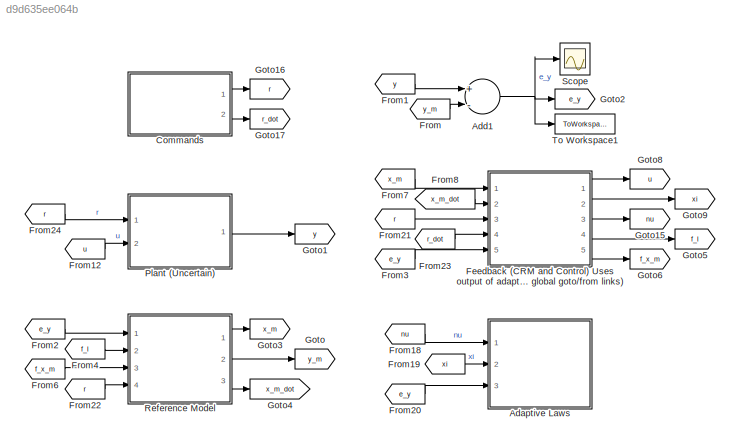
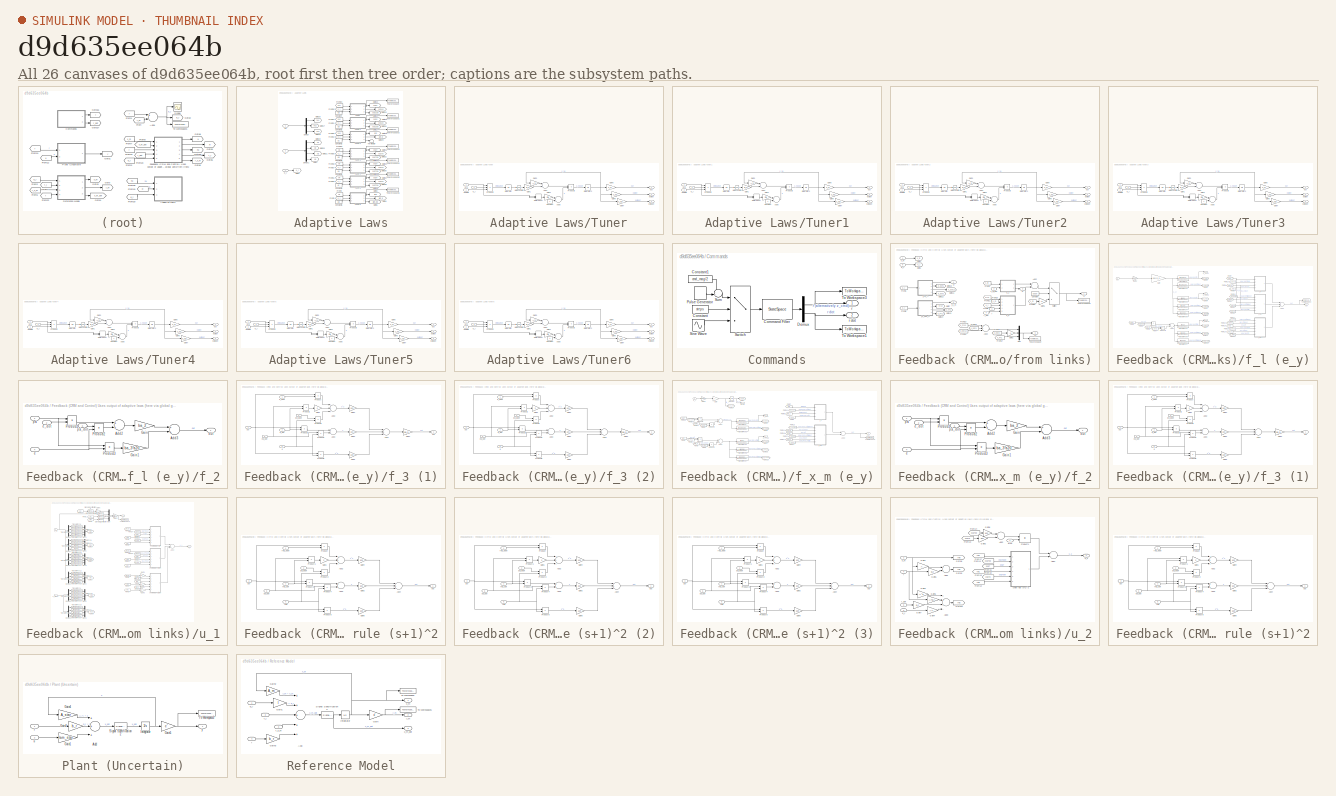
[diagram: thumbnail index - all 26 canvases of the model, root first then tree order]
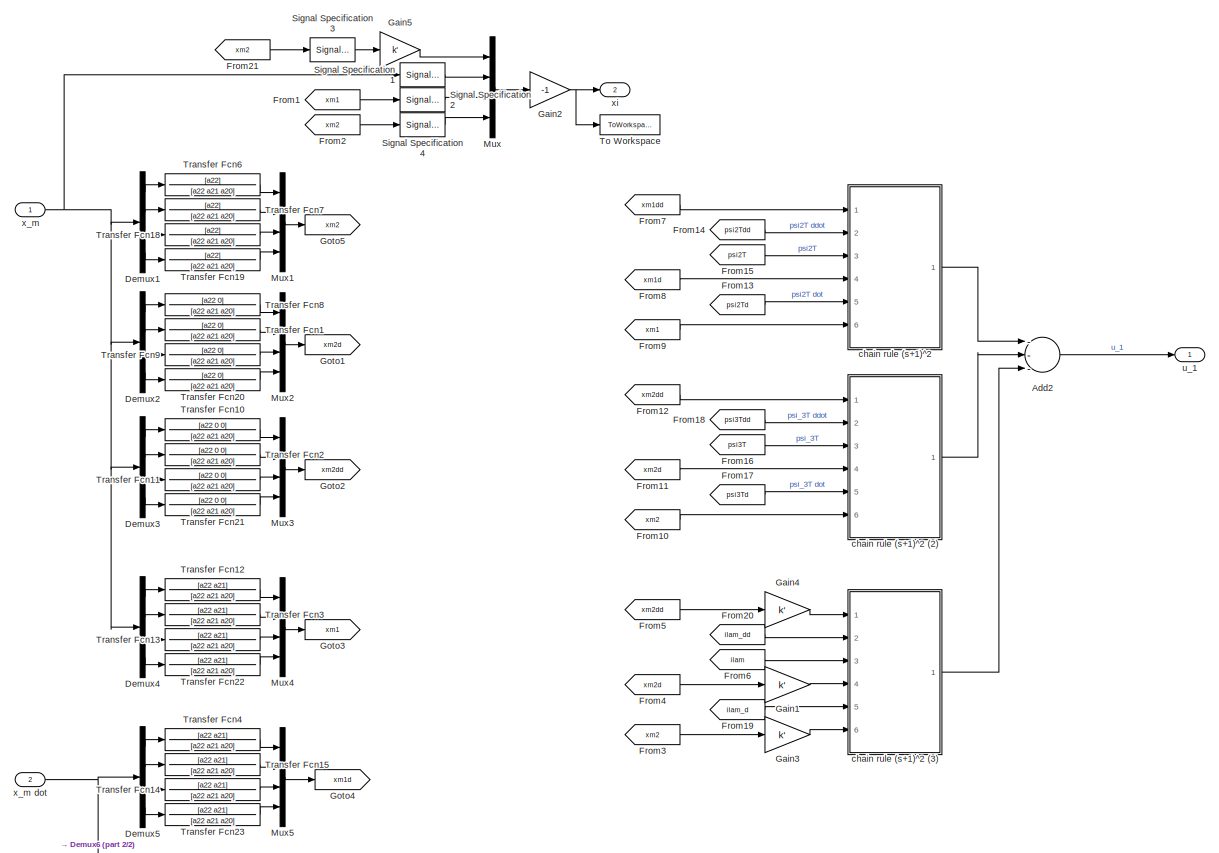
[diagram: Feedback (CRM and Control) Uses output of adaptive laws (here via global goto/from links)/u_1 - part 1/2, most of the canvas]
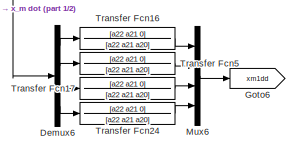
[diagram: Feedback (CRM and Control) Uses output of adaptive laws (here via global goto/from links)/u_1 - part 2/2, bottom left region]
MODEL slx_d9d635ee064b
KIND model
CONFIG AbsTol = auto
CONFIG FixedStep = dT
CONFIG MaxStep = auto
CONFIG MinStep = auto
CONFIG RelTol = 1e-3
CONFIG SampleTimeConstraint = Unconstrained
CONFIG Solver = ode3
CONFIG SolverMode = SingleTasking
CONFIG SolverName = ode3
CONFIG StartTime = 0.0
CONFIG StopTime = tfin
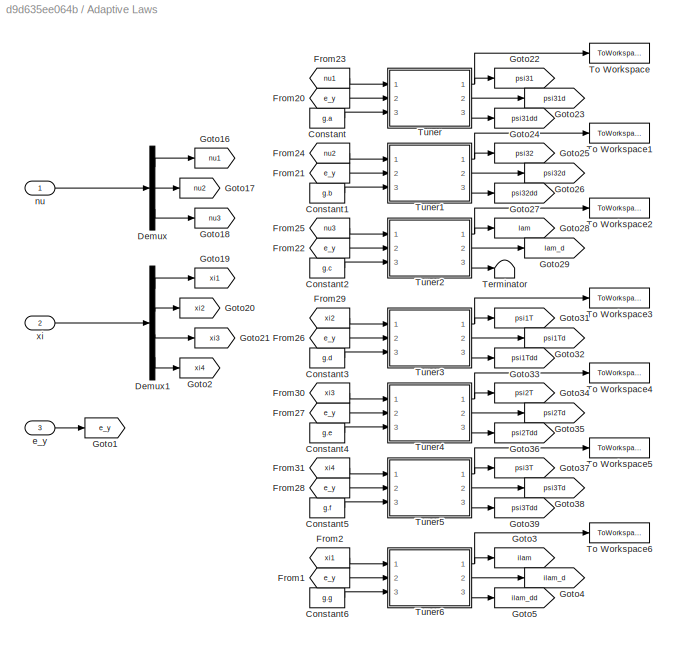
BLOCK [SubSystem] Adaptive Laws
  Ports = [3]
  RequestExecContextInheritance = off
  Variant = off
BLOCK [Constant] Adaptive Laws/Constant
  Value = g.a
BLOCK [Constant] Adaptive Laws/Constant1
  Value = g.b
BLOCK [Constant] Adaptive Laws/Constant2
  Value = g.c
BLOCK [Constant] Adaptive Laws/Constant3
  Value = g.d
BLOCK [Constant] Adaptive Laws/Constant4
  Value = g.e
BLOCK [Constant] Adaptive Laws/Constant5
  Value = g.f
BLOCK [Constant] Adaptive Laws/Constant6
  Value = g.g
BLOCK [Demux] Adaptive Laws/Demux
  DisplayOption = bar
  Outputs = [1 1 1]
  Ports = [1, 3]
BLOCK [Demux] Adaptive Laws/Demux1
  DisplayOption = bar
  Outputs = [1 4 4 4]
  Ports = [1, 4]
BLOCK [From] Adaptive Laws/From1
  GotoTag = e_y
BLOCK [From] Adaptive Laws/From2
  GotoTag = xi1
BLOCK [From] Adaptive Laws/From20
  GotoTag = e_y
BLOCK [From] Adaptive Laws/From21
  GotoTag = e_y
BLOCK [From] Adaptive Laws/From22
  GotoTag = e_y
BLOCK [From] Adaptive Laws/From23
  GotoTag = nu1
BLOCK [From] Adaptive Laws/From24
  GotoTag = nu2
BLOCK [From] Adaptive Laws/From25
  GotoTag = nu3
BLOCK [From] Adaptive Laws/From26
  GotoTag = e_y
BLOCK [From] Adaptive Laws/From27
  GotoTag = e_y
BLOCK [From] Adaptive Laws/From28
  GotoTag = e_y
BLOCK [From] Adaptive Laws/From29
  GotoTag = xi2
BLOCK [From] Adaptive Laws/From30
  GotoTag = xi3
BLOCK [From] Adaptive Laws/From31
  GotoTag = xi4
BLOCK [Goto] Adaptive Laws/Goto1
  GotoTag = e_y
BLOCK [Goto] Adaptive Laws/Goto16
  GotoTag = nu1
BLOCK [Goto] Adaptive Laws/Goto17
  GotoTag = nu2
BLOCK [Goto] Adaptive Laws/Goto18
  GotoTag = nu3
BLOCK [Goto] Adaptive Laws/Goto19
  GotoTag = xi1
BLOCK [Goto] Adaptive Laws/Goto2
  GotoTag = xi4
BLOCK [Goto] Adaptive Laws/Goto20
  GotoTag = xi2
BLOCK [Goto] Adaptive Laws/Goto21
  GotoTag = xi3
BLOCK [Goto] Adaptive Laws/Goto22
  GotoTag = psi31
  TagVisibility = global
BLOCK [Goto] Adaptive Laws/Goto23
  GotoTag = psi31d
  TagVisibility = global
BLOCK [Goto] Adaptive Laws/Goto24
  GotoTag = psi31dd
  TagVisibility = global
BLOCK [Goto] Adaptive Laws/Goto25
  GotoTag = psi32
  TagVisibility = global
BLOCK [Goto] Adaptive Laws/Goto26
  GotoTag = psi32d
  TagVisibility = global
BLOCK [Goto] Adaptive Laws/Goto27
  GotoTag = psi32dd
  TagVisibility = global
BLOCK [Goto] Adaptive Laws/Goto28
  GotoTag = lam
  TagVisibility = global
BLOCK [Goto] Adaptive Laws/Goto29
  GotoTag = lam_d
  TagVisibility = global
BLOCK [Goto] Adaptive Laws/Goto3
  GotoTag = ilam
  TagVisibility = global
BLOCK [Goto] Adaptive Laws/Goto31
  GotoTag = psi1T
  TagVisibility = global
BLOCK [Goto] Adaptive Laws/Goto32
  GotoTag = psi1Td
  TagVisibility = global
BLOCK [Goto] Adaptive Laws/Goto33
  GotoTag = psi1Tdd
  TagVisibility = global
BLOCK [Goto] Adaptive Laws/Goto34
  GotoTag = psi2T
  TagVisibility = global
BLOCK [Goto] Adaptive Laws/Goto35
  GotoTag = psi2Td
  TagVisibility = global
BLOCK [Goto] Adaptive Laws/Goto36
  GotoTag = psi2Tdd
  TagVisibility = global
BLOCK [Goto] Adaptive Laws/Goto37
  GotoTag = psi3T
  TagVisibility = global
BLOCK [Goto] Adaptive Laws/Goto38
  GotoTag = psi3Td
  TagVisibility = global
BLOCK [Goto] Adaptive Laws/Goto39
  GotoTag = psi3Tdd
  TagVisibility = global
BLOCK [Goto] Adaptive Laws/Goto4
  GotoTag = ilam_d
  TagVisibility = global
BLOCK [Goto] Adaptive Laws/Goto5
  GotoTag = ilam_dd
  TagVisibility = global
BLOCK [Terminator] Adaptive Laws/Terminator
BLOCK [ToWorkspace] Adaptive Laws/To Workspace
  FixptAsFi = on
  MaxDataPoints = inf
  Ports = [1]
  SampleTime = -1
  Save2DSignal = 3-D array (concatenate along third dimension)
  VariableName = psi31
BLOCK [ToWorkspace] Adaptive Laws/To Workspace1
  FixptAsFi = on
  MaxDataPoints = inf
  Ports = [1]
  SampleTime = -1
  Save2DSignal = 3-D array (concatenate along third dimension)
  VariableName = psi32
BLOCK [ToWorkspace] Adaptive Laws/To Workspace2
  FixptAsFi = on
  MaxDataPoints = inf
  Ports = [1]
  SampleTime = -1
  Save2DSignal = 3-D array (concatenate along third dimension)
  VariableName = lam
BLOCK [ToWorkspace] Adaptive Laws/To Workspace3
  FixptAsFi = on
  MaxDataPoints = inf
  Ports = [1]
  SampleTime = -1
  Save2DSignal = 3-D array (concatenate along third dimension)
  VariableName = psi1T
BLOCK [ToWorkspace] Adaptive Laws/To Workspace4
  FixptAsFi = on
  MaxDataPoints = inf
  Ports = [1]
  SampleTime = -1
  Save2DSignal = 3-D array (concatenate along third dimension)
  VariableName = psi2T
BLOCK [ToWorkspace] Adaptive Laws/To Workspace5
  FixptAsFi = on
  MaxDataPoints = inf
  Ports = [1]
  SampleTime = -1
  Save2DSignal = 3-D array (concatenate along third dimension)
  VariableName = psi3T
BLOCK [ToWorkspace] Adaptive Laws/To Workspace6
  FixptAsFi = on
  MaxDataPoints = inf
  Ports = [1]
  SampleTime = -1
  Save2DSignal = 3-D array (concatenate along third dimension)
  VariableName = ilam
BLOCK [SubSystem] Adaptive Laws/Tuner
  Ports = [3, 3]
  RequestExecContextInheritance = off
  Variant = off
BLOCK [Sum] Adaptive Laws/Tuner/Add4
  InputSameDT = off
  OutDataTypeStr = Inherit: Inherit via internal rule
  Ports = [2, 1]
  SaturateOnIntegerOverflow = off
BLOCK [Sum] Adaptive Laws/Tuner/Add5
  InputSameDT = off
  OutDataTypeStr = Inherit: Inherit via internal rule
  Ports = [2, 1]
  SaturateOnIntegerOverflow = off
BLOCK [Constant] Adaptive Laws/Tuner/Constant
BLOCK [DotProduct] Adaptive Laws/Tuner/Dot Product
  OutDataTypeStr = Inherit: Inherit via internal rule
BLOCK [Gain] Adaptive Laws/Tuner/Gain1
  Gain = b_h
  Multiplication = Matrix(K*u)
  OutDataTypeStr = Inherit: Inherit via internal rule
  ParamDataTypeStr = Inherit: Inherit via internal rule
  SaturateOnIntegerOverflow = off
BLOCK [Gain] Adaptive Laws/Tuner/Gain3
  Gain = A_h
  Multiplication = Matrix(K*u)
  OutDataTypeStr = Inherit: Inherit via internal rule
  ParamDataTypeStr = Inherit: Inherit via internal rule
  SaturateOnIntegerOverflow = off
BLOCK [Gain] Adaptive Laws/Tuner/Gain4
  Gain = mu
  OutDataTypeStr = Inherit: Inherit via internal rule
  ParamDataTypeStr = Inherit: Inherit via internal rule
  SaturateOnIntegerOverflow = off
BLOCK [Gain] Adaptive Laws/Tuner/Gain5
  Gain = c_h'
  Multiplication = Matrix(K*u)
  OutDataTypeStr = Inherit: Inherit via internal rule
  ParamDataTypeStr = Inherit: Inherit via internal rule
  SaturateOnIntegerOverflow = off
BLOCK [Gain] Adaptive Laws/Tuner/Gain6
  Gain = c_h1'
  Multiplication = Matrix(K*u)
  OutDataTypeStr = Inherit: Inherit via internal rule
  ParamDataTypeStr = Inherit: Inherit via internal rule
  SaturateOnIntegerOverflow = off
BLOCK [Gain] Adaptive Laws/Tuner/Gain7
  Gain = c_h2'
  Multiplication = Matrix(K*u)
  OutDataTypeStr = Inherit: Inherit via internal rule
  ParamDataTypeStr = Inherit: Inherit via internal rule
  SaturateOnIntegerOverflow = off
BLOCK [Integrator] Adaptive Laws/Tuner/Integrator
  Ports = [1, 1]
BLOCK [Integrator] Adaptive Laws/Tuner/Integrator2
  Ports = [1, 1]
BLOCK [Math] Adaptive Laws/Tuner/Math Function
  Operator = transpose
  Ports = [1, 1]
BLOCK [Product] Adaptive Laws/Tuner/Product2
  InputSameDT = off
  Inputs = 3
  OutDataTypeStr = Inherit: Inherit via internal rule
  Ports = [3, 1]
  RndMeth = Floor
  SaturateOnIntegerOverflow = off
BLOCK [Product] Adaptive Laws/Tuner/Product3
  InputSameDT = off
  OutDataTypeStr = Inherit: Inherit via internal rule
  Ports = [2, 1]
  RndMeth = Floor
  SaturateOnIntegerOverflow = off
BLOCK [Inport] Adaptive Laws/Tuner/e_y
  IconDisplay = Port number
  Port = 2
BLOCK [Inport] Adaptive Laws/Tuner/gamma
  IconDisplay = Port number
  Port = 3
BLOCK [Outport] Adaptive Laws/Tuner/out
  IconDisplay = Port number
BLOCK [Outport] Adaptive Laws/Tuner/out ddot
  IconDisplay = Port number
  Port = 3
BLOCK [Outport] Adaptive Laws/Tuner/out dot
  IconDisplay = Port number
  Port = 2
BLOCK [Inport] Adaptive Laws/Tuner/xi_k
  IconDisplay = Port number
BLOCK [SubSystem] Adaptive Laws/Tuner1
  Ports = [3, 3]
  RequestExecContextInheritance = off
  Variant = off
BLOCK [Sum] Adaptive Laws/Tuner1/Add4
  InputSameDT = off
  OutDataTypeStr = Inherit: Inherit via internal rule
  Ports = [2, 1]
  SaturateOnIntegerOverflow = off
BLOCK [Sum] Adaptive Laws/Tuner1/Add5
  InputSameDT = off
  OutDataTypeStr = Inherit: Inherit via internal rule
  Ports = [2, 1]
  SaturateOnIntegerOverflow = off
BLOCK [Constant] Adaptive Laws/Tuner1/Constant
BLOCK [DotProduct] Adaptive Laws/Tuner1/Dot Product
  OutDataTypeStr = Inherit: Inherit via internal rule
BLOCK [Gain] Adaptive Laws/Tuner1/Gain1
  Gain = b_h
  Multiplication = Matrix(K*u)
  OutDataTypeStr = Inherit: Inherit via internal rule
  ParamDataTypeStr = Inherit: Inherit via internal rule
  SaturateOnIntegerOverflow = off
BLOCK [Gain] Adaptive Laws/Tuner1/Gain3
  Gain = A_h
  Multiplication = Matrix(K*u)
  OutDataTypeStr = Inherit: Inherit via internal rule
  ParamDataTypeStr = Inherit: Inherit via internal rule
  SaturateOnIntegerOverflow = off
BLOCK [Gain] Adaptive Laws/Tuner1/Gain4
  Gain = mu
  OutDataTypeStr = Inherit: Inherit via internal rule
  ParamDataTypeStr = Inherit: Inherit via internal rule
  SaturateOnIntegerOverflow = off
BLOCK [Gain] Adaptive Laws/Tuner1/Gain5
  Gain = c_h'
  Multiplication = Matrix(K*u)
  OutDataTypeStr = Inherit: Inherit via internal rule
  ParamDataTypeStr = Inherit: Inherit via internal rule
  SaturateOnIntegerOverflow = off
BLOCK [Gain] Adaptive Laws/Tuner1/Gain6
  Gain = c_h1'
  Multiplication = Matrix(K*u)
  OutDataTypeStr = Inherit: Inherit via internal rule
  ParamDataTypeStr = Inherit: Inherit via internal rule
  SaturateOnIntegerOverflow = off
BLOCK [Gain] Adaptive Laws/Tuner1/Gain7
  Gain = c_h2'
  Multiplication = Matrix(K*u)
  OutDataTypeStr = Inherit: Inherit via internal rule
  ParamDataTypeStr = Inherit: Inherit via internal rule
  SaturateOnIntegerOverflow = off
BLOCK [Integrator] Adaptive Laws/Tuner1/Integrator
  Ports = [1, 1]
BLOCK [Integrator] Adaptive Laws/Tuner1/Integrator2
  Ports = [1, 1]
BLOCK [Math] Adaptive Laws/Tuner1/Math Function
  Operator = transpose
  Ports = [1, 1]
BLOCK [Product] Adaptive Laws/Tuner1/Product2
  InputSameDT = off
  Inputs = 3
  OutDataTypeStr = Inherit: Inherit via internal rule
  Ports = [3, 1]
  RndMeth = Floor
  SaturateOnIntegerOverflow = off
BLOCK [Product] Adaptive Laws/Tuner1/Product3
  InputSameDT = off
  OutDataTypeStr = Inherit: Inherit via internal rule
  Ports = [2, 1]
  RndMeth = Floor
  SaturateOnIntegerOverflow = off
BLOCK [Inport] Adaptive Laws/Tuner1/e_y
  IconDisplay = Port number
  Port = 2
BLOCK [Inport] Adaptive Laws/Tuner1/gamma
  IconDisplay = Port number
  Port = 3
BLOCK [Outport] Adaptive Laws/Tuner1/out
  IconDisplay = Port number
BLOCK [Outport] Adaptive Laws/Tuner1/out ddot
  IconDisplay = Port number
  Port = 3
BLOCK [Outport] Adaptive Laws/Tuner1/out dot
  IconDisplay = Port number
  Port = 2
BLOCK [Inport] Adaptive Laws/Tuner1/xi_k
  IconDisplay = Port number
BLOCK [SubSystem] Adaptive Laws/Tuner2
  Ports = [3, 3]
  RequestExecContextInheritance = off
  Variant = off
BLOCK [Sum] Adaptive Laws/Tuner2/Add4
  InputSameDT = off
  OutDataTypeStr = Inherit: Inherit via internal rule
  Ports = [2, 1]
  SaturateOnIntegerOverflow = off
BLOCK [Sum] Adaptive Laws/Tuner2/Add5
  InputSameDT = off
  OutDataTypeStr = Inherit: Inherit via internal rule
  Ports = [2, 1]
  SaturateOnIntegerOverflow = off
BLOCK [Constant] Adaptive Laws/Tuner2/Constant
BLOCK [DotProduct] Adaptive Laws/Tuner2/Dot Product
  OutDataTypeStr = Inherit: Inherit via internal rule
BLOCK [Gain] Adaptive Laws/Tuner2/Gain1
  Gain = b_h
  Multiplication = Matrix(K*u)
  OutDataTypeStr = Inherit: Inherit via internal rule
  ParamDataTypeStr = Inherit: Inherit via internal rule
  SaturateOnIntegerOverflow = off
BLOCK [Gain] Adaptive Laws/Tuner2/Gain3
  Gain = A_h
  Multiplication = Matrix(K*u)
  OutDataTypeStr = Inherit: Inherit via internal rule
  ParamDataTypeStr = Inherit: Inherit via internal rule
  SaturateOnIntegerOverflow = off
BLOCK [Gain] Adaptive Laws/Tuner2/Gain4
  Gain = mu
  OutDataTypeStr = Inherit: Inherit via internal rule
  ParamDataTypeStr = Inherit: Inherit via internal rule
  SaturateOnIntegerOverflow = off
BLOCK [Gain] Adaptive Laws/Tuner2/Gain5
  Gain = c_h'
  Multiplication = Matrix(K*u)
  OutDataTypeStr = Inherit: Inherit via internal rule
  ParamDataTypeStr = Inherit: Inherit via internal rule
  SaturateOnIntegerOverflow = off
BLOCK [Gain] Adaptive Laws/Tuner2/Gain6
  Gain = c_h1'
  Multiplication = Matrix(K*u)
  OutDataTypeStr = Inherit: Inherit via internal rule
  ParamDataTypeStr = Inherit: Inherit via internal rule
  SaturateOnIntegerOverflow = off
BLOCK [Gain] Adaptive Laws/Tuner2/Gain7
  Gain = c_h2'
  Multiplication = Matrix(K*u)
  OutDataTypeStr = Inherit: Inherit via internal rule
  ParamDataTypeStr = Inherit: Inherit via internal rule
  SaturateOnIntegerOverflow = off
BLOCK [Integrator] Adaptive Laws/Tuner2/Integrator
  Ports = [1, 1]
BLOCK [Integrator] Adaptive Laws/Tuner2/Integrator2
  InitialCondition = [1; 0]
  Ports = [1, 1]
BLOCK [Math] Adaptive Laws/Tuner2/Math Function
  Operator = transpose
  Ports = [1, 1]
BLOCK [Product] Adaptive Laws/Tuner2/Product2
  InputSameDT = off
  Inputs = 3
  OutDataTypeStr = Inherit: Inherit via internal rule
  Ports = [3, 1]
  RndMeth = Floor
  SaturateOnIntegerOverflow = off
BLOCK [Product] Adaptive Laws/Tuner2/Product3
  InputSameDT = off
  OutDataTypeStr = Inherit: Inherit via internal rule
  Ports = [2, 1]
  RndMeth = Floor
  SaturateOnIntegerOverflow = off
BLOCK [Inport] Adaptive Laws/Tuner2/e_y
  IconDisplay = Port number
  Port = 2
BLOCK [Inport] Adaptive Laws/Tuner2/gamma
  IconDisplay = Port number
  Port = 3
BLOCK [Outport] Adaptive Laws/Tuner2/out
  IconDisplay = Port number
BLOCK [Outport] Adaptive Laws/Tuner2/out ddot
  IconDisplay = Port number
  Port = 3
BLOCK [Outport] Adaptive Laws/Tuner2/out dot
  IconDisplay = Port number
  Port = 2
BLOCK [Inport] Adaptive Laws/Tuner2/xi_k
  IconDisplay = Port number
BLOCK [SubSystem] Adaptive Laws/Tuner3
  Ports = [3, 3]
  RequestExecContextInheritance = off
  Variant = off
BLOCK [Sum] Adaptive Laws/Tuner3/Add4
  InputSameDT = off
  OutDataTypeStr = Inherit: Inherit via internal rule
  Ports = [2, 1]
  SaturateOnIntegerOverflow = off
BLOCK [Sum] Adaptive Laws/Tuner3/Add5
  InputSameDT = off
  OutDataTypeStr = Inherit: Inherit via internal rule
  Ports = [2, 1]
  SaturateOnIntegerOverflow = off
BLOCK [Constant] Adaptive Laws/Tuner3/Constant
BLOCK [DotProduct] Adaptive Laws/Tuner3/Dot Product
  OutDataTypeStr = Inherit: Inherit via internal rule
BLOCK [Gain] Adaptive Laws/Tuner3/Gain1
  Gain = b_h
  Multiplication = Matrix(K*u)
  OutDataTypeStr = Inherit: Inherit via internal rule
  ParamDataTypeStr = Inherit: Inherit via internal rule
  SaturateOnIntegerOverflow = off
BLOCK [Gain] Adaptive Laws/Tuner3/Gain3
  Gain = A_h
  Multiplication = Matrix(K*u)
  OutDataTypeStr = Inherit: Inherit via internal rule
  ParamDataTypeStr = Inherit: Inherit via internal rule
  SaturateOnIntegerOverflow = off
BLOCK [Gain] Adaptive Laws/Tuner3/Gain4
  Gain = mu
  OutDataTypeStr = Inherit: Inherit via internal rule
  ParamDataTypeStr = Inherit: Inherit via internal rule
  SaturateOnIntegerOverflow = off
BLOCK [Gain] Adaptive Laws/Tuner3/Gain5
  Gain = c_h'
  Multiplication = Matrix(K*u)
  OutDataTypeStr = Inherit: Inherit via internal rule
  ParamDataTypeStr = Inherit: Inherit via internal rule
  SaturateOnIntegerOverflow = off
BLOCK [Gain] Adaptive Laws/Tuner3/Gain6
  Gain = c_h1'
  Multiplication = Matrix(K*u)
  OutDataTypeStr = Inherit: Inherit via internal rule
  ParamDataTypeStr = Inherit: Inherit via internal rule
  SaturateOnIntegerOverflow = off
BLOCK [Gain] Adaptive Laws/Tuner3/Gain7
  Gain = c_h2'
  Multiplication = Matrix(K*u)
  OutDataTypeStr = Inherit: Inherit via internal rule
  ParamDataTypeStr = Inherit: Inherit via internal rule
  SaturateOnIntegerOverflow = off
BLOCK [Integrator] Adaptive Laws/Tuner3/Integrator
  Ports = [1, 1]
BLOCK [Integrator] Adaptive Laws/Tuner3/Integrator2
  Ports = [1, 1]
BLOCK [Math] Adaptive Laws/Tuner3/Math Function
  Operator = transpose
  Ports = [1, 1]
BLOCK [Product] Adaptive Laws/Tuner3/Product2
  InputSameDT = off
  Inputs = 3
  OutDataTypeStr = Inherit: Inherit via internal rule
  Ports = [3, 1]
  RndMeth = Floor
  SaturateOnIntegerOverflow = off
BLOCK [Product] Adaptive Laws/Tuner3/Product3
  InputSameDT = off
  OutDataTypeStr = Inherit: Inherit via internal rule
  Ports = [2, 1]
  RndMeth = Floor
  SaturateOnIntegerOverflow = off
BLOCK [Inport] Adaptive Laws/Tuner3/e_y
  IconDisplay = Port number
  Port = 2
BLOCK [Inport] Adaptive Laws/Tuner3/gamma
  IconDisplay = Port number
  Port = 3
BLOCK [Outport] Adaptive Laws/Tuner3/out
  IconDisplay = Port number
BLOCK [Outport] Adaptive Laws/Tuner3/out ddot
  IconDisplay = Port number
  Port = 3
BLOCK [Outport] Adaptive Laws/Tuner3/out dot
  IconDisplay = Port number
  Port = 2
BLOCK [Inport] Adaptive Laws/Tuner3/xi_k
  IconDisplay = Port number
BLOCK [SubSystem] Adaptive Laws/Tuner4
  Ports = [3, 3]
  RequestExecContextInheritance = off
  Variant = off
BLOCK [Sum] Adaptive Laws/Tuner4/Add4
  InputSameDT = off
  OutDataTypeStr = Inherit: Inherit via internal rule
  Ports = [2, 1]
  SaturateOnIntegerOverflow = off
BLOCK [Sum] Adaptive Laws/Tuner4/Add5
  InputSameDT = off
  OutDataTypeStr = Inherit: Inherit via internal rule
  Ports = [2, 1]
  SaturateOnIntegerOverflow = off
BLOCK [Constant] Adaptive Laws/Tuner4/Constant
BLOCK [DotProduct] Adaptive Laws/Tuner4/Dot Product
  OutDataTypeStr = Inherit: Inherit via internal rule
BLOCK [Gain] Adaptive Laws/Tuner4/Gain1
  Gain = b_h
  Multiplication = Matrix(K*u)
  OutDataTypeStr = Inherit: Inherit via internal rule
  ParamDataTypeStr = Inherit: Inherit via internal rule
  SaturateOnIntegerOverflow = off
BLOCK [Gain] Adaptive Laws/Tuner4/Gain3
  Gain = A_h
  Multiplication = Matrix(K*u)
  OutDataTypeStr = Inherit: Inherit via internal rule
  ParamDataTypeStr = Inherit: Inherit via internal rule
  SaturateOnIntegerOverflow = off
BLOCK [Gain] Adaptive Laws/Tuner4/Gain4
  Gain = mu
  OutDataTypeStr = Inherit: Inherit via internal rule
  ParamDataTypeStr = Inherit: Inherit via internal rule
  SaturateOnIntegerOverflow = off
BLOCK [Gain] Adaptive Laws/Tuner4/Gain5
  Gain = c_h'
  Multiplication = Matrix(K*u)
  OutDataTypeStr = Inherit: Inherit via internal rule
  ParamDataTypeStr = Inherit: Inherit via internal rule
  SaturateOnIntegerOverflow = off
BLOCK [Gain] Adaptive Laws/Tuner4/Gain6
  Gain = c_h1'
  Multiplication = Matrix(K*u)
  OutDataTypeStr = Inherit: Inherit via internal rule
  ParamDataTypeStr = Inherit: Inherit via internal rule
  SaturateOnIntegerOverflow = off
BLOCK [Gain] Adaptive Laws/Tuner4/Gain7
  Gain = c_h2'
  Multiplication = Matrix(K*u)
  OutDataTypeStr = Inherit: Inherit via internal rule
  ParamDataTypeStr = Inherit: Inherit via internal rule
  SaturateOnIntegerOverflow = off
BLOCK [Integrator] Adaptive Laws/Tuner4/Integrator
  Ports = [1, 1]
BLOCK [Integrator] Adaptive Laws/Tuner4/Integrator2
  Ports = [1, 1]
BLOCK [Math] Adaptive Laws/Tuner4/Math Function
  Operator = transpose
  Ports = [1, 1]
BLOCK [Product] Adaptive Laws/Tuner4/Product2
  InputSameDT = off
  Inputs = 3
  OutDataTypeStr = Inherit: Inherit via internal rule
  Ports = [3, 1]
  RndMeth = Floor
  SaturateOnIntegerOverflow = off
BLOCK [Product] Adaptive Laws/Tuner4/Product3
  InputSameDT = off
  OutDataTypeStr = Inherit: Inherit via internal rule
  Ports = [2, 1]
  RndMeth = Floor
  SaturateOnIntegerOverflow = off
BLOCK [Inport] Adaptive Laws/Tuner4/e_y
  IconDisplay = Port number
  Port = 2
BLOCK [Inport] Adaptive Laws/Tuner4/gamma
  IconDisplay = Port number
  Port = 3
BLOCK [Outport] Adaptive Laws/Tuner4/out
  IconDisplay = Port number
BLOCK [Outport] Adaptive Laws/Tuner4/out ddot
  IconDisplay = Port number
  Port = 3
BLOCK [Outport] Adaptive Laws/Tuner4/out dot
  IconDisplay = Port number
  Port = 2
BLOCK [Inport] Adaptive Laws/Tuner4/xi_k
  IconDisplay = Port number
BLOCK [SubSystem] Adaptive Laws/Tuner5
  Ports = [3, 3]
  RequestExecContextInheritance = off
  Variant = off
BLOCK [Sum] Adaptive Laws/Tuner5/Add4
  InputSameDT = off
  OutDataTypeStr = Inherit: Inherit via internal rule
  Ports = [2, 1]
  SaturateOnIntegerOverflow = off
BLOCK [Sum] Adaptive Laws/Tuner5/Add5
  InputSameDT = off
  OutDataTypeStr = Inherit: Inherit via internal rule
  Ports = [2, 1]
  SaturateOnIntegerOverflow = off
BLOCK [Constant] Adaptive Laws/Tuner5/Constant
BLOCK [DotProduct] Adaptive Laws/Tuner5/Dot Product
  OutDataTypeStr = Inherit: Inherit via internal rule
BLOCK [Gain] Adaptive Laws/Tuner5/Gain1
  Gain = b_h
  Multiplication = Matrix(K*u)
  OutDataTypeStr = Inherit: Inherit via internal rule
  ParamDataTypeStr = Inherit: Inherit via internal rule
  SaturateOnIntegerOverflow = off
BLOCK [Gain] Adaptive Laws/Tuner5/Gain3
  Gain = A_h
  Multiplication = Matrix(K*u)
  OutDataTypeStr = Inherit: Inherit via internal rule
  ParamDataTypeStr = Inherit: Inherit via internal rule
  SaturateOnIntegerOverflow = off
BLOCK [Gain] Adaptive Laws/Tuner5/Gain4
  Gain = mu
  OutDataTypeStr = Inherit: Inherit via internal rule
  ParamDataTypeStr = Inherit: Inherit via internal rule
  SaturateOnIntegerOverflow = off
BLOCK [Gain] Adaptive Laws/Tuner5/Gain5
  Gain = c_h'
  Multiplication = Matrix(K*u)
  OutDataTypeStr = Inherit: Inherit via internal rule
  ParamDataTypeStr = Inherit: Inherit via internal rule
  SaturateOnIntegerOverflow = off
BLOCK [Gain] Adaptive Laws/Tuner5/Gain6
  Gain = c_h1'
  Multiplication = Matrix(K*u)
  OutDataTypeStr = Inherit: Inherit via internal rule
  ParamDataTypeStr = Inherit: Inherit via internal rule
  SaturateOnIntegerOverflow = off
BLOCK [Gain] Adaptive Laws/Tuner5/Gain7
  Gain = c_h2'
  Multiplication = Matrix(K*u)
  OutDataTypeStr = Inherit: Inherit via internal rule
  ParamDataTypeStr = Inherit: Inherit via internal rule
  SaturateOnIntegerOverflow = off
BLOCK [Integrator] Adaptive Laws/Tuner5/Integrator
  Ports = [1, 1]
BLOCK [Integrator] Adaptive Laws/Tuner5/Integrator2
  Ports = [1, 1]
BLOCK [Math] Adaptive Laws/Tuner5/Math Function
  Operator = transpose
  Ports = [1, 1]
BLOCK [Product] Adaptive Laws/Tuner5/Product2
  InputSameDT = off
  Inputs = 3
  OutDataTypeStr = Inherit: Inherit via internal rule
  Ports = [3, 1]
  RndMeth = Floor
  SaturateOnIntegerOverflow = off
BLOCK [Product] Adaptive Laws/Tuner5/Product3
  InputSameDT = off
  OutDataTypeStr = Inherit: Inherit via internal rule
  Ports = [2, 1]
  RndMeth = Floor
  SaturateOnIntegerOverflow = off
BLOCK [Inport] Adaptive Laws/Tuner5/e_y
  IconDisplay = Port number
  Port = 2
BLOCK [Inport] Adaptive Laws/Tuner5/gamma
  IconDisplay = Port number
  Port = 3
BLOCK [Outport] Adaptive Laws/Tuner5/out
  IconDisplay = Port number
BLOCK [Outport] Adaptive Laws/Tuner5/out ddot
  IconDisplay = Port number
  Port = 3
BLOCK [Outport] Adaptive Laws/Tuner5/out dot
  IconDisplay = Port number
  Port = 2
BLOCK [Inport] Adaptive Laws/Tuner5/xi_k
  IconDisplay = Port number
BLOCK [SubSystem] Adaptive Laws/Tuner6
  Ports = [3, 3]
  RequestExecContextInheritance = off
  Variant = off
BLOCK [Sum] Adaptive Laws/Tuner6/Add4
  InputSameDT = off
  OutDataTypeStr = Inherit: Inherit via internal rule
  Ports = [2, 1]
  SaturateOnIntegerOverflow = off
BLOCK [Sum] Adaptive Laws/Tuner6/Add5
  InputSameDT = off
  OutDataTypeStr = Inherit: Inherit via internal rule
  Ports = [2, 1]
  SaturateOnIntegerOverflow = off
BLOCK [Constant] Adaptive Laws/Tuner6/Constant
BLOCK [DotProduct] Adaptive Laws/Tuner6/Dot Product
  OutDataTypeStr = Inherit: Inherit via internal rule
BLOCK [Gain] Adaptive Laws/Tuner6/Gain1
  Gain = b_h
  Multiplication = Matrix(K*u)
  OutDataTypeStr = Inherit: Inherit via internal rule
  ParamDataTypeStr = Inherit: Inherit via internal rule
  SaturateOnIntegerOverflow = off
BLOCK [Gain] Adaptive Laws/Tuner6/Gain3
  Gain = A_h
  Multiplication = Matrix(K*u)
  OutDataTypeStr = Inherit: Inherit via internal rule
  ParamDataTypeStr = Inherit: Inherit via internal rule
  SaturateOnIntegerOverflow = off
BLOCK [Gain] Adaptive Laws/Tuner6/Gain4
  Gain = mu
  OutDataTypeStr = Inherit: Inherit via internal rule
  ParamDataTypeStr = Inherit: Inherit via internal rule
  SaturateOnIntegerOverflow = off
BLOCK [Gain] Adaptive Laws/Tuner6/Gain5
  Gain = c_h'
  Multiplication = Matrix(K*u)
  OutDataTypeStr = Inherit: Inherit via internal rule
  ParamDataTypeStr = Inherit: Inherit via internal rule
  SaturateOnIntegerOverflow = off
BLOCK [Gain] Adaptive Laws/Tuner6/Gain6
  Gain = c_h1'
  Multiplication = Matrix(K*u)
  OutDataTypeStr = Inherit: Inherit via internal rule
  ParamDataTypeStr = Inherit: Inherit via internal rule
  SaturateOnIntegerOverflow = off
BLOCK [Gain] Adaptive Laws/Tuner6/Gain7
  Gain = c_h2'
  Multiplication = Matrix(K*u)
  OutDataTypeStr = Inherit: Inherit via internal rule
  ParamDataTypeStr = Inherit: Inherit via internal rule
  SaturateOnIntegerOverflow = off
BLOCK [Integrator] Adaptive Laws/Tuner6/Integrator
  Ports = [1, 1]
BLOCK [Integrator] Adaptive Laws/Tuner6/Integrator2
  InitialCondition = [1; 0]
  Ports = [1, 1]
BLOCK [Math] Adaptive Laws/Tuner6/Math Function
  Operator = transpose
  Ports = [1, 1]
BLOCK [Product] Adaptive Laws/Tuner6/Product2
  InputSameDT = off
  Inputs = 3
  OutDataTypeStr = Inherit: Inherit via internal rule
  Ports = [3, 1]
  RndMeth = Floor
  SaturateOnIntegerOverflow = off
BLOCK [Product] Adaptive Laws/Tuner6/Product3
  InputSameDT = off
  OutDataTypeStr = Inherit: Inherit via internal rule
  Ports = [2, 1]
  RndMeth = Floor
  SaturateOnIntegerOverflow = off
BLOCK [Inport] Adaptive Laws/Tuner6/e_y
  IconDisplay = Port number
  Port = 2
BLOCK [Inport] Adaptive Laws/Tuner6/gamma
  IconDisplay = Port number
  Port = 3
BLOCK [Outport] Adaptive Laws/Tuner6/out
  IconDisplay = Port number
BLOCK [Outport] Adaptive Laws/Tuner6/out ddot
  IconDisplay = Port number
  Port = 3
BLOCK [Outport] Adaptive Laws/Tuner6/out dot
  IconDisplay = Port number
  Port = 2
BLOCK [Inport] Adaptive Laws/Tuner6/xi_k
  IconDisplay = Port number
BLOCK [Inport] Adaptive Laws/e_y
  IconDisplay = Port number
  Port = 3
BLOCK [Inport] Adaptive Laws/nu
  IconDisplay = Port number
BLOCK [Inport] Adaptive Laws/xi
  IconDisplay = Port number
  Port = 2
BLOCK [Sum] Add1
  InputSameDT = off
  Inputs = +-
  OutDataTypeStr = Inherit: Inherit via internal rule
  Ports = [2, 1]
  SaturateOnIntegerOverflow = off
BLOCK [SubSystem] Commands
  Ports = [0, 2]
  RequestExecContextInheritance = off
  Variant = off
BLOCK [StateSpace] Commands/Command Filter
  A = A_cmd
  B = B_cmd
  C = C_cmd
  D = [0; 0]
  Ports = [1, 1]
  X0 = 0
BLOCK [Constant] Commands/Constant
  Value = steps
BLOCK [Constant] Commands/Constant1
  Value = cmd_mag/2
BLOCK [Demux] Commands/Demux
  DisplayOption = bar
  Outputs = [1 1]
  Ports = [1, 2]
BLOCK [DiscretePulseGenerator] Commands/Pulse Generator
  Amplitude = cmd_mag
  Period = 2*step_time
  Ports = [0, 1]
  PulseType = Time based
  PulseWidth = 50
BLOCK [Sin] Commands/Sine Wave
  Amplitude = cmd_mag
  Frequency = sine_freq
  Ports = [0, 1]
  SampleTime = 0
BLOCK [Sum] Commands/Sum
  IconShape = round
  InputSameDT = off
  Inputs = -+|
  OutDataTypeStr = Inherit: Inherit via internal rule
  Ports = [2, 1]
  SaturateOnIntegerOverflow = off
BLOCK [Switch] Commands/Switch
  Criteria = u2 ~= 0
  InputSameDT = off
  SaturateOnIntegerOverflow = off
BLOCK [ToWorkspace] Commands/To Workspace1
  FixptAsFi = on
  MaxDataPoints = inf
  Ports = [1]
  SampleTime = -1
  Save2DSignal = 3-D array (concatenate along third dimension)
  VariableName = r_dot
BLOCK [ToWorkspace] Commands/To Workspace3
  FixptAsFi = on
  MaxDataPoints = inf
  Ports = [1]
  SampleTime = -1
  Save2DSignal = 3-D array (concatenate along third dimension)
  VariableName = r
BLOCK [Outport] Commands/r
  IconDisplay = Port number
BLOCK [Outport] Commands/r dot
  IconDisplay = Port number
  Port = 2
BLOCK [SubSystem] Feedback (CRM and Control) Uses output of adaptive laws (here via global goto//from links)
  Ports = [5, 5]
  RequestExecContextInheritance = off
  Variant = off
BLOCK [Sum] Feedback (CRM and Control) Uses output of adaptive laws (here via global goto//from links)/Add2
  InputSameDT = off
  OutDataTypeStr = Inherit: Inherit via internal rule
  Ports = [2, 1]
  SaturateOnIntegerOverflow = off
BLOCK [Sum] Feedback (CRM and Control) Uses output of adaptive laws (here via global goto//from links)/Add3
  InputSameDT = off
  Inputs = +--
  OutDataTypeStr = Inherit: Inherit via internal rule
  Ports = [3, 1]
  SaturateOnIntegerOverflow = off
BLOCK [Constant] Feedback (CRM and Control) Uses output of adaptive laws (here via global goto//from links)/Constant
  Value = adapt
BLOCK [From] Feedback (CRM and Control) Uses output of adaptive laws (here via global goto//from links)/From1
  GotoTag = e_y
BLOCK [From] Feedback (CRM and Control) Uses output of adaptive laws (here via global goto//from links)/From10
  GotoTag = x_m
BLOCK [From] Feedback (CRM and Control) Uses output of adaptive laws (here via global goto//from links)/From11
  GotoTag = ey10
BLOCK [From] Feedback (CRM and Control) Uses output of adaptive laws (here via global goto//from links)/From13
  GotoTag = e_PY12
BLOCK [From] Feedback (CRM and Control) Uses output of adaptive laws (here via global goto//from links)/From14
  GotoTag = e_psiy1
BLOCK [From] Feedback (CRM and Control) Uses output of adaptive laws (here via global goto//from links)/From15
  GotoTag = e_psiy12
BLOCK [From] Feedback (CRM and Control) Uses output of adaptive laws (here via global goto//from links)/From16
  GotoTag = e_psiy2
BLOCK [From] Feedback (CRM and Control) Uses output of adaptive laws (here via global goto//from links)/From17
  GotoTag = e_PY1
BLOCK [From] Feedback (CRM and Control) Uses output of adaptive laws (here via global goto//from links)/From2
  GotoTag = x_m
BLOCK [From] Feedback (CRM and Control) Uses output of adaptive laws (here via global goto//from links)/From25
  GotoTag = x_m
BLOCK [From] Feedback (CRM and Control) Uses output of adaptive laws (here via global goto//from links)/From5
  GotoTag = e_y
BLOCK [From] Feedback (CRM and Control) Uses output of adaptive laws (here via global goto//from links)/From9
  GotoTag = e_y
BLOCK [Gain] Feedback (CRM and Control) Uses output of adaptive laws (here via global goto//from links)/Gain2
  Gain = -1
  OutDataTypeStr = Inherit: Inherit via internal rule
  ParamDataTypeStr = Inherit: Inherit via internal rule
  SaturateOnIntegerOverflow = off
BLOCK [Gain] Feedback (CRM and Control) Uses output of adaptive laws (here via global goto//from links)/Gain5
  Gain = -k'
  Multiplication = Matrix(K*u)
  OutDataTypeStr = Inherit: Inherit via internal rule
  ParamDataTypeStr = Inherit: Inherit via internal rule
  SaturateOnIntegerOverflow = off
BLOCK [Goto] Feedback (CRM and Control) Uses output of adaptive laws (here via global goto//from links)/Goto1
  GotoTag = e_y
BLOCK [Goto] Feedback (CRM and Control) Uses output of adaptive laws (here via global goto//from links)/Goto10
  GotoTag = e_psiy1
BLOCK [Goto] Feedback (CRM and Control) Uses output of adaptive laws (here via global goto//from links)/Goto11
  GotoTag = e_psiy12
BLOCK [Goto] Feedback (CRM and Control) Uses output of adaptive laws (here via global goto//from links)/Goto12
  GotoTag = e_psiy2
BLOCK [Goto] Feedback (CRM and Control) Uses output of adaptive laws (here via global goto//from links)/Goto13
  GotoTag = e_PY1
BLOCK [Goto] Feedback (CRM and Control) Uses output of adaptive laws (here via global goto//from links)/Goto14
  GotoTag = e_PY12
BLOCK [Goto] Feedback (CRM and Control) Uses output of adaptive laws (here via global goto//from links)/Goto2
  GotoTag = x_m
BLOCK [Goto] Feedback (CRM and Control) Uses output of adaptive laws (here via global goto//from links)/Goto7
  GotoTag = ey10
BLOCK [Mux] Feedback (CRM and Control) Uses output of adaptive laws (here via global goto//from links)/Mux
  DisplayOption = bar
  Inputs = [1 1 1]
  Ports = [3, 1]
BLOCK [Switch] Feedback (CRM and Control) Uses output of adaptive laws (here via global goto//from links)/Switch
  Criteria = u2 ~= 0
  InputSameDT = off
  SaturateOnIntegerOverflow = off
BLOCK [ToWorkspace] Feedback (CRM and Control) Uses output of adaptive laws (here via global goto//from links)/To Workspace
  FixptAsFi = on
  MaxDataPoints = inf
  Ports = [1]
  SampleTime = -1
  Save2DSignal = 3-D array (concatenate along third dimension)
  VariableName = nu
BLOCK [ToWorkspace] Feedback (CRM and Control) Uses output of adaptive laws (here via global goto//from links)/To Workspace2
  FixptAsFi = on
  MaxDataPoints = inf
  Ports = [1]
  SampleTime = -1
  Save2DSignal = 3-D array (concatenate along third dimension)
  VariableName = u
BLOCK [Inport] Feedback (CRM and Control) Uses output of adaptive laws (here via global goto//from links)/e_y
  IconDisplay = Port number
  Port = 5
BLOCK [Outport] Feedback (CRM and Control) Uses output of adaptive laws (here via global goto//from links)/f_l
  IconDisplay = Port number
  Port = 4
BLOCK [SubSystem] Feedback (CRM and Control) Uses output of adaptive laws (here via global goto//from links)/f_l (e_y)
  Ports = [1, 4]
  RequestExecContextInheritance = off
  Variant = off
BLOCK [Sum] Feedback (CRM and Control) Uses output of adaptive laws (here via global goto//from links)/f_l (e_y)/Add2
  InputSameDT = off
  OutDataTypeStr = Inherit: Inherit via internal rule
  Ports = [2, 1]
  SaturateOnIntegerOverflow = off
BLOCK [Sum] Feedback (CRM and Control) Uses output of adaptive laws (here via global goto//from links)/f_l (e_y)/Add3
  InputSameDT = off
  Inputs = +++
  OutDataTypeStr = Inherit: Inherit via internal rule
  Ports = [3, 1]
  SaturateOnIntegerOverflow = off
BLOCK [From] Feedback (CRM and Control) Uses output of adaptive laws (here via global goto//from links)/f_l (e_y)/From10
  GotoTag = e_psiy1d
BLOCK [From] Feedback (CRM and Control) Uses output of adaptive laws (here via global goto//from links)/f_l (e_y)/From11
  GotoTag = e_psiy12
BLOCK [From] Feedback (CRM and Control) Uses output of adaptive laws (here via global goto//from links)/f_l (e_y)/From12
  GotoTag = e_psiy12d
BLOCK [From] Feedback (CRM and Control) Uses output of adaptive laws (here via global goto//from links)/f_l (e_y)/From13
  GotoTag = e_psiy12dd
BLOCK [From] Feedback (CRM and Control) Uses output of adaptive laws (here via global goto//from links)/f_l (e_y)/From14
  GotoTag = psi31dd
  TagVisibility = global
BLOCK [From] Feedback (CRM and Control) Uses output of adaptive laws (here via global goto//from links)/f_l (e_y)/From15
  GotoTag = e_psiy2
BLOCK [From] Feedback (CRM and Control) Uses output of adaptive laws (here via global goto//from links)/f_l (e_y)/From16
  GotoTag = e_psiy2d
BLOCK [From] Feedback (CRM and Control) Uses output of adaptive laws (here via global goto//from links)/f_l (e_y)/From17
  GotoTag = e_psiy2dd
BLOCK [From] Feedback (CRM and Control) Uses output of adaptive laws (here via global goto//from links)/f_l (e_y)/From18
  GotoTag = psi32
  TagVisibility = global
BLOCK [From] Feedback (CRM and Control) Uses output of adaptive laws (here via global goto//from links)/f_l (e_y)/From19
  GotoTag = psi32d
  TagVisibility = global
BLOCK [From] Feedback (CRM and Control) Uses output of adaptive laws (here via global goto//from links)/f_l (e_y)/From20
  GotoTag = psi32dd
  TagVisibility = global
BLOCK [From] Feedback (CRM and Control) Uses output of adaptive laws (here via global goto//from links)/f_l (e_y)/From3
  GotoTag = e_psiy1d
BLOCK [From] Feedback (CRM and Control) Uses output of adaptive laws (here via global goto//from links)/f_l (e_y)/From4
  GotoTag = e_psiy1
BLOCK [From] Feedback (CRM and Control) Uses output of adaptive laws (here via global goto//from links)/f_l (e_y)/From5
  GotoTag = psi31d
  TagVisibility = global
BLOCK [From] Feedback (CRM and Control) Uses output of adaptive laws (here via global goto//from links)/f_l (e_y)/From6
  GotoTag = psi31
  TagVisibility = global
BLOCK [From] Feedback (CRM and Control) Uses output of adaptive laws (here via global goto//from links)/f_l (e_y)/From7
  GotoTag = psi31
  TagVisibility = global
BLOCK [From] Feedback (CRM and Control) Uses output of adaptive laws (here via global goto//from links)/f_l (e_y)/From8
  GotoTag = psi31d
  TagVisibility = global
BLOCK [From] Feedback (CRM and Control) Uses output of adaptive laws (here via global goto//from links)/f_l (e_y)/From9
  GotoTag = e_psiy1
BLOCK [Gain] Feedback (CRM and Control) Uses output of adaptive laws (here via global goto//from links)/f_l (e_y)/Gain
  Gain = eps*b_p*om_n^2
  Multiplication = Matrix(K*u)
  OutDataTypeStr = Inherit: Inherit via internal rule
  ParamDataTypeStr = Inherit: Inherit via internal rule
  SaturateOnIntegerOverflow = off
BLOCK [Gain] Feedback (CRM and Control) Uses output of adaptive laws (here via global goto//from links)/f_l (e_y)/Gain2
  Gain = adapt
  OutDataTypeStr = Inherit: Inherit via internal rule
  ParamDataTypeStr = Inherit: Inherit via internal rule
  SaturateOnIntegerOverflow = off
BLOCK [Goto] Feedback (CRM and Control) Uses output of adaptive laws (here via global goto//from links)/f_l (e_y)/Goto10
  GotoTag = e_psiy2dd
BLOCK [Goto] Feedback (CRM and Control) Uses output of adaptive laws (here via global goto//from links)/f_l (e_y)/Goto11
  GotoTag = e_psiy12d
BLOCK [Goto] Feedback (CRM and Control) Uses output of adaptive laws (here via global goto//from links)/f_l (e_y)/Goto12
  GotoTag = e_psiy12dd
BLOCK [Goto] Feedback (CRM and Control) Uses output of adaptive laws (here via global goto//from links)/f_l (e_y)/Goto5
  GotoTag = e_psiy1
BLOCK [Goto] Feedback (CRM and Control) Uses output of adaptive laws (here via global goto//from links)/f_l (e_y)/Goto6
  GotoTag = e_psiy2
BLOCK [Goto] Feedback (CRM and Control) Uses output of adaptive laws (here via global goto//from links)/f_l (e_y)/Goto7
  GotoTag = e_psiy12
BLOCK [Goto] Feedback (CRM and Control) Uses output of adaptive laws (here via global goto//from links)/f_l (e_y)/Goto8
  GotoTag = e_psiy1d
BLOCK [Goto] Feedback (CRM and Control) Uses output of adaptive laws (here via global goto//from links)/f_l (e_y)/Goto9
  GotoTag = e_psiy2d
BLOCK [Product] Feedback (CRM and Control) Uses output of adaptive laws (here via global goto//from links)/f_l (e_y)/Product1
  InputSameDT = off
  OutDataTypeStr = Inherit: Inherit via internal rule
  Ports = [2, 1]
  RndMeth = Floor
  SaturateOnIntegerOverflow = off
BLOCK [Product] Feedback (CRM and Control) Uses output of adaptive laws (here via global goto//from links)/f_l (e_y)/Product2
  InputSameDT = off
  OutDataTypeStr = Inherit: Inherit via internal rule
  Ports = [2, 1]
  RndMeth = Floor
  SaturateOnIntegerOverflow = off
BLOCK [ToWorkspace] Feedback (CRM and Control) Uses output of adaptive laws (here via global goto//from links)/f_l (e_y)/To Workspace
  FixptAsFi = on
  MaxDataPoints = inf
  Ports = [1]
  SampleTime = -1
  Save2DSignal = 3-D array (concatenate along third dimension)
  VariableName = f_l
BLOCK [TransferFcn] Feedback (CRM and Control) Uses output of adaptive laws (here via global goto//from links)/f_l (e_y)/Transfer Fcn
  Denominator = [a22 a21 a20]
  Numerator = [a22 a21]
BLOCK [TransferFcn] Feedback (CRM and Control) Uses output of adaptive laws (here via global goto//from links)/f_l (e_y)/Transfer Fcn1
  Denominator = [a22 a21 a20]
  Numerator = [a22]
BLOCK [TransferFcn] Feedback (CRM and Control) Uses output of adaptive laws (here via global goto//from links)/f_l (e_y)/Transfer Fcn2
  Denominator = [a22 a21 a20]
  Numerator = [a22]
BLOCK [TransferFcn] Feedback (CRM and Control) Uses output of adaptive laws (here via global goto//from links)/f_l (e_y)/Transfer Fcn3
  Denominator = [a22 a21 a20]
  Numerator = [a22 a21 0]
BLOCK [TransferFcn] Feedback (CRM and Control) Uses output of adaptive laws (here via global goto//from links)/f_l (e_y)/Transfer Fcn4
  Denominator = [a22 a21 a20]
  Numerator = [a22 0]
BLOCK [TransferFcn] Feedback (CRM and Control) Uses output of adaptive laws (here via global goto//from links)/f_l (e_y)/Transfer Fcn5
  Denominator = [a22 a21 a20]
  Numerator = [a22 0 0]
BLOCK [TransferFcn] Feedback (CRM and Control) Uses output of adaptive laws (here via global goto//from links)/f_l (e_y)/Transfer Fcn6
  Denominator = [a22 a21 a20]
  Numerator = [a22 0]
BLOCK [TransferFcn] Feedback (CRM and Control) Uses output of adaptive laws (here via global goto//from links)/f_l (e_y)/Transfer Fcn7
  Denominator = [a22 a21 a20]
  Numerator = [a22 0 0]
BLOCK [Outport] Feedback (CRM and Control) Uses output of adaptive laws (here via global goto//from links)/f_l (e_y)/e_psiy1
  IconDisplay = Port number
  Port = 2
BLOCK [Outport] Feedback (CRM and Control) Uses output of adaptive laws (here via global goto//from links)/f_l (e_y)/e_psiy12
  IconDisplay = Port number
  Port = 3
BLOCK [Outport] Feedback (CRM and Control) Uses output of adaptive laws (here via global goto//from links)/f_l (e_y)/e_psiy2
  IconDisplay = Port number
  Port = 4
BLOCK [Inport] Feedback (CRM and Control) Uses output of adaptive laws (here via global goto//from links)/f_l (e_y)/e_y
  IconDisplay = Port number
BLOCK [SubSystem] Feedback (CRM and Control) Uses output of adaptive laws (here via global goto//from links)/f_l (e_y)/f_2
  Ports = [4, 1]
  RequestExecContextInheritance = off
  Variant = off
BLOCK [Sum] Feedback (CRM and Control) Uses output of adaptive laws (here via global goto//from links)/f_l (e_y)/f_2/Add2
  InputSameDT = off
  OutDataTypeStr = Inherit: Inherit via internal rule
  Ports = [2, 1]
  SaturateOnIntegerOverflow = off
BLOCK [Sum] Feedback (CRM and Control) Uses output of adaptive laws (here via global goto//from links)/f_l (e_y)/f_2/Add3
  InputSameDT = off
  OutDataTypeStr = Inherit: Inherit via internal rule
  Ports = [2, 1]
  SaturateOnIntegerOverflow = off
BLOCK [Gain] Feedback (CRM and Control) Uses output of adaptive laws (here via global goto//from links)/f_l (e_y)/f_2/Gain
  Gain = ba_2
  Multiplication = Matrix(K*u)
  OutDataTypeStr = Inherit: Inherit via internal rule
  ParamDataTypeStr = Inherit: Inherit via internal rule
  SaturateOnIntegerOverflow = off
BLOCK [Gain] Feedback (CRM and Control) Uses output of adaptive laws (here via global goto//from links)/f_l (e_y)/f_2/Gain1
  Gain = ba_3*a20
  Multiplication = Matrix(K*u)
  OutDataTypeStr = Inherit: Inherit via internal rule
  ParamDataTypeStr = Inherit: Inherit via internal rule
  SaturateOnIntegerOverflow = off
BLOCK [Product] Feedback (CRM and Control) Uses output of adaptive laws (here via global goto//from links)/f_l (e_y)/f_2/Product1
  InputSameDT = off
  OutDataTypeStr = Inherit: Inherit via internal rule
  Ports = [2, 1]
  RndMeth = Floor
  SaturateOnIntegerOverflow = off
BLOCK [Product] Feedback (CRM and Control) Uses output of adaptive laws (here via global goto//from links)/f_l (e_y)/f_2/Product2
  InputSameDT = off
  OutDataTypeStr = Inherit: Inherit via internal rule
  Ports = [2, 1]
  RndMeth = Floor
  SaturateOnIntegerOverflow = off
BLOCK [Product] Feedback (CRM and Control) Uses output of adaptive laws (here via global goto//from links)/f_l (e_y)/f_2/Product3
  InputSameDT = off
  OutDataTypeStr = Inherit: Inherit via internal rule
  Ports = [2, 1]
  RndMeth = Floor
  SaturateOnIntegerOverflow = off
BLOCK [Inport] Feedback (CRM and Control) Uses output of adaptive laws (here via global goto//from links)/f_l (e_y)/f_2/e
  IconDisplay = Port number
  Port = 4
BLOCK [Inport] Feedback (CRM and Control) Uses output of adaptive laws (here via global goto//from links)/f_l (e_y)/f_2/e_dot
  IconDisplay = Port number
  Port = 2
BLOCK [Outport] Feedback (CRM and Control) Uses output of adaptive laws (here via global goto//from links)/f_l (e_y)/f_2/out
  IconDisplay = Port number
BLOCK [Inport] Feedback (CRM and Control) Uses output of adaptive laws (here via global goto//from links)/f_l (e_y)/f_2/psi
  IconDisplay = Port number
BLOCK [Inport] Feedback (CRM and Control) Uses output of adaptive laws (here via global goto//from links)/f_l (e_y)/f_2/psi_dot
  IconDisplay = Port number
  Port = 3
BLOCK [SubSystem] Feedback (CRM and Control) Uses output of adaptive laws (here via global goto//from links)/f_l (e_y)/f_3 (1)
  Ports = [6, 1]
  RequestExecContextInheritance = off
  Variant = off
BLOCK [Sum] Feedback (CRM and Control) Uses output of adaptive laws (here via global goto//from links)/f_l (e_y)/f_3 (1)/Add2
  InputSameDT = off
  Inputs = +++
  OutDataTypeStr = Inherit: Inherit via internal rule
  Ports = [3, 1]
  SaturateOnIntegerOverflow = off
BLOCK [Sum] Feedback (CRM and Control) Uses output of adaptive laws (here via global goto//from links)/f_l (e_y)/f_3 (1)/Add3
  InputSameDT = off
  OutDataTypeStr = Inherit: Inherit via internal rule
  Ports = [2, 1]
  SaturateOnIntegerOverflow = off
BLOCK [Sum] Feedback (CRM and Control) Uses output of adaptive laws (here via global goto//from links)/f_l (e_y)/f_3 (1)/Add4
  InputSameDT = off
  Inputs = +++
  OutDataTypeStr = Inherit: Inherit via internal rule
  Ports = [3, 1]
  SaturateOnIntegerOverflow = off
BLOCK [Gain] Feedback (CRM and Control) Uses output of adaptive laws (here via global goto//from links)/f_l (e_y)/f_3 (1)/Gain1
  Gain = 2
  OutDataTypeStr = Inherit: Inherit via internal rule
  ParamDataTypeStr = Inherit: Inherit via internal rule
  SaturateOnIntegerOverflow = off
BLOCK [Gain] Feedback (CRM and Control) Uses output of adaptive laws (here via global goto//from links)/f_l (e_y)/f_3 (1)/Gain2
  Gain = a21
  OutDataTypeStr = Inherit: Inherit via internal rule
  ParamDataTypeStr = Inherit: Inherit via internal rule
  SaturateOnIntegerOverflow = off
BLOCK [Gain] Feedback (CRM and Control) Uses output of adaptive laws (here via global goto//from links)/f_l (e_y)/f_3 (1)/Gain3
  Gain = ba_3
  Multiplication = Matrix(K*u)
  OutDataTypeStr = Inherit: Inherit via internal rule
  ParamDataTypeStr = Inherit: Inherit via internal rule
  SaturateOnIntegerOverflow = off
BLOCK [Gain] Feedback (CRM and Control) Uses output of adaptive laws (here via global goto//from links)/f_l (e_y)/f_3 (1)/Gain4
  Gain = a22
  OutDataTypeStr = Inherit: Inherit via internal rule
  ParamDataTypeStr = Inherit: Inherit via internal rule
  SaturateOnIntegerOverflow = off
BLOCK [Gain] Feedback (CRM and Control) Uses output of adaptive laws (here via global goto//from links)/f_l (e_y)/f_3 (1)/Gain5
  Gain = a20
  OutDataTypeStr = Inherit: Inherit via internal rule
  ParamDataTypeStr = Inherit: Inherit via internal rule
  SaturateOnIntegerOverflow = off
BLOCK [Product] Feedback (CRM and Control) Uses output of adaptive laws (here via global goto//from links)/f_l (e_y)/f_3 (1)/Product
  InputSameDT = off
  OutDataTypeStr = Inherit: Inherit via internal rule
  Ports = [2, 1]
  RndMeth = Floor
  SaturateOnIntegerOverflow = off
BLOCK [Product] Feedback (CRM and Control) Uses output of adaptive laws (here via global goto//from links)/f_l (e_y)/f_3 (1)/Product1
  InputSameDT = off
  OutDataTypeStr = Inherit: Inherit via internal rule
  Ports = [2, 1]
  RndMeth = Floor
  SaturateOnIntegerOverflow = off
BLOCK [Product] Feedback (CRM and Control) Uses output of adaptive laws (here via global goto//from links)/f_l (e_y)/f_3 (1)/Product2
  InputSameDT = off
  OutDataTypeStr = Inherit: Inherit via internal rule
  Ports = [2, 1]
  RndMeth = Floor
  SaturateOnIntegerOverflow = off
BLOCK [Product] Feedback (CRM and Control) Uses output of adaptive laws (here via global goto//from links)/f_l (e_y)/f_3 (1)/Product3
  InputSameDT = off
  OutDataTypeStr = Inherit: Inherit via internal rule
  Ports = [2, 1]
  RndMeth = Floor
  SaturateOnIntegerOverflow = off
BLOCK [Product] Feedback (CRM and Control) Uses output of adaptive laws (here via global goto//from links)/f_l (e_y)/f_3 (1)/Product4
  InputSameDT = off
  OutDataTypeStr = Inherit: Inherit via internal rule
  Ports = [2, 1]
  RndMeth = Floor
  SaturateOnIntegerOverflow = off
BLOCK [Product] Feedback (CRM and Control) Uses output of adaptive laws (here via global goto//from links)/f_l (e_y)/f_3 (1)/Product5
  InputSameDT = off
  OutDataTypeStr = Inherit: Inherit via internal rule
  Ports = [2, 1]
  RndMeth = Floor
  SaturateOnIntegerOverflow = off
BLOCK [Inport] Feedback (CRM and Control) Uses output of adaptive laws (here via global goto//from links)/f_l (e_y)/f_3 (1)/e
  IconDisplay = Port number
  Port = 6
BLOCK [Inport] Feedback (CRM and Control) Uses output of adaptive laws (here via global goto//from links)/f_l (e_y)/f_3 (1)/e_ddot
  IconDisplay = Port number
BLOCK [Inport] Feedback (CRM and Control) Uses output of adaptive laws (here via global goto//from links)/f_l (e_y)/f_3 (1)/e_dot
  IconDisplay = Port number
  Port = 4
BLOCK [Outport] Feedback (CRM and Control) Uses output of adaptive laws (here via global goto//from links)/f_l (e_y)/f_3 (1)/out
  IconDisplay = Port number
BLOCK [Inport] Feedback (CRM and Control) Uses output of adaptive laws (here via global goto//from links)/f_l (e_y)/f_3 (1)/psi
  IconDisplay = Port number
  Port = 3
BLOCK [Inport] Feedback (CRM and Control) Uses output of adaptive laws (here via global goto//from links)/f_l (e_y)/f_3 (1)/psi_ddot
  IconDisplay = Port number
  Port = 2
BLOCK [Inport] Feedback (CRM and Control) Uses output of adaptive laws (here via global goto//from links)/f_l (e_y)/f_3 (1)/psi_dot
  IconDisplay = Port number
  Port = 5
BLOCK [SubSystem] Feedback (CRM and Control) Uses output of adaptive laws (here via global goto//from links)/f_l (e_y)/f_3 (2)
  Ports = [6, 1]
  RequestExecContextInheritance = off
  Variant = off
BLOCK [Sum] Feedback (CRM and Control) Uses output of adaptive laws (here via global goto//from links)/f_l (e_y)/f_3 (2)/Add2
  InputSameDT = off
  Inputs = +++
  OutDataTypeStr = Inherit: Inherit via internal rule
  Ports = [3, 1]
  SaturateOnIntegerOverflow = off
BLOCK [Sum] Feedback (CRM and Control) Uses output of adaptive laws (here via global goto//from links)/f_l (e_y)/f_3 (2)/Add3
  InputSameDT = off
  OutDataTypeStr = Inherit: Inherit via internal rule
  Ports = [2, 1]
  SaturateOnIntegerOverflow = off
BLOCK [Sum] Feedback (CRM and Control) Uses output of adaptive laws (here via global goto//from links)/f_l (e_y)/f_3 (2)/Add4
  InputSameDT = off
  Inputs = +++
  OutDataTypeStr = Inherit: Inherit via internal rule
  Ports = [3, 1]
  SaturateOnIntegerOverflow = off
BLOCK [Gain] Feedback (CRM and Control) Uses output of adaptive laws (here via global goto//from links)/f_l (e_y)/f_3 (2)/Gain1
  Gain = 2
  OutDataTypeStr = Inherit: Inherit via internal rule
  ParamDataTypeStr = Inherit: Inherit via internal rule
  SaturateOnIntegerOverflow = off
BLOCK [Gain] Feedback (CRM and Control) Uses output of adaptive laws (here via global goto//from links)/f_l (e_y)/f_3 (2)/Gain2
  Gain = a21
  OutDataTypeStr = Inherit: Inherit via internal rule
  ParamDataTypeStr = Inherit: Inherit via internal rule
  SaturateOnIntegerOverflow = off
BLOCK [Gain] Feedback (CRM and Control) Uses output of adaptive laws (here via global goto//from links)/f_l (e_y)/f_3 (2)/Gain3
  Gain = ba_3
  Multiplication = Matrix(K*u)
  OutDataTypeStr = Inherit: Inherit via internal rule
  ParamDataTypeStr = Inherit: Inherit via internal rule
  SaturateOnIntegerOverflow = off
BLOCK [Gain] Feedback (CRM and Control) Uses output of adaptive laws (here via global goto//from links)/f_l (e_y)/f_3 (2)/Gain4
  Gain = a22
  OutDataTypeStr = Inherit: Inherit via internal rule
  ParamDataTypeStr = Inherit: Inherit via internal rule
  SaturateOnIntegerOverflow = off
BLOCK [Gain] Feedback (CRM and Control) Uses output of adaptive laws (here via global goto//from links)/f_l (e_y)/f_3 (2)/Gain5
  Gain = a20
  OutDataTypeStr = Inherit: Inherit via internal rule
  ParamDataTypeStr = Inherit: Inherit via internal rule
  SaturateOnIntegerOverflow = off
BLOCK [Product] Feedback (CRM and Control) Uses output of adaptive laws (here via global goto//from links)/f_l (e_y)/f_3 (2)/Product
  InputSameDT = off
  OutDataTypeStr = Inherit: Inherit via internal rule
  Ports = [2, 1]
  RndMeth = Floor
  SaturateOnIntegerOverflow = off
BLOCK [Product] Feedback (CRM and Control) Uses output of adaptive laws (here via global goto//from links)/f_l (e_y)/f_3 (2)/Product1
  InputSameDT = off
  OutDataTypeStr = Inherit: Inherit via internal rule
  Ports = [2, 1]
  RndMeth = Floor
  SaturateOnIntegerOverflow = off
BLOCK [Product] Feedback (CRM and Control) Uses output of adaptive laws (here via global goto//from links)/f_l (e_y)/f_3 (2)/Product2
  InputSameDT = off
  OutDataTypeStr = Inherit: Inherit via internal rule
  Ports = [2, 1]
  RndMeth = Floor
  SaturateOnIntegerOverflow = off
BLOCK [Product] Feedback (CRM and Control) Uses output of adaptive laws (here via global goto//from links)/f_l (e_y)/f_3 (2)/Product3
  InputSameDT = off
  OutDataTypeStr = Inherit: Inherit via internal rule
  Ports = [2, 1]
  RndMeth = Floor
  SaturateOnIntegerOverflow = off
BLOCK [Product] Feedback (CRM and Control) Uses output of adaptive laws (here via global goto//from links)/f_l (e_y)/f_3 (2)/Product4
  InputSameDT = off
  OutDataTypeStr = Inherit: Inherit via internal rule
  Ports = [2, 1]
  RndMeth = Floor
  SaturateOnIntegerOverflow = off
BLOCK [Product] Feedback (CRM and Control) Uses output of adaptive laws (here via global goto//from links)/f_l (e_y)/f_3 (2)/Product5
  InputSameDT = off
  OutDataTypeStr = Inherit: Inherit via internal rule
  Ports = [2, 1]
  RndMeth = Floor
  SaturateOnIntegerOverflow = off
BLOCK [Inport] Feedback (CRM and Control) Uses output of adaptive laws (here via global goto//from links)/f_l (e_y)/f_3 (2)/e
  IconDisplay = Port number
  Port = 6
BLOCK [Inport] Feedback (CRM and Control) Uses output of adaptive laws (here via global goto//from links)/f_l (e_y)/f_3 (2)/e_ddot
  IconDisplay = Port number
BLOCK [Inport] Feedback (CRM and Control) Uses output of adaptive laws (here via global goto//from links)/f_l (e_y)/f_3 (2)/e_dot
  IconDisplay = Port number
  Port = 4
BLOCK [Outport] Feedback (CRM and Control) Uses output of adaptive laws (here via global goto//from links)/f_l (e_y)/f_3 (2)/out
  IconDisplay = Port number
BLOCK [Inport] Feedback (CRM and Control) Uses output of adaptive laws (here via global goto//from links)/f_l (e_y)/f_3 (2)/psi
  IconDisplay = Port number
  Port = 3
BLOCK [Inport] Feedback (CRM and Control) Uses output of adaptive laws (here via global goto//from links)/f_l (e_y)/f_3 (2)/psi_ddot
  IconDisplay = Port number
  Port = 2
BLOCK [Inport] Feedback (CRM and Control) Uses output of adaptive laws (here via global goto//from links)/f_l (e_y)/f_3 (2)/psi_dot
  IconDisplay = Port number
  Port = 5
BLOCK [Outport] Feedback (CRM and Control) Uses output of adaptive laws (here via global goto//from links)/f_l (e_y)/out
  IconDisplay = Port number
BLOCK [Outport] Feedback (CRM and Control) Uses output of adaptive laws (here via global goto//from links)/f_x_m
  IconDisplay = Port number
  Port = 5
BLOCK [SubSystem] Feedback (CRM and Control) Uses output of adaptive laws (here via global goto//from links)/f_x_m (e_y)
  Ports = [1, 4]
  RequestExecContextInheritance = off
  Variant = off
BLOCK [Sum] Feedback (CRM and Control) Uses output of adaptive laws (here via global goto//from links)/f_x_m (e_y)/Add1
  InputSameDT = off
  OutDataTypeStr = Inherit: Inherit via internal rule
  Ports = [2, 1]
  SaturateOnIntegerOverflow = off
BLOCK [Sum] Feedback (CRM and Control) Uses output of adaptive laws (here via global goto//from links)/f_x_m (e_y)/Add2
  InputSameDT = off
  OutDataTypeStr = Inherit: Inherit via internal rule
  Ports = [2, 1]
  SaturateOnIntegerOverflow = off
BLOCK [Sum] Feedback (CRM and Control) Uses output of adaptive laws (here via global goto//from links)/f_x_m (e_y)/Add3
  InputSameDT = off
  Inputs = --
  OutDataTypeStr = Inherit: Inherit via internal rule
  Ports = [2, 1]
  SaturateOnIntegerOverflow = off
BLOCK [From] Feedback (CRM and Control) Uses output of adaptive laws (here via global goto//from links)/f_x_m (e_y)/From1
  GotoTag = ey10
BLOCK [From] Feedback (CRM and Control) Uses output of adaptive laws (here via global goto//from links)/f_x_m (e_y)/From10
  GotoTag = e_PY1d
BLOCK [From] Feedback (CRM and Control) Uses output of adaptive laws (here via global goto//from links)/f_x_m (e_y)/From11
  GotoTag = e_PY12
BLOCK [From] Feedback (CRM and Control) Uses output of adaptive laws (here via global goto//from links)/f_x_m (e_y)/From12
  GotoTag = e_PY12d
BLOCK [From] Feedback (CRM and Control) Uses output of adaptive laws (here via global goto//from links)/f_x_m (e_y)/From13
  GotoTag = e_PY12dd
BLOCK [From] Feedback (CRM and Control) Uses output of adaptive laws (here via global goto//from links)/f_x_m (e_y)/From14
  GotoTag = psi31dd
  TagVisibility = global
BLOCK [From] Feedback (CRM and Control) Uses output of adaptive laws (here via global goto//from links)/f_x_m (e_y)/From15
  GotoTag = psi1T
  TagVisibility = global
BLOCK [From] Feedback (CRM and Control) Uses output of adaptive laws (here via global goto//from links)/f_x_m (e_y)/From16
  GotoTag = psi1T
  TagVisibility = global
BLOCK [From] Feedback (CRM and Control) Uses output of adaptive laws (here via global goto//from links)/f_x_m (e_y)/From17
  GotoTag = psi31d
  TagVisibility = global
BLOCK [From] Feedback (CRM and Control) Uses output of adaptive laws (here via global goto//from links)/f_x_m (e_y)/From18
  GotoTag = psi31
  TagVisibility = global
BLOCK [From] Feedback (CRM and Control) Uses output of adaptive laws (here via global goto//from links)/f_x_m (e_y)/From2
  GotoTag = ey10_dot
BLOCK [From] Feedback (CRM and Control) Uses output of adaptive laws (here via global goto//from links)/f_x_m (e_y)/From3
  GotoTag = e_PY1d
BLOCK [From] Feedback (CRM and Control) Uses output of adaptive laws (here via global goto//from links)/f_x_m (e_y)/From4
  GotoTag = e_PY1
BLOCK [From] Feedback (CRM and Control) Uses output of adaptive laws (here via global goto//from links)/f_x_m (e_y)/From5
  GotoTag = lam_d
  TagVisibility = global
BLOCK [From] Feedback (CRM and Control) Uses output of adaptive laws (here via global goto//from links)/f_x_m (e_y)/From6
  GotoTag = lam
  TagVisibility = global
BLOCK [From] Feedback (CRM and Control) Uses output of adaptive laws (here via global goto//from links)/f_x_m (e_y)/From7
  GotoTag = lam
  TagVisibility = global
BLOCK [From] Feedback (CRM and Control) Uses output of adaptive laws (here via global goto//from links)/f_x_m (e_y)/From8
  GotoTag = lam_d
  TagVisibility = global
BLOCK [From] Feedback (CRM and Control) Uses output of adaptive laws (here via global goto//from links)/f_x_m (e_y)/From9
  GotoTag = e_PY1
BLOCK [Gain] Feedback (CRM and Control) Uses output of adaptive laws (here via global goto//from links)/f_x_m (e_y)/Gain
  Gain = l
  Multiplication = Matrix(K*u)
  OutDataTypeStr = Inherit: Inherit via internal rule
  ParamDataTypeStr = Inherit: Inherit via internal rule
  SaturateOnIntegerOverflow = off
BLOCK [Gain] Feedback (CRM and Control) Uses output of adaptive laws (here via global goto//from links)/f_x_m (e_y)/Gain2
  Gain = adapt
  OutDataTypeStr = Inherit: Inherit via internal rule
  ParamDataTypeStr = Inherit: Inherit via internal rule
  SaturateOnIntegerOverflow = off
BLOCK [Goto] Feedback (CRM and Control) Uses output of adaptive laws (here via global goto//from links)/f_x_m (e_y)/Goto1
  GotoTag = ey10_dot
BLOCK [Goto] Feedback (CRM and Control) Uses output of adaptive laws (here via global goto//from links)/f_x_m (e_y)/Goto11
  GotoTag = e_PY12d
BLOCK [Goto] Feedback (CRM and Control) Uses output of adaptive laws (here via global goto//from links)/f_x_m (e_y)/Goto12
  GotoTag = e_PY12dd
BLOCK [Goto] Feedback (CRM and Control) Uses output of adaptive laws (here via global goto//from links)/f_x_m (e_y)/Goto2
  GotoTag = ey10
BLOCK [Goto] Feedback (CRM and Control) Uses output of adaptive laws (here via global goto//from links)/f_x_m (e_y)/Goto5
  GotoTag = e_PY1
BLOCK [Goto] Feedback (CRM and Control) Uses output of adaptive laws (here via global goto//from links)/f_x_m (e_y)/Goto7
  GotoTag = e_PY12
BLOCK [Goto] Feedback (CRM and Control) Uses output of adaptive laws (here via global goto//from links)/f_x_m (e_y)/Goto8
  GotoTag = e_PY1d
BLOCK [Integrator] Feedback (CRM and Control) Uses output of adaptive laws (here via global goto//from links)/f_x_m (e_y)/Integrator
  Ports = [1, 1]
BLOCK [Product] Feedback (CRM and Control) Uses output of adaptive laws (here via global goto//from links)/f_x_m (e_y)/Product1
  InputSameDT = off
  Multiplication = Matrix(*)
  OutDataTypeStr = Inherit: Inherit via internal rule
  Ports = [2, 1]
  RndMeth = Floor
  SaturateOnIntegerOverflow = off
BLOCK [Product] Feedback (CRM and Control) Uses output of adaptive laws (here via global goto//from links)/f_x_m (e_y)/Product2
  InputSameDT = off
  Multiplication = Matrix(*)
  OutDataTypeStr = Inherit: Inherit via internal rule
  Ports = [2, 1]
  RndMeth = Floor
  SaturateOnIntegerOverflow = off
BLOCK [Product] Feedback (CRM and Control) Uses output of adaptive laws (here via global goto//from links)/f_x_m (e_y)/Product3
  InputSameDT = off
  Multiplication = Matrix(*)
  OutDataTypeStr = Inherit: Inherit via internal rule
  Ports = [2, 1]
  RndMeth = Floor
  SaturateOnIntegerOverflow = off
BLOCK [Product] Feedback (CRM and Control) Uses output of adaptive laws (here via global goto//from links)/f_x_m (e_y)/Product4
  InputSameDT = off
  Multiplication = Matrix(*)
  OutDataTypeStr = Inherit: Inherit via internal rule
  Ports = [2, 1]
  RndMeth = Floor
  SaturateOnIntegerOverflow = off
BLOCK [ToWorkspace] Feedback (CRM and Control) Uses output of adaptive laws (here via global goto//from links)/f_x_m (e_y)/To Workspace
  FixptAsFi = on
  MaxDataPoints = inf
  Ports = [1]
  SampleTime = -1
  Save2DSignal = 3-D array (concatenate along third dimension)
  VariableName = f_x_m
BLOCK [TransferFcn] Feedback (CRM and Control) Uses output of adaptive laws (here via global goto//from links)/f_x_m (e_y)/Transfer Fcn
  Denominator = [a22 a21 a20]
  Numerator = [a22 a21]
BLOCK [TransferFcn] Feedback (CRM and Control) Uses output of adaptive laws (here via global goto//from links)/f_x_m (e_y)/Transfer Fcn2
  Denominator = [a22 a21 a20]
  Numerator = [a22]
BLOCK [TransferFcn] Feedback (CRM and Control) Uses output of adaptive laws (here via global goto//from links)/f_x_m (e_y)/Transfer Fcn3
  Denominator = [a22 a21 a20]
  Numerator = [a22 a21 0]
BLOCK [TransferFcn] Feedback (CRM and Control) Uses output of adaptive laws (here via global goto//from links)/f_x_m (e_y)/Transfer Fcn6
  Denominator = [a22 a21 a20]
  Numerator = [a22 0]
BLOCK [TransferFcn] Feedback (CRM and Control) Uses output of adaptive laws (here via global goto//from links)/f_x_m (e_y)/Transfer Fcn7
  Denominator = [a22 a21 a20]
  Numerator = [a22 0 0]
BLOCK [Outport] Feedback (CRM and Control) Uses output of adaptive laws (here via global goto//from links)/f_x_m (e_y)/e_PY1
  IconDisplay = Port number
  Port = 3
BLOCK [Outport] Feedback (CRM and Control) Uses output of adaptive laws (here via global goto//from links)/f_x_m (e_y)/e_PY12
  IconDisplay = Port number
  Port = 4
BLOCK [Inport] Feedback (CRM and Control) Uses output of adaptive laws (here via global goto//from links)/f_x_m (e_y)/e_y
  IconDisplay = Port number
BLOCK [Outport] Feedback (CRM and Control) Uses output of adaptive laws (here via global goto//from links)/f_x_m (e_y)/ey10
  IconDisplay = Port number
  Port = 2
BLOCK [SubSystem] Feedback (CRM and Control) Uses output of adaptive laws (here via global goto//from links)/f_x_m (e_y)/f_2
  Ports = [4, 1]
  RequestExecContextInheritance = off
  Variant = off
BLOCK [Sum] Feedback (CRM and Control) Uses output of adaptive laws (here via global goto//from links)/f_x_m (e_y)/f_2/Add2
  InputSameDT = off
  OutDataTypeStr = Inherit: Inherit via internal rule
  Ports = [2, 1]
  SaturateOnIntegerOverflow = off
BLOCK [Sum] Feedback (CRM and Control) Uses output of adaptive laws (here via global goto//from links)/f_x_m (e_y)/f_2/Add3
  InputSameDT = off
  OutDataTypeStr = Inherit: Inherit via internal rule
  Ports = [2, 1]
  SaturateOnIntegerOverflow = off
BLOCK [Gain] Feedback (CRM and Control) Uses output of adaptive laws (here via global goto//from links)/f_x_m (e_y)/f_2/Gain
  Gain = ba_2
  Multiplication = Matrix(K*u)
  OutDataTypeStr = Inherit: Inherit via internal rule
  ParamDataTypeStr = Inherit: Inherit via internal rule
  SaturateOnIntegerOverflow = off
BLOCK [Gain] Feedback (CRM and Control) Uses output of adaptive laws (here via global goto//from links)/f_x_m (e_y)/f_2/Gain1
  Gain = ba_3*a20
  Multiplication = Matrix(K*u)
  OutDataTypeStr = Inherit: Inherit via internal rule
  ParamDataTypeStr = Inherit: Inherit via internal rule
  SaturateOnIntegerOverflow = off
BLOCK [Product] Feedback (CRM and Control) Uses output of adaptive laws (here via global goto//from links)/f_x_m (e_y)/f_2/Product1
  InputSameDT = off
  OutDataTypeStr = Inherit: Inherit via internal rule
  Ports = [2, 1]
  RndMeth = Floor
  SaturateOnIntegerOverflow = off
BLOCK [Product] Feedback (CRM and Control) Uses output of adaptive laws (here via global goto//from links)/f_x_m (e_y)/f_2/Product2
  InputSameDT = off
  OutDataTypeStr = Inherit: Inherit via internal rule
  Ports = [2, 1]
  RndMeth = Floor
  SaturateOnIntegerOverflow = off
BLOCK [Product] Feedback (CRM and Control) Uses output of adaptive laws (here via global goto//from links)/f_x_m (e_y)/f_2/Product3
  InputSameDT = off
  OutDataTypeStr = Inherit: Inherit via internal rule
  Ports = [2, 1]
  RndMeth = Floor
  SaturateOnIntegerOverflow = off
BLOCK [Inport] Feedback (CRM and Control) Uses output of adaptive laws (here via global goto//from links)/f_x_m (e_y)/f_2/e
  IconDisplay = Port number
  Port = 4
BLOCK [Inport] Feedback (CRM and Control) Uses output of adaptive laws (here via global goto//from links)/f_x_m (e_y)/f_2/e_dot
  IconDisplay = Port number
  Port = 2
BLOCK [Outport] Feedback (CRM and Control) Uses output of adaptive laws (here via global goto//from links)/f_x_m (e_y)/f_2/out
  IconDisplay = Port number
BLOCK [Inport] Feedback (CRM and Control) Uses output of adaptive laws (here via global goto//from links)/f_x_m (e_y)/f_2/psi
  IconDisplay = Port number
BLOCK [Inport] Feedback (CRM and Control) Uses output of adaptive laws (here via global goto//from links)/f_x_m (e_y)/f_2/psi_dot
  IconDisplay = Port number
  Port = 3
BLOCK [SubSystem] Feedback (CRM and Control) Uses output of adaptive laws (here via global goto//from links)/f_x_m (e_y)/f_3 (1)
  Ports = [6, 1]
  RequestExecContextInheritance = off
  Variant = off
BLOCK [Sum] Feedback (CRM and Control) Uses output of adaptive laws (here via global goto//from links)/f_x_m (e_y)/f_3 (1)/Add2
  InputSameDT = off
  Inputs = +++
  OutDataTypeStr = Inherit: Inherit via internal rule
  Ports = [3, 1]
  SaturateOnIntegerOverflow = off
BLOCK [Sum] Feedback (CRM and Control) Uses output of adaptive laws (here via global goto//from links)/f_x_m (e_y)/f_3 (1)/Add3
  InputSameDT = off
  OutDataTypeStr = Inherit: Inherit via internal rule
  Ports = [2, 1]
  SaturateOnIntegerOverflow = off
BLOCK [Sum] Feedback (CRM and Control) Uses output of adaptive laws (here via global goto//from links)/f_x_m (e_y)/f_3 (1)/Add4
  InputSameDT = off
  Inputs = +++
  OutDataTypeStr = Inherit: Inherit via internal rule
  Ports = [3, 1]
  SaturateOnIntegerOverflow = off
BLOCK [Gain] Feedback (CRM and Control) Uses output of adaptive laws (here via global goto//from links)/f_x_m (e_y)/f_3 (1)/Gain1
  Gain = 2
  OutDataTypeStr = Inherit: Inherit via internal rule
  ParamDataTypeStr = Inherit: Inherit via internal rule
  SaturateOnIntegerOverflow = off
BLOCK [Gain] Feedback (CRM and Control) Uses output of adaptive laws (here via global goto//from links)/f_x_m (e_y)/f_3 (1)/Gain2
  Gain = a21
  OutDataTypeStr = Inherit: Inherit via internal rule
  ParamDataTypeStr = Inherit: Inherit via internal rule
  SaturateOnIntegerOverflow = off
BLOCK [Gain] Feedback (CRM and Control) Uses output of adaptive laws (here via global goto//from links)/f_x_m (e_y)/f_3 (1)/Gain3
  Gain = ba_3
  Multiplication = Matrix(K*u)
  OutDataTypeStr = Inherit: Inherit via internal rule
  ParamDataTypeStr = Inherit: Inherit via internal rule
  SaturateOnIntegerOverflow = off
BLOCK [Gain] Feedback (CRM and Control) Uses output of adaptive laws (here via global goto//from links)/f_x_m (e_y)/f_3 (1)/Gain4
  Gain = a22
  OutDataTypeStr = Inherit: Inherit via internal rule
  ParamDataTypeStr = Inherit: Inherit via internal rule
  SaturateOnIntegerOverflow = off
BLOCK [Gain] Feedback (CRM and Control) Uses output of adaptive laws (here via global goto//from links)/f_x_m (e_y)/f_3 (1)/Gain5
  Gain = a20
  OutDataTypeStr = Inherit: Inherit via internal rule
  ParamDataTypeStr = Inherit: Inherit via internal rule
  SaturateOnIntegerOverflow = off
BLOCK [Product] Feedback (CRM and Control) Uses output of adaptive laws (here via global goto//from links)/f_x_m (e_y)/f_3 (1)/Product
  InputSameDT = off
  OutDataTypeStr = Inherit: Inherit via internal rule
  Ports = [2, 1]
  RndMeth = Floor
  SaturateOnIntegerOverflow = off
BLOCK [Product] Feedback (CRM and Control) Uses output of adaptive laws (here via global goto//from links)/f_x_m (e_y)/f_3 (1)/Product1
  InputSameDT = off
  OutDataTypeStr = Inherit: Inherit via internal rule
  Ports = [2, 1]
  RndMeth = Floor
  SaturateOnIntegerOverflow = off
BLOCK [Product] Feedback (CRM and Control) Uses output of adaptive laws (here via global goto//from links)/f_x_m (e_y)/f_3 (1)/Product2
  InputSameDT = off
  OutDataTypeStr = Inherit: Inherit via internal rule
  Ports = [2, 1]
  RndMeth = Floor
  SaturateOnIntegerOverflow = off
BLOCK [Product] Feedback (CRM and Control) Uses output of adaptive laws (here via global goto//from links)/f_x_m (e_y)/f_3 (1)/Product3
  InputSameDT = off
  OutDataTypeStr = Inherit: Inherit via internal rule
  Ports = [2, 1]
  RndMeth = Floor
  SaturateOnIntegerOverflow = off
BLOCK [Product] Feedback (CRM and Control) Uses output of adaptive laws (here via global goto//from links)/f_x_m (e_y)/f_3 (1)/Product4
  InputSameDT = off
  OutDataTypeStr = Inherit: Inherit via internal rule
  Ports = [2, 1]
  RndMeth = Floor
  SaturateOnIntegerOverflow = off
BLOCK [Product] Feedback (CRM and Control) Uses output of adaptive laws (here via global goto//from links)/f_x_m (e_y)/f_3 (1)/Product5
  InputSameDT = off
  OutDataTypeStr = Inherit: Inherit via internal rule
  Ports = [2, 1]
  RndMeth = Floor
  SaturateOnIntegerOverflow = off
BLOCK [Inport] Feedback (CRM and Control) Uses output of adaptive laws (here via global goto//from links)/f_x_m (e_y)/f_3 (1)/e
  IconDisplay = Port number
  Port = 6
BLOCK [Inport] Feedback (CRM and Control) Uses output of adaptive laws (here via global goto//from links)/f_x_m (e_y)/f_3 (1)/e_ddot
  IconDisplay = Port number
BLOCK [Inport] Feedback (CRM and Control) Uses output of adaptive laws (here via global goto//from links)/f_x_m (e_y)/f_3 (1)/e_dot
  IconDisplay = Port number
  Port = 4
BLOCK [Outport] Feedback (CRM and Control) Uses output of adaptive laws (here via global goto//from links)/f_x_m (e_y)/f_3 (1)/out
  IconDisplay = Port number
BLOCK [Inport] Feedback (CRM and Control) Uses output of adaptive laws (here via global goto//from links)/f_x_m (e_y)/f_3 (1)/psi
  IconDisplay = Port number
  Port = 3
BLOCK [Inport] Feedback (CRM and Control) Uses output of adaptive laws (here via global goto//from links)/f_x_m (e_y)/f_3 (1)/psi_ddot
  IconDisplay = Port number
  Port = 2
BLOCK [Inport] Feedback (CRM and Control) Uses output of adaptive laws (here via global goto//from links)/f_x_m (e_y)/f_3 (1)/psi_dot
  IconDisplay = Port number
  Port = 5
BLOCK [Outport] Feedback (CRM and Control) Uses output of adaptive laws (here via global goto//from links)/f_x_m (e_y)/out
  IconDisplay = Port number
BLOCK [Outport] Feedback (CRM and Control) Uses output of adaptive laws (here via global goto//from links)/nu
  IconDisplay = Port number
  Port = 3
BLOCK [Inport] Feedback (CRM and Control) Uses output of adaptive laws (here via global goto//from links)/r
  IconDisplay = Port number
  Port = 3
BLOCK [Inport] Feedback (CRM and Control) Uses output of adaptive laws (here via global goto//from links)/r_dot
  IconDisplay = Port number
  Port = 4
BLOCK [Outport] Feedback (CRM and Control) Uses output of adaptive laws (here via global goto//from links)/u
  IconDisplay = Port number
BLOCK [SubSystem] Feedback (CRM and Control) Uses output of adaptive laws (here via global goto//from links)/u_1
  Ports = [2, 2]
  RequestExecContextInheritance = off
  Variant = off
BLOCK [Sum] Feedback (CRM and Control) Uses output of adaptive laws (here via global goto//from links)/u_1/Add2
  InputSameDT = off
  Inputs = ---
  OutDataTypeStr = Inherit: Inherit via internal rule
  Ports = [3, 1]
  SaturateOnIntegerOverflow = off
BLOCK [Demux] Feedback (CRM and Control) Uses output of adaptive laws (here via global goto//from links)/u_1/Demux1
  DisplayOption = bar
  Outputs = [1 1 1 1]
  Ports = [1, 4]
BLOCK [Demux] Feedback (CRM and Control) Uses output of adaptive laws (here via global goto//from links)/u_1/Demux2
  DisplayOption = bar
  Outputs = [1 1 1 1]
  Ports = [1, 4]
BLOCK [Demux] Feedback (CRM and Control) Uses output of adaptive laws (here via global goto//from links)/u_1/Demux3
  DisplayOption = bar
  Outputs = [1 1 1 1]
  Ports = [1, 4]
BLOCK [Demux] Feedback (CRM and Control) Uses output of adaptive laws (here via global goto//from links)/u_1/Demux4
  DisplayOption = bar
  Outputs = [1 1 1 1]
  Ports = [1, 4]
BLOCK [Demux] Feedback (CRM and Control) Uses output of adaptive laws (here via global goto//from links)/u_1/Demux5
  DisplayOption = bar
  Outputs = [1 1 1 1]
  Ports = [1, 4]
BLOCK [Demux] Feedback (CRM and Control) Uses output of adaptive laws (here via global goto//from links)/u_1/Demux6
  DisplayOption = bar
  Outputs = [1 1 1 1]
  Ports = [1, 4]
BLOCK [From] Feedback (CRM and Control) Uses output of adaptive laws (here via global goto//from links)/u_1/From1
  GotoTag = xm1
BLOCK [From] Feedback (CRM and Control) Uses output of adaptive laws (here via global goto//from links)/u_1/From10
  GotoTag = xm2
BLOCK [From] Feedback (CRM and Control) Uses output of adaptive laws (here via global goto//from links)/u_1/From11
  GotoTag = xm2d
BLOCK [From] Feedback (CRM and Control) Uses output of adaptive laws (here via global goto//from links)/u_1/From12
  GotoTag = xm2dd
BLOCK [From] Feedback (CRM and Control) Uses output of adaptive laws (here via global goto//from links)/u_1/From13
  GotoTag = psi2Td
  TagVisibility = global
BLOCK [From] Feedback (CRM and Control) Uses output of adaptive laws (here via global goto//from links)/u_1/From14
  GotoTag = psi2Tdd
  TagVisibility = global
BLOCK [From] Feedback (CRM and Control) Uses output of adaptive laws (here via global goto//from links)/u_1/From15
  GotoTag = psi2T
  TagVisibility = global
BLOCK [From] Feedback (CRM and Control) Uses output of adaptive laws (here via global goto//from links)/u_1/From16
  GotoTag = psi3T
  TagVisibility = global
BLOCK [From] Feedback (CRM and Control) Uses output of adaptive laws (here via global goto//from links)/u_1/From17
  GotoTag = psi3Td
  TagVisibility = global
BLOCK [From] Feedback (CRM and Control) Uses output of adaptive laws (here via global goto//from links)/u_1/From18
  GotoTag = psi3Tdd
  TagVisibility = global
BLOCK [From] Feedback (CRM and Control) Uses output of adaptive laws (here via global goto//from links)/u_1/From19
  GotoTag = ilam_d
  TagVisibility = global
BLOCK [From] Feedback (CRM and Control) Uses output of adaptive laws (here via global goto//from links)/u_1/From2
  GotoTag = xm2
BLOCK [From] Feedback (CRM and Control) Uses output of adaptive laws (here via global goto//from links)/u_1/From20
  GotoTag = ilam_dd
  TagVisibility = global
BLOCK [From] Feedback (CRM and Control) Uses output of adaptive laws (here via global goto//from links)/u_1/From21
  GotoTag = xm2
BLOCK [From] Feedback (CRM and Control) Uses output of adaptive laws (here via global goto//from links)/u_1/From3
  GotoTag = xm2
BLOCK [From] Feedback (CRM and Control) Uses output of adaptive laws (here via global goto//from links)/u_1/From4
  GotoTag = xm2d
BLOCK [From] Feedback (CRM and Control) Uses output of adaptive laws (here via global goto//from links)/u_1/From5
  GotoTag = xm2dd
BLOCK [From] Feedback (CRM and Control) Uses output of adaptive laws (here via global goto//from links)/u_1/From6
  GotoTag = ilam
  TagVisibility = global
BLOCK [From] Feedback (CRM and Control) Uses output of adaptive laws (here via global goto//from links)/u_1/From7
  GotoTag = xm1dd
BLOCK [From] Feedback (CRM and Control) Uses output of adaptive laws (here via global goto//from links)/u_1/From8
  GotoTag = xm1d
BLOCK [From] Feedback (CRM and Control) Uses output of adaptive laws (here via global goto//from links)/u_1/From9
  GotoTag = xm1
BLOCK [Gain] Feedback (CRM and Control) Uses output of adaptive laws (here via global goto//from links)/u_1/Gain1
  Gain = k'
  Multiplication = Matrix(K*u)
  OutDataTypeStr = Inherit: Inherit via internal rule
  ParamDataTypeStr = Inherit: Inherit via internal rule
  SaturateOnIntegerOverflow = off
BLOCK [Gain] Feedback (CRM and Control) Uses output of adaptive laws (here via global goto//from links)/u_1/Gain2
  Gain = -1
  OutDataTypeStr = Inherit: Inherit via internal rule
  ParamDataTypeStr = Inherit: Inherit via internal rule
  SaturateOnIntegerOverflow = off
BLOCK [Gain] Feedback (CRM and Control) Uses output of adaptive laws (here via global goto//from links)/u_1/Gain3
  Gain = k'
  Multiplication = Matrix(K*u)
  OutDataTypeStr = Inherit: Inherit via internal rule
  ParamDataTypeStr = Inherit: Inherit via internal rule
  SaturateOnIntegerOverflow = off
BLOCK [Gain] Feedback (CRM and Control) Uses output of adaptive laws (here via global goto//from links)/u_1/Gain4
  Gain = k'
  Multiplication = Matrix(K*u)
  OutDataTypeStr = Inherit: Inherit via internal rule
  ParamDataTypeStr = Inherit: Inherit via internal rule
  SaturateOnIntegerOverflow = off
BLOCK [Gain] Feedback (CRM and Control) Uses output of adaptive laws (here via global goto//from links)/u_1/Gain5
  Gain = k'
  Multiplication = Matrix(K*u)
  OutDataTypeStr = Inherit: Inherit via internal rule
  ParamDataTypeStr = Inherit: Inherit via internal rule
  SaturateOnIntegerOverflow = off
BLOCK [Goto] Feedback (CRM and Control) Uses output of adaptive laws (here via global goto//from links)/u_1/Goto1
  GotoTag = xm2d
BLOCK [Goto] Feedback (CRM and Control) Uses output of adaptive laws (here via global goto//from links)/u_1/Goto2
  GotoTag = xm2dd
BLOCK [Goto] Feedback (CRM and Control) Uses output of adaptive laws (here via global goto//from links)/u_1/Goto3
  GotoTag = xm1
BLOCK [Goto] Feedback (CRM and Control) Uses output of adaptive laws (here via global goto//from links)/u_1/Goto4
  GotoTag = xm1d
BLOCK [Goto] Feedback (CRM and Control) Uses output of adaptive laws (here via global goto//from links)/u_1/Goto5
  GotoTag = xm2
BLOCK [Goto] Feedback (CRM and Control) Uses output of adaptive laws (here via global goto//from links)/u_1/Goto6
  GotoTag = xm1dd
BLOCK [Mux] Feedback (CRM and Control) Uses output of adaptive laws (here via global goto//from links)/u_1/Mux
  DisplayOption = bar
  Inputs = [1 4 4 4]
  Ports = [4, 1]
BLOCK [Mux] Feedback (CRM and Control) Uses output of adaptive laws (here via global goto//from links)/u_1/Mux1
  DisplayOption = bar
  Inputs = [1 1 1 1]
  Ports = [4, 1]
BLOCK [Mux] Feedback (CRM and Control) Uses output of adaptive laws (here via global goto//from links)/u_1/Mux2
  DisplayOption = bar
  Inputs = [1 1 1 1]
  Ports = [4, 1]
BLOCK [Mux] Feedback (CRM and Control) Uses output of adaptive laws (here via global goto//from links)/u_1/Mux3
  DisplayOption = bar
  Inputs = [1 1 1 1]
  Ports = [4, 1]
BLOCK [Mux] Feedback (CRM and Control) Uses output of adaptive laws (here via global goto//from links)/u_1/Mux4
  DisplayOption = bar
  Inputs = [1 1 1 1]
  Ports = [4, 1]
BLOCK [Mux] Feedback (CRM and Control) Uses output of adaptive laws (here via global goto//from links)/u_1/Mux5
  DisplayOption = bar
  Inputs = [1 1 1 1]
  Ports = [4, 1]
BLOCK [Mux] Feedback (CRM and Control) Uses output of adaptive laws (here via global goto//from links)/u_1/Mux6
  DisplayOption = bar
  Inputs = [1 1 1 1]
  Ports = [4, 1]
BLOCK [SignalSpecification] Feedback (CRM and Control) Uses output of adaptive laws (here via global goto//from links)/u_1/Signal Specification1
  Dimensions = [4 1]
BLOCK [SignalSpecification] Feedback (CRM and Control) Uses output of adaptive laws (here via global goto//from links)/u_1/Signal Specification2
  Dimensions = [4 1]
BLOCK [SignalSpecification] Feedback (CRM and Control) Uses output of adaptive laws (here via global goto//from links)/u_1/Signal Specification3
  Dimensions = [4 1]
BLOCK [SignalSpecification] Feedback (CRM and Control) Uses output of adaptive laws (here via global goto//from links)/u_1/Signal Specification4
  Dimensions = [4 1]
BLOCK [ToWorkspace] Feedback (CRM and Control) Uses output of adaptive laws (here via global goto//from links)/u_1/To Workspace
  FixptAsFi = on
  MaxDataPoints = inf
  Ports = [1]
  SampleTime = -1
  Save2DSignal = 3-D array (concatenate along third dimension)
  VariableName = xi
BLOCK [TransferFcn] Feedback (CRM and Control) Uses output of adaptive laws (here via global goto//from links)/u_1/Transfer Fcn1
  Denominator = [a22 a21 a20]
  Numerator = [a22 0]
BLOCK [TransferFcn] Feedback (CRM and Control) Uses output of adaptive laws (here via global goto//from links)/u_1/Transfer Fcn10
  Denominator = [a22 a21 a20]
  Numerator = [a22 0 0]
BLOCK [TransferFcn] Feedback (CRM and Control) Uses output of adaptive laws (here via global goto//from links)/u_1/Transfer Fcn11
  Denominator = [a22 a21 a20]
  Numerator = [a22 0 0]
BLOCK [TransferFcn] Feedback (CRM and Control) Uses output of adaptive laws (here via global goto//from links)/u_1/Transfer Fcn12
  Denominator = [a22 a21 a20]
  Numerator = [a22 a21]
BLOCK [TransferFcn] Feedback (CRM and Control) Uses output of adaptive laws (here via global goto//from links)/u_1/Transfer Fcn13
  Denominator = [a22 a21 a20]
  Numerator = [a22 a21]
BLOCK [TransferFcn] Feedback (CRM and Control) Uses output of adaptive laws (here via global goto//from links)/u_1/Transfer Fcn14
  Denominator = [a22 a21 a20]
  Numerator = [a22 a21]
BLOCK [TransferFcn] Feedback (CRM and Control) Uses output of adaptive laws (here via global goto//from links)/u_1/Transfer Fcn15
  Denominator = [a22 a21 a20]
  Numerator = [a22 a21]
BLOCK [TransferFcn] Feedback (CRM and Control) Uses output of adaptive laws (here via global goto//from links)/u_1/Transfer Fcn16
  Denominator = [a22 a21 a20]
  Numerator = [a22 a21 0]
BLOCK [TransferFcn] Feedback (CRM and Control) Uses output of adaptive laws (here via global goto//from links)/u_1/Transfer Fcn17
  Denominator = [a22 a21 a20]
  Numerator = [a22 a21 0]
BLOCK [TransferFcn] Feedback (CRM and Control) Uses output of adaptive laws (here via global goto//from links)/u_1/Transfer Fcn18
  Denominator = [a22 a21 a20]
  Numerator = [a22]
BLOCK [TransferFcn] Feedback (CRM and Control) Uses output of adaptive laws (here via global goto//from links)/u_1/Transfer Fcn19
  Denominator = [a22 a21 a20]
  Numerator = [a22]
BLOCK [TransferFcn] Feedback (CRM and Control) Uses output of adaptive laws (here via global goto//from links)/u_1/Transfer Fcn2
  Denominator = [a22 a21 a20]
  Numerator = [a22 0 0]
BLOCK [TransferFcn] Feedback (CRM and Control) Uses output of adaptive laws (here via global goto//from links)/u_1/Transfer Fcn20
  Denominator = [a22 a21 a20]
  Numerator = [a22 0]
BLOCK [TransferFcn] Feedback (CRM and Control) Uses output of adaptive laws (here via global goto//from links)/u_1/Transfer Fcn21
  Denominator = [a22 a21 a20]
  Numerator = [a22 0 0]
BLOCK [TransferFcn] Feedback (CRM and Control) Uses output of adaptive laws (here via global goto//from links)/u_1/Transfer Fcn22
  Denominator = [a22 a21 a20]
  Numerator = [a22 a21]
BLOCK [TransferFcn] Feedback (CRM and Control) Uses output of adaptive laws (here via global goto//from links)/u_1/Transfer Fcn23
  Denominator = [a22 a21 a20]
  Numerator = [a22 a21]
BLOCK [TransferFcn] Feedback (CRM and Control) Uses output of adaptive laws (here via global goto//from links)/u_1/Transfer Fcn24
  Denominator = [a22 a21 a20]
  Numerator = [a22 a21 0]
BLOCK [TransferFcn] Feedback (CRM and Control) Uses output of adaptive laws (here via global goto//from links)/u_1/Transfer Fcn3
  Denominator = [a22 a21 a20]
  Numerator = [a22 a21]
BLOCK [TransferFcn] Feedback (CRM and Control) Uses output of adaptive laws (here via global goto//from links)/u_1/Transfer Fcn4
  Denominator = [a22 a21 a20]
  Numerator = [a22 a21]
BLOCK [TransferFcn] Feedback (CRM and Control) Uses output of adaptive laws (here via global goto//from links)/u_1/Transfer Fcn5
  Denominator = [a22 a21 a20]
  Numerator = [a22 a21 0]
BLOCK [TransferFcn] Feedback (CRM and Control) Uses output of adaptive laws (here via global goto//from links)/u_1/Transfer Fcn6
  Denominator = [a22 a21 a20]
  Numerator = [a22]
BLOCK [TransferFcn] Feedback (CRM and Control) Uses output of adaptive laws (here via global goto//from links)/u_1/Transfer Fcn7
  Denominator = [a22 a21 a20]
  Numerator = [a22]
BLOCK [TransferFcn] Feedback (CRM and Control) Uses output of adaptive laws (here via global goto//from links)/u_1/Transfer Fcn8
  Denominator = [a22 a21 a20]
  Numerator = [a22 0]
BLOCK [TransferFcn] Feedback (CRM and Control) Uses output of adaptive laws (here via global goto//from links)/u_1/Transfer Fcn9
  Denominator = [a22 a21 a20]
  Numerator = [a22 0]
BLOCK [SubSystem] Feedback (CRM and Control) Uses output of adaptive laws (here via global goto//from links)/u_1/chain rule (s+1)^2
  Ports = [6, 1]
  RequestExecContextInheritance = off
  Variant = off
BLOCK [SubSystem] Feedback (CRM and Control) Uses output of adaptive laws (here via global goto//from links)/u_1/chain rule (s+1)^2 (2)
  Ports = [6, 1]
  RequestExecContextInheritance = off
  Variant = off
BLOCK [Sum] Feedback (CRM and Control) Uses output of adaptive laws (here via global goto//from links)/u_1/chain rule (s+1)^2 (2)/Add2
  InputSameDT = off
  Inputs = +++
  OutDataTypeStr = Inherit: Inherit via internal rule
  Ports = [3, 1]
  SaturateOnIntegerOverflow = off
BLOCK [Sum] Feedback (CRM and Control) Uses output of adaptive laws (here via global goto//from links)/u_1/chain rule (s+1)^2 (2)/Add3
  InputSameDT = off
  OutDataTypeStr = Inherit: Inherit via internal rule
  Ports = [2, 1]
  SaturateOnIntegerOverflow = off
BLOCK [Sum] Feedback (CRM and Control) Uses output of adaptive laws (here via global goto//from links)/u_1/chain rule (s+1)^2 (2)/Add4
  InputSameDT = off
  Inputs = +++
  OutDataTypeStr = Inherit: Inherit via internal rule
  Ports = [3, 1]
  SaturateOnIntegerOverflow = off
BLOCK [Gain] Feedback (CRM and Control) Uses output of adaptive laws (here via global goto//from links)/u_1/chain rule (s+1)^2 (2)/Gain1
  Gain = 2
  OutDataTypeStr = Inherit: Inherit via internal rule
  ParamDataTypeStr = Inherit: Inherit via internal rule
  SaturateOnIntegerOverflow = off
BLOCK [Gain] Feedback (CRM and Control) Uses output of adaptive laws (here via global goto//from links)/u_1/chain rule (s+1)^2 (2)/Gain2
  Gain = a21
  OutDataTypeStr = Inherit: Inherit via internal rule
  ParamDataTypeStr = Inherit: Inherit via internal rule
  SaturateOnIntegerOverflow = off
BLOCK [Gain] Feedback (CRM and Control) Uses output of adaptive laws (here via global goto//from links)/u_1/chain rule (s+1)^2 (2)/Gain4
  Gain = a22
  OutDataTypeStr = Inherit: Inherit via internal rule
  ParamDataTypeStr = Inherit: Inherit via internal rule
  SaturateOnIntegerOverflow = off
BLOCK [Gain] Feedback (CRM and Control) Uses output of adaptive laws (here via global goto//from links)/u_1/chain rule (s+1)^2 (2)/Gain5
  Gain = a20
  OutDataTypeStr = Inherit: Inherit via internal rule
  ParamDataTypeStr = Inherit: Inherit via internal rule
  SaturateOnIntegerOverflow = off
BLOCK [Product] Feedback (CRM and Control) Uses output of adaptive laws (here via global goto//from links)/u_1/chain rule (s+1)^2 (2)/Product
  InputSameDT = off
  Multiplication = Matrix(*)
  OutDataTypeStr = Inherit: Inherit via internal rule
  Ports = [2, 1]
  RndMeth = Floor
  SaturateOnIntegerOverflow = off
BLOCK [Product] Feedback (CRM and Control) Uses output of adaptive laws (here via global goto//from links)/u_1/chain rule (s+1)^2 (2)/Product1
  InputSameDT = off
  Multiplication = Matrix(*)
  OutDataTypeStr = Inherit: Inherit via internal rule
  Ports = [2, 1]
  RndMeth = Floor
  SaturateOnIntegerOverflow = off
BLOCK [Product] Feedback (CRM and Control) Uses output of adaptive laws (here via global goto//from links)/u_1/chain rule (s+1)^2 (2)/Product2
  InputSameDT = off
  Multiplication = Matrix(*)
  OutDataTypeStr = Inherit: Inherit via internal rule
  Ports = [2, 1]
  RndMeth = Floor
  SaturateOnIntegerOverflow = off
BLOCK [Product] Feedback (CRM and Control) Uses output of adaptive laws (here via global goto//from links)/u_1/chain rule (s+1)^2 (2)/Product3
  InputSameDT = off
  Multiplication = Matrix(*)
  OutDataTypeStr = Inherit: Inherit via internal rule
  Ports = [2, 1]
  RndMeth = Floor
  SaturateOnIntegerOverflow = off
BLOCK [Product] Feedback (CRM and Control) Uses output of adaptive laws (here via global goto//from links)/u_1/chain rule (s+1)^2 (2)/Product4
  InputSameDT = off
  Multiplication = Matrix(*)
  OutDataTypeStr = Inherit: Inherit via internal rule
  Ports = [2, 1]
  RndMeth = Floor
  SaturateOnIntegerOverflow = off
BLOCK [Product] Feedback (CRM and Control) Uses output of adaptive laws (here via global goto//from links)/u_1/chain rule (s+1)^2 (2)/Product5
  InputSameDT = off
  Multiplication = Matrix(*)
  OutDataTypeStr = Inherit: Inherit via internal rule
  Ports = [2, 1]
  RndMeth = Floor
  SaturateOnIntegerOverflow = off
BLOCK [Outport] Feedback (CRM and Control) Uses output of adaptive laws (here via global goto//from links)/u_1/chain rule (s+1)^2 (2)/out
  IconDisplay = Port number
BLOCK [Inport] Feedback (CRM and Control) Uses output of adaptive laws (here via global goto//from links)/u_1/chain rule (s+1)^2 (2)/psi
  IconDisplay = Port number
  Port = 3
BLOCK [Inport] Feedback (CRM and Control) Uses output of adaptive laws (here via global goto//from links)/u_1/chain rule (s+1)^2 (2)/psi_ddot
  IconDisplay = Port number
  Port = 2
BLOCK [Inport] Feedback (CRM and Control) Uses output of adaptive laws (here via global goto//from links)/u_1/chain rule (s+1)^2 (2)/psi_dot
  IconDisplay = Port number
  Port = 5
BLOCK [Inport] Feedback (CRM and Control) Uses output of adaptive laws (here via global goto//from links)/u_1/chain rule (s+1)^2 (2)/reg
  IconDisplay = Port number
  Port = 6
BLOCK [Inport] Feedback (CRM and Control) Uses output of adaptive laws (here via global goto//from links)/u_1/chain rule (s+1)^2 (2)/reg_ddot
  IconDisplay = Port number
BLOCK [Inport] Feedback (CRM and Control) Uses output of adaptive laws (here via global goto//from links)/u_1/chain rule (s+1)^2 (2)/reg_dot
  IconDisplay = Port number
  Port = 4
BLOCK [SubSystem] Feedback (CRM and Control) Uses output of adaptive laws (here via global goto//from links)/u_1/chain rule (s+1)^2 (3)
  Ports = [6, 1]
  RequestExecContextInheritance = off
  Variant = off
BLOCK [Sum] Feedback (CRM and Control) Uses output of adaptive laws (here via global goto//from links)/u_1/chain rule (s+1)^2 (3)/Add2
  InputSameDT = off
  Inputs = +++
  OutDataTypeStr = Inherit: Inherit via internal rule
  Ports = [3, 1]
  SaturateOnIntegerOverflow = off
BLOCK [Sum] Feedback (CRM and Control) Uses output of adaptive laws (here via global goto//from links)/u_1/chain rule (s+1)^2 (3)/Add3
  InputSameDT = off
  OutDataTypeStr = Inherit: Inherit via internal rule
  Ports = [2, 1]
  SaturateOnIntegerOverflow = off
BLOCK [Sum] Feedback (CRM and Control) Uses output of adaptive laws (here via global goto//from links)/u_1/chain rule (s+1)^2 (3)/Add4
  InputSameDT = off
  Inputs = +++
  OutDataTypeStr = Inherit: Inherit via internal rule
  Ports = [3, 1]
  SaturateOnIntegerOverflow = off
BLOCK [Gain] Feedback (CRM and Control) Uses output of adaptive laws (here via global goto//from links)/u_1/chain rule (s+1)^2 (3)/Gain1
  Gain = 2
  OutDataTypeStr = Inherit: Inherit via internal rule
  ParamDataTypeStr = Inherit: Inherit via internal rule
  SaturateOnIntegerOverflow = off
BLOCK [Gain] Feedback (CRM and Control) Uses output of adaptive laws (here via global goto//from links)/u_1/chain rule (s+1)^2 (3)/Gain2
  Gain = a21
  OutDataTypeStr = Inherit: Inherit via internal rule
  ParamDataTypeStr = Inherit: Inherit via internal rule
  SaturateOnIntegerOverflow = off
BLOCK [Gain] Feedback (CRM and Control) Uses output of adaptive laws (here via global goto//from links)/u_1/chain rule (s+1)^2 (3)/Gain4
  Gain = a22
  OutDataTypeStr = Inherit: Inherit via internal rule
  ParamDataTypeStr = Inherit: Inherit via internal rule
  SaturateOnIntegerOverflow = off
BLOCK [Gain] Feedback (CRM and Control) Uses output of adaptive laws (here via global goto//from links)/u_1/chain rule (s+1)^2 (3)/Gain5
  Gain = a20
  OutDataTypeStr = Inherit: Inherit via internal rule
  ParamDataTypeStr = Inherit: Inherit via internal rule
  SaturateOnIntegerOverflow = off
BLOCK [Product] Feedback (CRM and Control) Uses output of adaptive laws (here via global goto//from links)/u_1/chain rule (s+1)^2 (3)/Product
  InputSameDT = off
  Multiplication = Matrix(*)
  OutDataTypeStr = Inherit: Inherit via internal rule
  Ports = [2, 1]
  RndMeth = Floor
  SaturateOnIntegerOverflow = off
BLOCK [Product] Feedback (CRM and Control) Uses output of adaptive laws (here via global goto//from links)/u_1/chain rule (s+1)^2 (3)/Product1
  InputSameDT = off
  Multiplication = Matrix(*)
  OutDataTypeStr = Inherit: Inherit via internal rule
  Ports = [2, 1]
  RndMeth = Floor
  SaturateOnIntegerOverflow = off
BLOCK [Product] Feedback (CRM and Control) Uses output of adaptive laws (here via global goto//from links)/u_1/chain rule (s+1)^2 (3)/Product2
  InputSameDT = off
  Multiplication = Matrix(*)
  OutDataTypeStr = Inherit: Inherit via internal rule
  Ports = [2, 1]
  RndMeth = Floor
  SaturateOnIntegerOverflow = off
BLOCK [Product] Feedback (CRM and Control) Uses output of adaptive laws (here via global goto//from links)/u_1/chain rule (s+1)^2 (3)/Product3
  InputSameDT = off
  Multiplication = Matrix(*)
  OutDataTypeStr = Inherit: Inherit via internal rule
  Ports = [2, 1]
  RndMeth = Floor
  SaturateOnIntegerOverflow = off
BLOCK [Product] Feedback (CRM and Control) Uses output of adaptive laws (here via global goto//from links)/u_1/chain rule (s+1)^2 (3)/Product4
  InputSameDT = off
  Multiplication = Matrix(*)
  OutDataTypeStr = Inherit: Inherit via internal rule
  Ports = [2, 1]
  RndMeth = Floor
  SaturateOnIntegerOverflow = off
BLOCK [Product] Feedback (CRM and Control) Uses output of adaptive laws (here via global goto//from links)/u_1/chain rule (s+1)^2 (3)/Product5
  InputSameDT = off
  Multiplication = Matrix(*)
  OutDataTypeStr = Inherit: Inherit via internal rule
  Ports = [2, 1]
  RndMeth = Floor
  SaturateOnIntegerOverflow = off
BLOCK [Outport] Feedback (CRM and Control) Uses output of adaptive laws (here via global goto//from links)/u_1/chain rule (s+1)^2 (3)/out
  IconDisplay = Port number
BLOCK [Inport] Feedback (CRM and Control) Uses output of adaptive laws (here via global goto//from links)/u_1/chain rule (s+1)^2 (3)/psi
  IconDisplay = Port number
  Port = 3
BLOCK [Inport] Feedback (CRM and Control) Uses output of adaptive laws (here via global goto//from links)/u_1/chain rule (s+1)^2 (3)/psi_ddot
  IconDisplay = Port number
  Port = 2
BLOCK [Inport] Feedback (CRM and Control) Uses output of adaptive laws (here via global goto//from links)/u_1/chain rule (s+1)^2 (3)/psi_dot
  IconDisplay = Port number
  Port = 5
BLOCK [Inport] Feedback (CRM and Control) Uses output of adaptive laws (here via global goto//from links)/u_1/chain rule (s+1)^2 (3)/reg
  IconDisplay = Port number
  Port = 6
BLOCK [Inport] Feedback (CRM and Control) Uses output of adaptive laws (here via global goto//from links)/u_1/chain rule (s+1)^2 (3)/reg_ddot
  IconDisplay = Port number
BLOCK [Inport] Feedback (CRM and Control) Uses output of adaptive laws (here via global goto//from links)/u_1/chain rule (s+1)^2 (3)/reg_dot
  IconDisplay = Port number
  Port = 4
BLOCK [Sum] Feedback (CRM and Control) Uses output of adaptive laws (here via global goto//from links)/u_1/chain rule (s+1)^2/Add2
  InputSameDT = off
  Inputs = +++
  OutDataTypeStr = Inherit: Inherit via internal rule
  Ports = [3, 1]
  SaturateOnIntegerOverflow = off
BLOCK [Sum] Feedback (CRM and Control) Uses output of adaptive laws (here via global goto//from links)/u_1/chain rule (s+1)^2/Add3
  InputSameDT = off
  OutDataTypeStr = Inherit: Inherit via internal rule
  Ports = [2, 1]
  SaturateOnIntegerOverflow = off
BLOCK [Sum] Feedback (CRM and Control) Uses output of adaptive laws (here via global goto//from links)/u_1/chain rule (s+1)^2/Add4
  InputSameDT = off
  Inputs = +++
  OutDataTypeStr = Inherit: Inherit via internal rule
  Ports = [3, 1]
  SaturateOnIntegerOverflow = off
BLOCK [Gain] Feedback (CRM and Control) Uses output of adaptive laws (here via global goto//from links)/u_1/chain rule (s+1)^2/Gain1
  Gain = 2
  OutDataTypeStr = Inherit: Inherit via internal rule
  ParamDataTypeStr = Inherit: Inherit via internal rule
  SaturateOnIntegerOverflow = off
BLOCK [Gain] Feedback (CRM and Control) Uses output of adaptive laws (here via global goto//from links)/u_1/chain rule (s+1)^2/Gain2
  Gain = a21
  OutDataTypeStr = Inherit: Inherit via internal rule
  ParamDataTypeStr = Inherit: Inherit via internal rule
  SaturateOnIntegerOverflow = off
BLOCK [Gain] Feedback (CRM and Control) Uses output of adaptive laws (here via global goto//from links)/u_1/chain rule (s+1)^2/Gain4
  Gain = a22
  OutDataTypeStr = Inherit: Inherit via internal rule
  ParamDataTypeStr = Inherit: Inherit via internal rule
  SaturateOnIntegerOverflow = off
BLOCK [Gain] Feedback (CRM and Control) Uses output of adaptive laws (here via global goto//from links)/u_1/chain rule (s+1)^2/Gain5
  Gain = a20
  OutDataTypeStr = Inherit: Inherit via internal rule
  ParamDataTypeStr = Inherit: Inherit via internal rule
  SaturateOnIntegerOverflow = off
BLOCK [Product] Feedback (CRM and Control) Uses output of adaptive laws (here via global goto//from links)/u_1/chain rule (s+1)^2/Product
  InputSameDT = off
  Multiplication = Matrix(*)
  OutDataTypeStr = Inherit: Inherit via internal rule
  Ports = [2, 1]
  RndMeth = Floor
  SaturateOnIntegerOverflow = off
BLOCK [Product] Feedback (CRM and Control) Uses output of adaptive laws (here via global goto//from links)/u_1/chain rule (s+1)^2/Product1
  InputSameDT = off
  Multiplication = Matrix(*)
  OutDataTypeStr = Inherit: Inherit via internal rule
  Ports = [2, 1]
  RndMeth = Floor
  SaturateOnIntegerOverflow = off
BLOCK [Product] Feedback (CRM and Control) Uses output of adaptive laws (here via global goto//from links)/u_1/chain rule (s+1)^2/Product2
  InputSameDT = off
  Multiplication = Matrix(*)
  OutDataTypeStr = Inherit: Inherit via internal rule
  Ports = [2, 1]
  RndMeth = Floor
  SaturateOnIntegerOverflow = off
BLOCK [Product] Feedback (CRM and Control) Uses output of adaptive laws (here via global goto//from links)/u_1/chain rule (s+1)^2/Product3
  InputSameDT = off
  Multiplication = Matrix(*)
  OutDataTypeStr = Inherit: Inherit via internal rule
  Ports = [2, 1]
  RndMeth = Floor
  SaturateOnIntegerOverflow = off
BLOCK [Product] Feedback (CRM and Control) Uses output of adaptive laws (here via global goto//from links)/u_1/chain rule (s+1)^2/Product4
  InputSameDT = off
  Multiplication = Matrix(*)
  OutDataTypeStr = Inherit: Inherit via internal rule
  Ports = [2, 1]
  RndMeth = Floor
  SaturateOnIntegerOverflow = off
BLOCK [Product] Feedback (CRM and Control) Uses output of adaptive laws (here via global goto//from links)/u_1/chain rule (s+1)^2/Product5
  InputSameDT = off
  Multiplication = Matrix(*)
  OutDataTypeStr = Inherit: Inherit via internal rule
  Ports = [2, 1]
  RndMeth = Floor
  SaturateOnIntegerOverflow = off
BLOCK [Outport] Feedback (CRM and Control) Uses output of adaptive laws (here via global goto//from links)/u_1/chain rule (s+1)^2/out
  IconDisplay = Port number
BLOCK [Inport] Feedback (CRM and Control) Uses output of adaptive laws (here via global goto//from links)/u_1/chain rule (s+1)^2/psi
  IconDisplay = Port number
  Port = 3
BLOCK [Inport] Feedback (CRM and Control) Uses output of adaptive laws (here via global goto//from links)/u_1/chain rule (s+1)^2/psi_ddot
  IconDisplay = Port number
  Port = 2
BLOCK [Inport] Feedback (CRM and Control) Uses output of adaptive laws (here via global goto//from links)/u_1/chain rule (s+1)^2/psi_dot
  IconDisplay = Port number
  Port = 5
BLOCK [Inport] Feedback (CRM and Control) Uses output of adaptive laws (here via global goto//from links)/u_1/chain rule (s+1)^2/reg
  IconDisplay = Port number
  Port = 6
BLOCK [Inport] Feedback (CRM and Control) Uses output of adaptive laws (here via global goto//from links)/u_1/chain rule (s+1)^2/reg_ddot
  IconDisplay = Port number
BLOCK [Inport] Feedback (CRM and Control) Uses output of adaptive laws (here via global goto//from links)/u_1/chain rule (s+1)^2/reg_dot
  IconDisplay = Port number
  Port = 4
BLOCK [Outport] Feedback (CRM and Control) Uses output of adaptive laws (here via global goto//from links)/u_1/u_1
  IconDisplay = Port number
BLOCK [Inport] Feedback (CRM and Control) Uses output of adaptive laws (here via global goto//from links)/u_1/x_m
  IconDisplay = Port number
BLOCK [Inport] Feedback (CRM and Control) Uses output of adaptive laws (here via global goto//from links)/u_1/x_m dot
  IconDisplay = Port number
  Port = 2
BLOCK [Outport] Feedback (CRM and Control) Uses output of adaptive laws (here via global goto//from links)/u_1/xi
  IconDisplay = Port number
  Port = 2
BLOCK [SubSystem] Feedback (CRM and Control) Uses output of adaptive laws (here via global goto//from links)/u_2
  Ports = [5, 1]
  RequestExecContextInheritance = off
  Variant = off
BLOCK [Sum] Feedback (CRM and Control) Uses output of adaptive laws (here via global goto//from links)/u_2/Add1
  InputSameDT = off
  OutDataTypeStr = Inherit: Inherit via internal rule
  Ports = [2, 1]
  SaturateOnIntegerOverflow = off
BLOCK [Sum] Feedback (CRM and Control) Uses output of adaptive laws (here via global goto//from links)/u_2/Add2
  InputSameDT = off
  OutDataTypeStr = Inherit: Inherit via internal rule
  Ports = [2, 1]
  SaturateOnIntegerOverflow = off
BLOCK [Sum] Feedback (CRM and Control) Uses output of adaptive laws (here via global goto//from links)/u_2/Add3
  InputSameDT = off
  Inputs = +++-
  OutDataTypeStr = Inherit: Inherit via internal rule
  Ports = [4, 1]
  SaturateOnIntegerOverflow = off
BLOCK [Sum] Feedback (CRM and Control) Uses output of adaptive laws (here via global goto//from links)/u_2/Add4
  InputSameDT = off
  Inputs = --
  OutDataTypeStr = Inherit: Inherit via internal rule
  Ports = [2, 1]
  SaturateOnIntegerOverflow = off
BLOCK [From] Feedback (CRM and Control) Uses output of adaptive laws (here via global goto//from links)/u_2/From10
  GotoTag = psi1Td
  TagVisibility = global
BLOCK [From] Feedback (CRM and Control) Uses output of adaptive laws (here via global goto//from links)/u_2/From11
  GotoTag = psi1Tdd
  TagVisibility = global
BLOCK [From] Feedback (CRM and Control) Uses output of adaptive laws (here via global goto//from links)/u_2/From12
  GotoTag = vm0
BLOCK [From] Feedback (CRM and Control) Uses output of adaptive laws (here via global goto//from links)/u_2/From13
  GotoTag = psi1Td
  TagVisibility = global
BLOCK [From] Feedback (CRM and Control) Uses output of adaptive laws (here via global goto//from links)/u_2/From14
  GotoTag = psi1Tdd
  TagVisibility = global
BLOCK [From] Feedback (CRM and Control) Uses output of adaptive laws (here via global goto//from links)/u_2/From15
  GotoTag = psi1T
  TagVisibility = global
BLOCK [From] Feedback (CRM and Control) Uses output of adaptive laws (here via global goto//from links)/u_2/From16
  GotoTag = vm1
BLOCK [From] Feedback (CRM and Control) Uses output of adaptive laws (here via global goto//from links)/u_2/From17
  GotoTag = vm2
BLOCK [Gain] Feedback (CRM and Control) Uses output of adaptive laws (here via global goto//from links)/u_2/Gain1
  Gain = A
  Multiplication = Matrix(K*u)
  OutDataTypeStr = Inherit: Inherit via internal rule
  ParamDataTypeStr = Inherit: Inherit via internal rule
  SaturateOnIntegerOverflow = off
BLOCK [Gain] Feedback (CRM and Control) Uses output of adaptive laws (here via global goto//from links)/u_2/Gain2
  Gain = a21
  OutDataTypeStr = Inherit: Inherit via internal rule
  ParamDataTypeStr = Inherit: Inherit via internal rule
  SaturateOnIntegerOverflow = off
BLOCK [Gain] Feedback (CRM and Control) Uses output of adaptive laws (here via global goto//from links)/u_2/Gain3
  Gain = A^2
  Multiplication = Matrix(K*u)
  OutDataTypeStr = Inherit: Inherit via internal rule
  ParamDataTypeStr = Inherit: Inherit via internal rule
  SaturateOnIntegerOverflow = off
BLOCK [Gain] Feedback (CRM and Control) Uses output of adaptive laws (here via global goto//from links)/u_2/Gain4
  Gain = A*l
  Multiplication = Matrix(K*u)
  OutDataTypeStr = Inherit: Inherit via internal rule
  ParamDataTypeStr = Inherit: Inherit via internal rule
  SaturateOnIntegerOverflow = off
BLOCK [Gain] Feedback (CRM and Control) Uses output of adaptive laws (here via global goto//from links)/u_2/Gain5
  Gain = b_r
  Multiplication = Matrix(K*u)
  OutDataTypeStr = Inherit: Inherit via internal rule
  ParamDataTypeStr = Inherit: Inherit via internal rule
  SaturateOnIntegerOverflow = off
BLOCK [Gain] Feedback (CRM and Control) Uses output of adaptive laws (here via global goto//from links)/u_2/Gain6
  Gain = A*b_r
  Multiplication = Matrix(K*u)
  OutDataTypeStr = Inherit: Inherit via internal rule
  ParamDataTypeStr = Inherit: Inherit via internal rule
  SaturateOnIntegerOverflow = off
BLOCK [Gain] Feedback (CRM and Control) Uses output of adaptive laws (here via global goto//from links)/u_2/Gain7
  Gain = b_r
  Multiplication = Matrix(K*u)
  OutDataTypeStr = Inherit: Inherit via internal rule
  ParamDataTypeStr = Inherit: Inherit via internal rule
  SaturateOnIntegerOverflow = off
BLOCK [Gain] Feedback (CRM and Control) Uses output of adaptive laws (here via global goto//from links)/u_2/Gain8
  Gain = a22
  OutDataTypeStr = Inherit: Inherit via internal rule
  ParamDataTypeStr = Inherit: Inherit via internal rule
  SaturateOnIntegerOverflow = off
BLOCK [Goto] Feedback (CRM and Control) Uses output of adaptive laws (here via global goto//from links)/u_2/Goto10
  GotoTag = vm2
BLOCK [Goto] Feedback (CRM and Control) Uses output of adaptive laws (here via global goto//from links)/u_2/Goto8
  GotoTag = vm0
BLOCK [Goto] Feedback (CRM and Control) Uses output of adaptive laws (here via global goto//from links)/u_2/Goto9
  GotoTag = vm1
BLOCK [Product] Feedback (CRM and Control) Uses output of adaptive laws (here via global goto//from links)/u_2/Product1
  InputSameDT = off
  Multiplication = Matrix(*)
  OutDataTypeStr = Inherit: Inherit via internal rule
  Ports = [2, 1]
  RndMeth = Floor
  SaturateOnIntegerOverflow = off
BLOCK [SubSystem] Feedback (CRM and Control) Uses output of adaptive laws (here via global goto//from links)/u_2/chain rule (s+1)^2
  Ports = [6, 1]
  RequestExecContextInheritance = off
  Variant = off
BLOCK [Sum] Feedback (CRM and Control) Uses output of adaptive laws (here via global goto//from links)/u_2/chain rule (s+1)^2/Add2
  InputSameDT = off
  Inputs = +++
  OutDataTypeStr = Inherit: Inherit via internal rule
  Ports = [3, 1]
  SaturateOnIntegerOverflow = off
BLOCK [Sum] Feedback (CRM and Control) Uses output of adaptive laws (here via global goto//from links)/u_2/chain rule (s+1)^2/Add3
  InputSameDT = off
  OutDataTypeStr = Inherit: Inherit via internal rule
  Ports = [2, 1]
  SaturateOnIntegerOverflow = off
BLOCK [Sum] Feedback (CRM and Control) Uses output of adaptive laws (here via global goto//from links)/u_2/chain rule (s+1)^2/Add4
  InputSameDT = off
  Inputs = +++
  OutDataTypeStr = Inherit: Inherit via internal rule
  Ports = [3, 1]
  SaturateOnIntegerOverflow = off
BLOCK [Gain] Feedback (CRM and Control) Uses output of adaptive laws (here via global goto//from links)/u_2/chain rule (s+1)^2/Gain1
  Gain = 2
  OutDataTypeStr = Inherit: Inherit via internal rule
  ParamDataTypeStr = Inherit: Inherit via internal rule
  SaturateOnIntegerOverflow = off
BLOCK [Gain] Feedback (CRM and Control) Uses output of adaptive laws (here via global goto//from links)/u_2/chain rule (s+1)^2/Gain2
  Gain = a21
  OutDataTypeStr = Inherit: Inherit via internal rule
  ParamDataTypeStr = Inherit: Inherit via internal rule
  SaturateOnIntegerOverflow = off
BLOCK [Gain] Feedback (CRM and Control) Uses output of adaptive laws (here via global goto//from links)/u_2/chain rule (s+1)^2/Gain4
  Gain = a22
  OutDataTypeStr = Inherit: Inherit via internal rule
  ParamDataTypeStr = Inherit: Inherit via internal rule
  SaturateOnIntegerOverflow = off
BLOCK [Gain] Feedback (CRM and Control) Uses output of adaptive laws (here via global goto//from links)/u_2/chain rule (s+1)^2/Gain5
  Gain = a20
  OutDataTypeStr = Inherit: Inherit via internal rule
  ParamDataTypeStr = Inherit: Inherit via internal rule
  SaturateOnIntegerOverflow = off
BLOCK [Product] Feedback (CRM and Control) Uses output of adaptive laws (here via global goto//from links)/u_2/chain rule (s+1)^2/Product
  InputSameDT = off
  Multiplication = Matrix(*)
  OutDataTypeStr = Inherit: Inherit via internal rule
  Ports = [2, 1]
  RndMeth = Floor
  SaturateOnIntegerOverflow = off
BLOCK [Product] Feedback (CRM and Control) Uses output of adaptive laws (here via global goto//from links)/u_2/chain rule (s+1)^2/Product1
  InputSameDT = off
  Multiplication = Matrix(*)
  OutDataTypeStr = Inherit: Inherit via internal rule
  Ports = [2, 1]
  RndMeth = Floor
  SaturateOnIntegerOverflow = off
BLOCK [Product] Feedback (CRM and Control) Uses output of adaptive laws (here via global goto//from links)/u_2/chain rule (s+1)^2/Product2
  InputSameDT = off
  Multiplication = Matrix(*)
  OutDataTypeStr = Inherit: Inherit via internal rule
  Ports = [2, 1]
  RndMeth = Floor
  SaturateOnIntegerOverflow = off
BLOCK [Product] Feedback (CRM and Control) Uses output of adaptive laws (here via global goto//from links)/u_2/chain rule (s+1)^2/Product3
  InputSameDT = off
  Multiplication = Matrix(*)
  OutDataTypeStr = Inherit: Inherit via internal rule
  Ports = [2, 1]
  RndMeth = Floor
  SaturateOnIntegerOverflow = off
BLOCK [Product] Feedback (CRM and Control) Uses output of adaptive laws (here via global goto//from links)/u_2/chain rule (s+1)^2/Product4
  InputSameDT = off
  Multiplication = Matrix(*)
  OutDataTypeStr = Inherit: Inherit via internal rule
  Ports = [2, 1]
  RndMeth = Floor
  SaturateOnIntegerOverflow = off
BLOCK [Product] Feedback (CRM and Control) Uses output of adaptive laws (here via global goto//from links)/u_2/chain rule (s+1)^2/Product5
  InputSameDT = off
  Multiplication = Matrix(*)
  OutDataTypeStr = Inherit: Inherit via internal rule
  Ports = [2, 1]
  RndMeth = Floor
  SaturateOnIntegerOverflow = off
BLOCK [Outport] Feedback (CRM and Control) Uses output of adaptive laws (here via global goto//from links)/u_2/chain rule (s+1)^2/out
  IconDisplay = Port number
BLOCK [Inport] Feedback (CRM and Control) Uses output of adaptive laws (here via global goto//from links)/u_2/chain rule (s+1)^2/psi
  IconDisplay = Port number
  Port = 3
BLOCK [Inport] Feedback (CRM and Control) Uses output of adaptive laws (here via global goto//from links)/u_2/chain rule (s+1)^2/psi_ddot
  IconDisplay = Port number
  Port = 2
BLOCK [Inport] Feedback (CRM and Control) Uses output of adaptive laws (here via global goto//from links)/u_2/chain rule (s+1)^2/psi_dot
  IconDisplay = Port number
  Port = 5
BLOCK [Inport] Feedback (CRM and Control) Uses output of adaptive laws (here via global goto//from links)/u_2/chain rule (s+1)^2/reg
  IconDisplay = Port number
  Port = 6
BLOCK [Inport] Feedback (CRM and Control) Uses output of adaptive laws (here via global goto//from links)/u_2/chain rule (s+1)^2/reg_ddot
  IconDisplay = Port number
BLOCK [Inport] Feedback (CRM and Control) Uses output of adaptive laws (here via global goto//from links)/u_2/chain rule (s+1)^2/reg_dot
  IconDisplay = Port number
  Port = 4
BLOCK [Inport] Feedback (CRM and Control) Uses output of adaptive laws (here via global goto//from links)/u_2/e_y
  IconDisplay = Port number
  Port = 3
BLOCK [Inport] Feedback (CRM and Control) Uses output of adaptive laws (here via global goto//from links)/u_2/ey10
  IconDisplay = Port number
BLOCK [Inport] Feedback (CRM and Control) Uses output of adaptive laws (here via global goto//from links)/u_2/r
  IconDisplay = Port number
  Port = 4
BLOCK [Inport] Feedback (CRM and Control) Uses output of adaptive laws (here via global goto//from links)/u_2/r_dot
  IconDisplay = Port number
  Port = 5
BLOCK [Outport] Feedback (CRM and Control) Uses output of adaptive laws (here via global goto//from links)/u_2/u_2
  IconDisplay = Port number
BLOCK [Inport] Feedback (CRM and Control) Uses output of adaptive laws (here via global goto//from links)/u_2/x_m
  IconDisplay = Port number
  Port = 2
BLOCK [Inport] Feedback (CRM and Control) Uses output of adaptive laws (here via global goto//from links)/x_m
  IconDisplay = Port number
BLOCK [Inport] Feedback (CRM and Control) Uses output of adaptive laws (here via global goto//from links)/x_m_dot
  IconDisplay = Port number
  Port = 2
BLOCK [Outport] Feedback (CRM and Control) Uses output of adaptive laws (here via global goto//from links)/xi
  IconDisplay = Port number
  Port = 2
BLOCK [From] From
  GotoTag = y_m
BLOCK [From] From1
  GotoTag = y
BLOCK [From] From12
  GotoTag = u
BLOCK [From] From18
  GotoTag = nu
BLOCK [From] From19
  GotoTag = xi
BLOCK [From] From2
  GotoTag = e_y
BLOCK [From] From20
  GotoTag = e_y
BLOCK [From] From21
  GotoTag = r
BLOCK [From] From22
  GotoTag = r
BLOCK [From] From23
  GotoTag = r_dot
BLOCK [From] From24
  GotoTag = r
BLOCK [From] From3
  GotoTag = e_y
BLOCK [From] From4
  GotoTag = f_l
BLOCK [From] From6
  GotoTag = f_x_m
BLOCK [From] From7
  GotoTag = x_m
BLOCK [From] From8
  GotoTag = x_m_dot
BLOCK [Goto] Goto
  GotoTag = y_m
BLOCK [Goto] Goto1
  GotoTag = y
BLOCK [Goto] Goto15
  GotoTag = nu
BLOCK [Goto] Goto16
  GotoTag = r
BLOCK [Goto] Goto17
  GotoTag = r_dot
BLOCK [Goto] Goto2
  GotoTag = e_y
BLOCK [Goto] Goto3
  GotoTag = x_m
BLOCK [Goto] Goto4
  GotoTag = x_m_dot
BLOCK [Goto] Goto5
  GotoTag = f_l
BLOCK [Goto] Goto6
  GotoTag = f_x_m
BLOCK [Goto] Goto8
  GotoTag = u
BLOCK [Goto] Goto9
  GotoTag = xi
BLOCK [SubSystem] Plant (Uncertain)
  Ports = [2, 1]
  RequestExecContextInheritance = off
  Variant = off
BLOCK [Sum] Plant (Uncertain)/Add
  InputSameDT = off
  Inputs = +++
  OutDataTypeStr = Inherit: Inherit via internal rule
  Ports = [3, 1]
  SaturateOnIntegerOverflow = off
BLOCK [Gain] Plant (Uncertain)/Gain1
  Gain = lam_star
  OutDataTypeStr = Inherit: Inherit via internal rule
  ParamDataTypeStr = Inherit: Inherit via internal rule
  SaturateOnIntegerOverflow = off
BLOCK [Gain] Plant (Uncertain)/Gain3
  Gain = b_r
  Multiplication = Matrix(K*u)
  OutDataTypeStr = Inherit: Inherit via internal rule
  ParamDataTypeStr = Inherit: Inherit via internal rule
  SaturateOnIntegerOverflow = off
BLOCK [Gain] Plant (Uncertain)/Gain4
  Gain = A_star
  Multiplication = Matrix(K*u)
  OutDataTypeStr = Inherit: Inherit via internal rule
  ParamDataTypeStr = Inherit: Inherit via internal rule
  SaturateOnIntegerOverflow = off
BLOCK [Gain] Plant (Uncertain)/Gain5
  Gain = c'
  Multiplication = Matrix(K*u)
  OutDataTypeStr = Inherit: Inherit via internal rule
  ParamDataTypeStr = Inherit: Inherit via internal rule
  SaturateOnIntegerOverflow = off
BLOCK [Integrator] Plant (Uncertain)/Integrator
  Ports = [1, 1]
BLOCK [SignalSpecification] Plant (Uncertain)/Signal Specification2
  Dimensions = [4 1]
BLOCK [ToWorkspace] Plant (Uncertain)/To Workspace3
  FixptAsFi = on
  MaxDataPoints = inf
  Ports = [1]
  SampleTime = -1
  Save2DSignal = 3-D array (concatenate along third dimension)
  VariableName = y
BLOCK [Inport] Plant (Uncertain)/r
  IconDisplay = Port number
BLOCK [Inport] Plant (Uncertain)/u
  IconDisplay = Port number
  Port = 2
BLOCK [Outport] Plant (Uncertain)/y
  IconDisplay = Port number
BLOCK [SubSystem] Reference Model
  Ports = [4, 3]
  RequestExecContextInheritance = off
  Variant = off
BLOCK [Sum] Reference Model/Add
  InputSameDT = off
  Inputs = +++++
  OutDataTypeStr = Inherit: Inherit via internal rule
  Ports = [5, 1]
  SaturateOnIntegerOverflow = off
BLOCK [Gain] Reference Model/Gain
  Gain = c'
  Multiplication = Matrix(K*u)
  OutDataTypeStr = Inherit: Inherit via internal rule
  ParamDataTypeStr = Inherit: Inherit via internal rule
  SaturateOnIntegerOverflow = off
BLOCK [Gain] Reference Model/Gain1
  Gain = l
  Multiplication = Matrix(K*u)
  OutDataTypeStr = Inherit: Inherit via internal rule
  ParamDataTypeStr = Inherit: Inherit via internal rule
  SaturateOnIntegerOverflow = off
BLOCK [Gain] Reference Model/Gain2
  Gain = A_m
  Multiplication = Matrix(K*u)
  OutDataTypeStr = Inherit: Inherit via internal rule
  ParamDataTypeStr = Inherit: Inherit via internal rule
  SaturateOnIntegerOverflow = off
BLOCK [Gain] Reference Model/Gain3
  Gain = b_r
  Multiplication = Matrix(K*u)
  OutDataTypeStr = Inherit: Inherit via internal rule
  ParamDataTypeStr = Inherit: Inherit via internal rule
  SaturateOnIntegerOverflow = off
BLOCK [Integrator] Reference Model/Integrator
  Ports = [1, 1]
BLOCK [SignalSpecification] Reference Model/Signal Specification2
  Dimensions = [4 1]
BLOCK [ToWorkspace] Reference Model/To Workspace
  FixptAsFi = on
  MaxDataPoints = inf
  Ports = [1]
  SampleTime = -1
  Save2DSignal = 3-D array (concatenate along third dimension)
  VariableName = x_m
BLOCK [ToWorkspace] Reference Model/To Workspace1
  FixptAsFi = on
  MaxDataPoints = inf
  Ports = [1]
  SampleTime = -1
  Save2DSignal = 3-D array (concatenate along third dimension)
  VariableName = y_m
BLOCK [Inport] Reference Model/e_y
  IconDisplay = Port number
BLOCK [Inport] Reference Model/f_l
  IconDisplay = Port number
  Port = 2
BLOCK [Inport] Reference Model/f_x_m
  IconDisplay = Port number
  Port = 3
BLOCK [Inport] Reference Model/r
  IconDisplay = Port number
  Port = 4
BLOCK [Outport] Reference Model/x_m
  IconDisplay = Port number
BLOCK [Outport] Reference Model/x_m_dot
  IconDisplay = Port number
  Port = 3
BLOCK [Outport] Reference Model/y_m
  IconDisplay = Port number
  Port = 2
BLOCK [Scope] Scope
  DataFormat = StructureWithTime
  Decimation = 1
  Grid = on
  LimitDataPoints = off
  MaxDataPoints = 5000
  NumInputPorts = 1
  Ports = [1]
  SampleInput = off
  SampleTime = -1
  SaveName = ScopeData
  SaveToWorkspace = off
  ShowLegends = off
  TickLabels = OneTimeTick
  TimeRange = auto
  YMax = 0.02042
  YMin = -0.01897
  ZoomMode = on
BLOCK [ToWorkspace] To Workspace1
  FixptAsFi = on
  MaxDataPoints = inf
  Ports = [1]
  SampleTime = -1
  Save2DSignal = 3-D array (concatenate along third dimension)
  VariableName = e_y
LINE Adaptive Laws/Constant1:1 -> Adaptive Laws/Tuner1:3
LINE Adaptive Laws/Constant2:1 -> Adaptive Laws/Tuner2:3
LINE Adaptive Laws/Constant3:1 -> Adaptive Laws/Tuner3:3
LINE Adaptive Laws/Constant4:1 -> Adaptive Laws/Tuner4:3
LINE Adaptive Laws/Constant5:1 -> Adaptive Laws/Tuner5:3
LINE Adaptive Laws/Constant6:1 -> Adaptive Laws/Tuner6:3
LINE Adaptive Laws/Constant:1 -> Adaptive Laws/Tuner:3
LINE Adaptive Laws/Demux1:1 -> Adaptive Laws/Goto19:1
LINE Adaptive Laws/Demux1:2 -> Adaptive Laws/Goto20:1
LINE Adaptive Laws/Demux1:3 -> Adaptive Laws/Goto21:1
LINE Adaptive Laws/Demux1:4 -> Adaptive Laws/Goto2:1
LINE Adaptive Laws/Demux:1 -> Adaptive Laws/Goto16:1
LINE Adaptive Laws/Demux:2 -> Adaptive Laws/Goto17:1
LINE Adaptive Laws/Demux:3 -> Adaptive Laws/Goto18:1
LINE Adaptive Laws/From1:1 -> Adaptive Laws/Tuner6:2
LINE Adaptive Laws/From20:1 -> Adaptive Laws/Tuner:2
LINE Adaptive Laws/From21:1 -> Adaptive Laws/Tuner1:2
LINE Adaptive Laws/From22:1 -> Adaptive Laws/Tuner2:2
LINE Adaptive Laws/From23:1 -> Adaptive Laws/Tuner:1
LINE Adaptive Laws/From24:1 -> Adaptive Laws/Tuner1:1
LINE Adaptive Laws/From25:1 -> Adaptive Laws/Tuner2:1
LINE Adaptive Laws/From26:1 -> Adaptive Laws/Tuner3:2
LINE Adaptive Laws/From27:1 -> Adaptive Laws/Tuner4:2
LINE Adaptive Laws/From28:1 -> Adaptive Laws/Tuner5:2
LINE Adaptive Laws/From29:1 -> Adaptive Laws/Tuner3:1
LINE Adaptive Laws/From2:1 -> Adaptive Laws/Tuner6:1
LINE Adaptive Laws/From30:1 -> Adaptive Laws/Tuner4:1
LINE Adaptive Laws/From31:1 -> Adaptive Laws/Tuner5:1
LINE Adaptive Laws/Tuner/Add4:1 -> Adaptive Laws/Tuner/Product3:1
LINE Adaptive Laws/Tuner/Add5:1 -> Adaptive Laws/Tuner/Product3:2
LINE Adaptive Laws/Tuner/Constant:1 -> Adaptive Laws/Tuner/Add5:2
LINE Adaptive Laws/Tuner/Dot Product:1 -> Adaptive Laws/Tuner/Gain4:1
LINE Adaptive Laws/Tuner/Gain1:1 -> Adaptive Laws/Tuner/Add4:2
LINE Adaptive Laws/Tuner/Gain3:1 -> Adaptive Laws/Tuner/Add4:1
LINE Adaptive Laws/Tuner/Gain4:1 -> Adaptive Laws/Tuner/Add5:1
LINE Adaptive Laws/Tuner/Gain5:1 -> Adaptive Laws/Tuner/out:1
LINE Adaptive Laws/Tuner/Gain6:1 -> Adaptive Laws/Tuner/out dot:1
LINE Adaptive Laws/Tuner/Gain7:1 -> Adaptive Laws/Tuner/out ddot:1
NET Adaptive Laws/Tuner/Integrator2:1 -> Adaptive Laws/Tuner/Gain3:1, Adaptive Laws/Tuner/Gain5:1, Adaptive Laws/Tuner/Gain6:1, Adaptive Laws/Tuner/Gain7:1
LINE Adaptive Laws/Tuner/Integrator:1 -> Adaptive Laws/Tuner/Math Function:1
LINE Adaptive Laws/Tuner/Math Function:1 -> Adaptive Laws/Tuner/Gain1:1
LINE Adaptive Laws/Tuner/Product2:1 -> Adaptive Laws/Tuner/Integrator:1
LINE Adaptive Laws/Tuner/Product3:1 -> Adaptive Laws/Tuner/Integrator2:1
LINE Adaptive Laws/Tuner/e_y:1 -> Adaptive Laws/Tuner/Product2:2
LINE Adaptive Laws/Tuner/gamma:1 -> Adaptive Laws/Tuner/Product2:3
NET Adaptive Laws/Tuner/xi_k:1 -> Adaptive Laws/Tuner/Dot Product:1, Adaptive Laws/Tuner/Dot Product:2, Adaptive Laws/Tuner/Product2:1
LINE Adaptive Laws/Tuner1/Add4:1 -> Adaptive Laws/Tuner1/Product3:1
LINE Adaptive Laws/Tuner1/Add5:1 -> Adaptive Laws/Tuner1/Product3:2
LINE Adaptive Laws/Tuner1/Constant:1 -> Adaptive Laws/Tuner1/Add5:2
LINE Adaptive Laws/Tuner1/Dot Product:1 -> Adaptive Laws/Tuner1/Gain4:1
LINE Adaptive Laws/Tuner1/Gain1:1 -> Adaptive Laws/Tuner1/Add4:2
LINE Adaptive Laws/Tuner1/Gain3:1 -> Adaptive Laws/Tuner1/Add4:1
LINE Adaptive Laws/Tuner1/Gain4:1 -> Adaptive Laws/Tuner1/Add5:1
LINE Adaptive Laws/Tuner1/Gain5:1 -> Adaptive Laws/Tuner1/out:1
LINE Adaptive Laws/Tuner1/Gain6:1 -> Adaptive Laws/Tuner1/out dot:1
LINE Adaptive Laws/Tuner1/Gain7:1 -> Adaptive Laws/Tuner1/out ddot:1
NET Adaptive Laws/Tuner1/Integrator2:1 -> Adaptive Laws/Tuner1/Gain3:1, Adaptive Laws/Tuner1/Gain5:1, Adaptive Laws/Tuner1/Gain6:1, Adaptive Laws/Tuner1/Gain7:1
LINE Adaptive Laws/Tuner1/Integrator:1 -> Adaptive Laws/Tuner1/Math Function:1
LINE Adaptive Laws/Tuner1/Math Function:1 -> Adaptive Laws/Tuner1/Gain1:1
LINE Adaptive Laws/Tuner1/Product2:1 -> Adaptive Laws/Tuner1/Integrator:1
LINE Adaptive Laws/Tuner1/Product3:1 -> Adaptive Laws/Tuner1/Integrator2:1
LINE Adaptive Laws/Tuner1/e_y:1 -> Adaptive Laws/Tuner1/Product2:2
LINE Adaptive Laws/Tuner1/gamma:1 -> Adaptive Laws/Tuner1/Product2:3
NET Adaptive Laws/Tuner1/xi_k:1 -> Adaptive Laws/Tuner1/Dot Product:1, Adaptive Laws/Tuner1/Dot Product:2, Adaptive Laws/Tuner1/Product2:1
NET Adaptive Laws/Tuner1:1 -> Adaptive Laws/Goto25:1, Adaptive Laws/To Workspace1:1
LINE Adaptive Laws/Tuner1:2 -> Adaptive Laws/Goto26:1
LINE Adaptive Laws/Tuner1:3 -> Adaptive Laws/Goto27:1
LINE Adaptive Laws/Tuner2/Add4:1 -> Adaptive Laws/Tuner2/Product3:1
LINE Adaptive Laws/Tuner2/Add5:1 -> Adaptive Laws/Tuner2/Product3:2
LINE Adaptive Laws/Tuner2/Constant:1 -> Adaptive Laws/Tuner2/Add5:2
LINE Adaptive Laws/Tuner2/Dot Product:1 -> Adaptive Laws/Tuner2/Gain4:1
LINE Adaptive Laws/Tuner2/Gain1:1 -> Adaptive Laws/Tuner2/Add4:2
LINE Adaptive Laws/Tuner2/Gain3:1 -> Adaptive Laws/Tuner2/Add4:1
LINE Adaptive Laws/Tuner2/Gain4:1 -> Adaptive Laws/Tuner2/Add5:1
LINE Adaptive Laws/Tuner2/Gain5:1 -> Adaptive Laws/Tuner2/out:1
LINE Adaptive Laws/Tuner2/Gain6:1 -> Adaptive Laws/Tuner2/out dot:1
LINE Adaptive Laws/Tuner2/Gain7:1 -> Adaptive Laws/Tuner2/out ddot:1
NET Adaptive Laws/Tuner2/Integrator2:1 -> Adaptive Laws/Tuner2/Gain3:1, Adaptive Laws/Tuner2/Gain5:1, Adaptive Laws/Tuner2/Gain6:1, Adaptive Laws/Tuner2/Gain7:1
LINE Adaptive Laws/Tuner2/Integrator:1 -> Adaptive Laws/Tuner2/Math Function:1
LINE Adaptive Laws/Tuner2/Math Function:1 -> Adaptive Laws/Tuner2/Gain1:1
LINE Adaptive Laws/Tuner2/Product2:1 -> Adaptive Laws/Tuner2/Integrator:1
LINE Adaptive Laws/Tuner2/Product3:1 -> Adaptive Laws/Tuner2/Integrator2:1
LINE Adaptive Laws/Tuner2/e_y:1 -> Adaptive Laws/Tuner2/Product2:2
LINE Adaptive Laws/Tuner2/gamma:1 -> Adaptive Laws/Tuner2/Product2:3
NET Adaptive Laws/Tuner2/xi_k:1 -> Adaptive Laws/Tuner2/Dot Product:1, Adaptive Laws/Tuner2/Dot Product:2, Adaptive Laws/Tuner2/Product2:1
NET Adaptive Laws/Tuner2:1 -> Adaptive Laws/Goto28:1, Adaptive Laws/To Workspace2:1
LINE Adaptive Laws/Tuner2:2 -> Adaptive Laws/Goto29:1
LINE Adaptive Laws/Tuner2:3 -> Adaptive Laws/Terminator:1
LINE Adaptive Laws/Tuner3/Add4:1 -> Adaptive Laws/Tuner3/Product3:1
LINE Adaptive Laws/Tuner3/Add5:1 -> Adaptive Laws/Tuner3/Product3:2
LINE Adaptive Laws/Tuner3/Constant:1 -> Adaptive Laws/Tuner3/Add5:2
LINE Adaptive Laws/Tuner3/Dot Product:1 -> Adaptive Laws/Tuner3/Gain4:1
LINE Adaptive Laws/Tuner3/Gain1:1 -> Adaptive Laws/Tuner3/Add4:2
LINE Adaptive Laws/Tuner3/Gain3:1 -> Adaptive Laws/Tuner3/Add4:1
LINE Adaptive Laws/Tuner3/Gain4:1 -> Adaptive Laws/Tuner3/Add5:1
LINE Adaptive Laws/Tuner3/Gain5:1 -> Adaptive Laws/Tuner3/out:1
LINE Adaptive Laws/Tuner3/Gain6:1 -> Adaptive Laws/Tuner3/out dot:1
LINE Adaptive Laws/Tuner3/Gain7:1 -> Adaptive Laws/Tuner3/out ddot:1
NET Adaptive Laws/Tuner3/Integrator2:1 -> Adaptive Laws/Tuner3/Gain3:1, Adaptive Laws/Tuner3/Gain5:1, Adaptive Laws/Tuner3/Gain6:1, Adaptive Laws/Tuner3/Gain7:1
LINE Adaptive Laws/Tuner3/Integrator:1 -> Adaptive Laws/Tuner3/Math Function:1
LINE Adaptive Laws/Tuner3/Math Function:1 -> Adaptive Laws/Tuner3/Gain1:1
LINE Adaptive Laws/Tuner3/Product2:1 -> Adaptive Laws/Tuner3/Integrator:1
LINE Adaptive Laws/Tuner3/Product3:1 -> Adaptive Laws/Tuner3/Integrator2:1
LINE Adaptive Laws/Tuner3/e_y:1 -> Adaptive Laws/Tuner3/Product2:2
LINE Adaptive Laws/Tuner3/gamma:1 -> Adaptive Laws/Tuner3/Product2:3
NET Adaptive Laws/Tuner3/xi_k:1 -> Adaptive Laws/Tuner3/Dot Product:1, Adaptive Laws/Tuner3/Dot Product:2, Adaptive Laws/Tuner3/Product2:1
NET Adaptive Laws/Tuner3:1 -> Adaptive Laws/Goto31:1, Adaptive Laws/To Workspace3:1
LINE Adaptive Laws/Tuner3:2 -> Adaptive Laws/Goto32:1
LINE Adaptive Laws/Tuner3:3 -> Adaptive Laws/Goto33:1
LINE Adaptive Laws/Tuner4/Add4:1 -> Adaptive Laws/Tuner4/Product3:1
LINE Adaptive Laws/Tuner4/Add5:1 -> Adaptive Laws/Tuner4/Product3:2
LINE Adaptive Laws/Tuner4/Constant:1 -> Adaptive Laws/Tuner4/Add5:2
LINE Adaptive Laws/Tuner4/Dot Product:1 -> Adaptive Laws/Tuner4/Gain4:1
LINE Adaptive Laws/Tuner4/Gain1:1 -> Adaptive Laws/Tuner4/Add4:2
LINE Adaptive Laws/Tuner4/Gain3:1 -> Adaptive Laws/Tuner4/Add4:1
LINE Adaptive Laws/Tuner4/Gain4:1 -> Adaptive Laws/Tuner4/Add5:1
LINE Adaptive Laws/Tuner4/Gain5:1 -> Adaptive Laws/Tuner4/out:1
LINE Adaptive Laws/Tuner4/Gain6:1 -> Adaptive Laws/Tuner4/out dot:1
LINE Adaptive Laws/Tuner4/Gain7:1 -> Adaptive Laws/Tuner4/out ddot:1
NET Adaptive Laws/Tuner4/Integrator2:1 -> Adaptive Laws/Tuner4/Gain3:1, Adaptive Laws/Tuner4/Gain5:1, Adaptive Laws/Tuner4/Gain6:1, Adaptive Laws/Tuner4/Gain7:1
LINE Adaptive Laws/Tuner4/Integrator:1 -> Adaptive Laws/Tuner4/Math Function:1
LINE Adaptive Laws/Tuner4/Math Function:1 -> Adaptive Laws/Tuner4/Gain1:1
LINE Adaptive Laws/Tuner4/Product2:1 -> Adaptive Laws/Tuner4/Integrator:1
LINE Adaptive Laws/Tuner4/Product3:1 -> Adaptive Laws/Tuner4/Integrator2:1
LINE Adaptive Laws/Tuner4/e_y:1 -> Adaptive Laws/Tuner4/Product2:2
LINE Adaptive Laws/Tuner4/gamma:1 -> Adaptive Laws/Tuner4/Product2:3
NET Adaptive Laws/Tuner4/xi_k:1 -> Adaptive Laws/Tuner4/Dot Product:1, Adaptive Laws/Tuner4/Dot Product:2, Adaptive Laws/Tuner4/Product2:1
NET Adaptive Laws/Tuner4:1 -> Adaptive Laws/Goto34:1, Adaptive Laws/To Workspace4:1
LINE Adaptive Laws/Tuner4:2 -> Adaptive Laws/Goto35:1
LINE Adaptive Laws/Tuner4:3 -> Adaptive Laws/Goto36:1
LINE Adaptive Laws/Tuner5/Add4:1 -> Adaptive Laws/Tuner5/Product3:1
LINE Adaptive Laws/Tuner5/Add5:1 -> Adaptive Laws/Tuner5/Product3:2
LINE Adaptive Laws/Tuner5/Constant:1 -> Adaptive Laws/Tuner5/Add5:2
LINE Adaptive Laws/Tuner5/Dot Product:1 -> Adaptive Laws/Tuner5/Gain4:1
LINE Adaptive Laws/Tuner5/Gain1:1 -> Adaptive Laws/Tuner5/Add4:2
LINE Adaptive Laws/Tuner5/Gain3:1 -> Adaptive Laws/Tuner5/Add4:1
LINE Adaptive Laws/Tuner5/Gain4:1 -> Adaptive Laws/Tuner5/Add5:1
LINE Adaptive Laws/Tuner5/Gain5:1 -> Adaptive Laws/Tuner5/out:1
LINE Adaptive Laws/Tuner5/Gain6:1 -> Adaptive Laws/Tuner5/out dot:1
LINE Adaptive Laws/Tuner5/Gain7:1 -> Adaptive Laws/Tuner5/out ddot:1
NET Adaptive Laws/Tuner5/Integrator2:1 -> Adaptive Laws/Tuner5/Gain3:1, Adaptive Laws/Tuner5/Gain5:1, Adaptive Laws/Tuner5/Gain6:1, Adaptive Laws/Tuner5/Gain7:1
LINE Adaptive Laws/Tuner5/Integrator:1 -> Adaptive Laws/Tuner5/Math Function:1
LINE Adaptive Laws/Tuner5/Math Function:1 -> Adaptive Laws/Tuner5/Gain1:1
LINE Adaptive Laws/Tuner5/Product2:1 -> Adaptive Laws/Tuner5/Integrator:1
LINE Adaptive Laws/Tuner5/Product3:1 -> Adaptive Laws/Tuner5/Integrator2:1
LINE Adaptive Laws/Tuner5/e_y:1 -> Adaptive Laws/Tuner5/Product2:2
LINE Adaptive Laws/Tuner5/gamma:1 -> Adaptive Laws/Tuner5/Product2:3
NET Adaptive Laws/Tuner5/xi_k:1 -> Adaptive Laws/Tuner5/Dot Product:1, Adaptive Laws/Tuner5/Dot Product:2, Adaptive Laws/Tuner5/Product2:1
NET Adaptive Laws/Tuner5:1 -> Adaptive Laws/Goto37:1, Adaptive Laws/To Workspace5:1
LINE Adaptive Laws/Tuner5:2 -> Adaptive Laws/Goto38:1
LINE Adaptive Laws/Tuner5:3 -> Adaptive Laws/Goto39:1
LINE Adaptive Laws/Tuner6/Add4:1 -> Adaptive Laws/Tuner6/Product3:1
LINE Adaptive Laws/Tuner6/Add5:1 -> Adaptive Laws/Tuner6/Product3:2
LINE Adaptive Laws/Tuner6/Constant:1 -> Adaptive Laws/Tuner6/Add5:2
LINE Adaptive Laws/Tuner6/Dot Product:1 -> Adaptive Laws/Tuner6/Gain4:1
LINE Adaptive Laws/Tuner6/Gain1:1 -> Adaptive Laws/Tuner6/Add4:2
LINE Adaptive Laws/Tuner6/Gain3:1 -> Adaptive Laws/Tuner6/Add4:1
LINE Adaptive Laws/Tuner6/Gain4:1 -> Adaptive Laws/Tuner6/Add5:1
LINE Adaptive Laws/Tuner6/Gain5:1 -> Adaptive Laws/Tuner6/out:1
LINE Adaptive Laws/Tuner6/Gain6:1 -> Adaptive Laws/Tuner6/out dot:1
LINE Adaptive Laws/Tuner6/Gain7:1 -> Adaptive Laws/Tuner6/out ddot:1
NET Adaptive Laws/Tuner6/Integrator2:1 -> Adaptive Laws/Tuner6/Gain3:1, Adaptive Laws/Tuner6/Gain5:1, Adaptive Laws/Tuner6/Gain6:1, Adaptive Laws/Tuner6/Gain7:1
LINE Adaptive Laws/Tuner6/Integrator:1 -> Adaptive Laws/Tuner6/Math Function:1
LINE Adaptive Laws/Tuner6/Math Function:1 -> Adaptive Laws/Tuner6/Gain1:1
LINE Adaptive Laws/Tuner6/Product2:1 -> Adaptive Laws/Tuner6/Integrator:1
LINE Adaptive Laws/Tuner6/Product3:1 -> Adaptive Laws/Tuner6/Integrator2:1
LINE Adaptive Laws/Tuner6/e_y:1 -> Adaptive Laws/Tuner6/Product2:2
LINE Adaptive Laws/Tuner6/gamma:1 -> Adaptive Laws/Tuner6/Product2:3
NET Adaptive Laws/Tuner6/xi_k:1 -> Adaptive Laws/Tuner6/Dot Product:1, Adaptive Laws/Tuner6/Dot Product:2, Adaptive Laws/Tuner6/Product2:1
NET Adaptive Laws/Tuner6:1 -> Adaptive Laws/Goto3:1, Adaptive Laws/To Workspace6:1
LINE Adaptive Laws/Tuner6:2 -> Adaptive Laws/Goto4:1
LINE Adaptive Laws/Tuner6:3 -> Adaptive Laws/Goto5:1
NET Adaptive Laws/Tuner:1 -> Adaptive Laws/Goto22:1, Adaptive Laws/To Workspace:1
LINE Adaptive Laws/Tuner:2 -> Adaptive Laws/Goto23:1
LINE Adaptive Laws/Tuner:3 -> Adaptive Laws/Goto24:1
LINE Adaptive Laws/e_y:1 -> Adaptive Laws/Goto1:1
LINE Adaptive Laws/nu:1 -> Adaptive Laws/Demux:1
LINE Adaptive Laws/xi:1 -> Adaptive Laws/Demux1:1
NET Add1:1 -> Goto2:1, Scope:1, To Workspace1:1
LINE Commands/Command Filter:1 -> Commands/Demux:1
LINE Commands/Constant1:1 -> Commands/Sum:1
LINE Commands/Constant:1 -> Commands/Switch:2
NET Commands/Demux:1 -> Commands/To Workspace3:1, Commands/r:1
NET Commands/Demux:2 -> Commands/To Workspace1:1, Commands/r dot:1
LINE Commands/Pulse Generator:1 -> Commands/Sum:2
LINE Commands/Sine Wave:1 -> Commands/Switch:3
LINE Commands/Sum:1 -> Commands/Switch:1
LINE Commands/Switch:1 -> Commands/Command Filter:1
LINE Commands:1 -> Goto16:1
LINE Commands:2 -> Goto17:1
LINE Feedback (CRM and Control) Uses output of adaptive laws (here via global goto//from links)/Add2:1 -> Feedback (CRM and Control) Uses output of adaptive laws (here via global goto//from links)/Switch:1
LINE Feedback (CRM and Control) Uses output of adaptive laws (here via global goto//from links)/Add3:1 -> Feedback (CRM and Control) Uses output of adaptive laws (here via global goto//from links)/Mux:1
LINE Feedback (CRM and Control) Uses output of adaptive laws (here via global goto//from links)/Constant:1 -> Feedback (CRM and Control) Uses output of adaptive laws (here via global goto//from links)/Switch:2
LINE Feedback (CRM and Control) Uses output of adaptive laws (here via global goto//from links)/From10:1 -> Feedback (CRM and Control) Uses output of adaptive laws (here via global goto//from links)/u_2:2
LINE Feedback (CRM and Control) Uses output of adaptive laws (here via global goto//from links)/From11:1 -> Feedback (CRM and Control) Uses output of adaptive laws (here via global goto//from links)/u_2:1
LINE Feedback (CRM and Control) Uses output of adaptive laws (here via global goto//from links)/From13:1 -> Feedback (CRM and Control) Uses output of adaptive laws (here via global goto//from links)/Add3:1
LINE Feedback (CRM and Control) Uses output of adaptive laws (here via global goto//from links)/From14:1 -> Feedback (CRM and Control) Uses output of adaptive laws (here via global goto//from links)/Add3:2
LINE Feedback (CRM and Control) Uses output of adaptive laws (here via global goto//from links)/From15:1 -> Feedback (CRM and Control) Uses output of adaptive laws (here via global goto//from links)/Add3:3
LINE Feedback (CRM and Control) Uses output of adaptive laws (here via global goto//from links)/From16:1 -> Feedback (CRM and Control) Uses output of adaptive laws (here via global goto//from links)/Gain2:1
LINE Feedback (CRM and Control) Uses output of adaptive laws (here via global goto//from links)/From17:1 -> Feedback (CRM and Control) Uses output of adaptive laws (here via global goto//from links)/Mux:3
LINE Feedback (CRM and Control) Uses output of adaptive laws (here via global goto//from links)/From1:1 -> Feedback (CRM and Control) Uses output of adaptive laws (here via global goto//from links)/f_l (e_y):1
LINE Feedback (CRM and Control) Uses output of adaptive laws (here via global goto//from links)/From25:1 -> Feedback (CRM and Control) Uses output of adaptive laws (here via global goto//from links)/Gain5:1
LINE Feedback (CRM and Control) Uses output of adaptive laws (here via global goto//from links)/From2:1 -> Feedback (CRM and Control) Uses output of adaptive laws (here via global goto//from links)/u_1:1
LINE Feedback (CRM and Control) Uses output of adaptive laws (here via global goto//from links)/From5:1 -> Feedback (CRM and Control) Uses output of adaptive laws (here via global goto//from links)/f_x_m (e_y):1
LINE Feedback (CRM and Control) Uses output of adaptive laws (here via global goto//from links)/From9:1 -> Feedback (CRM and Control) Uses output of adaptive laws (here via global goto//from links)/u_2:3
LINE Feedback (CRM and Control) Uses output of adaptive laws (here via global goto//from links)/Gain2:1 -> Feedback (CRM and Control) Uses output of adaptive laws (here via global goto//from links)/Mux:2
LINE Feedback (CRM and Control) Uses output of adaptive laws (here via global goto//from links)/Gain5:1 -> Feedback (CRM and Control) Uses output of adaptive laws (here via global goto//from links)/Switch:3
NET Feedback (CRM and Control) Uses output of adaptive laws (here via global goto//from links)/Mux:1 -> Feedback (CRM and Control) Uses output of adaptive laws (here via global goto//from links)/To Workspace:1, Feedback (CRM and Control) Uses output of adaptive laws (here via global goto//from links)/nu:1
NET Feedback (CRM and Control) Uses output of adaptive laws (here via global goto//from links)/Switch:1 -> Feedback (CRM and Control) Uses output of adaptive laws (here via global goto//from links)/To Workspace2:1, Feedback (CRM and Control) Uses output of adaptive laws (here via global goto//from links)/u:1
LINE Feedback (CRM and Control) Uses output of adaptive laws (here via global goto//from links)/e_y:1 -> Feedback (CRM and Control) Uses output of adaptive laws (here via global goto//from links)/Goto1:1
NET Feedback (CRM and Control) Uses output of adaptive laws (here via global goto//from links)/f_l (e_y)/Add2:1 -> Feedback (CRM and Control) Uses output of adaptive laws (here via global goto//from links)/f_l (e_y)/Transfer Fcn2:1, Feedback (CRM and Control) Uses output of adaptive laws (here via global goto//from links)/f_l (e_y)/Transfer Fcn6:1, Feedback (CRM and Control) Uses output of adaptive laws (here via global goto//from links)/f_l (e_y)/Transfer Fcn7:1
NET Feedback (CRM and Control) Uses output of adaptive laws (here via global goto//from links)/f_l (e_y)/Add3:1 -> Feedback (CRM and Control) Uses output of adaptive laws (here via global goto//from links)/f_l (e_y)/To Workspace:1, Feedback (CRM and Control) Uses output of adaptive laws (here via global goto//from links)/f_l (e_y)/out:1
LINE Feedback (CRM and Control) Uses output of adaptive laws (here via global goto//from links)/f_l (e_y)/From10:1 -> Feedback (CRM and Control) Uses output of adaptive laws (here via global goto//from links)/f_l (e_y)/f_2:2
LINE Feedback (CRM and Control) Uses output of adaptive laws (here via global goto//from links)/f_l (e_y)/From11:1 -> Feedback (CRM and Control) Uses output of adaptive laws (here via global goto//from links)/f_l (e_y)/f_3 (1):6
LINE Feedback (CRM and Control) Uses output of adaptive laws (here via global goto//from links)/f_l (e_y)/From12:1 -> Feedback (CRM and Control) Uses output of adaptive laws (here via global goto//from links)/f_l (e_y)/f_3 (1):4
LINE Feedback (CRM and Control) Uses output of adaptive laws (here via global goto//from links)/f_l (e_y)/From13:1 -> Feedback (CRM and Control) Uses output of adaptive laws (here via global goto//from links)/f_l (e_y)/f_3 (1):1
LINE Feedback (CRM and Control) Uses output of adaptive laws (here via global goto//from links)/f_l (e_y)/From14:1 -> Feedback (CRM and Control) Uses output of adaptive laws (here via global goto//from links)/f_l (e_y)/f_3 (1):2
LINE Feedback (CRM and Control) Uses output of adaptive laws (here via global goto//from links)/f_l (e_y)/From15:1 -> Feedback (CRM and Control) Uses output of adaptive laws (here via global goto//from links)/f_l (e_y)/f_3 (2):6
LINE Feedback (CRM and Control) Uses output of adaptive laws (here via global goto//from links)/f_l (e_y)/From16:1 -> Feedback (CRM and Control) Uses output of adaptive laws (here via global goto//from links)/f_l (e_y)/f_3 (2):4
LINE Feedback (CRM and Control) Uses output of adaptive laws (here via global goto//from links)/f_l (e_y)/From17:1 -> Feedback (CRM and Control) Uses output of adaptive laws (here via global goto//from links)/f_l (e_y)/f_3 (2):1
LINE Feedback (CRM and Control) Uses output of adaptive laws (here via global goto//from links)/f_l (e_y)/From18:1 -> Feedback (CRM and Control) Uses output of adaptive laws (here via global goto//from links)/f_l (e_y)/f_3 (2):3
LINE Feedback (CRM and Control) Uses output of adaptive laws (here via global goto//from links)/f_l (e_y)/From19:1 -> Feedback (CRM and Control) Uses output of adaptive laws (here via global goto//from links)/f_l (e_y)/f_3 (2):5
LINE Feedback (CRM and Control) Uses output of adaptive laws (here via global goto//from links)/f_l (e_y)/From20:1 -> Feedback (CRM and Control) Uses output of adaptive laws (here via global goto//from links)/f_l (e_y)/f_3 (2):2
LINE Feedback (CRM and Control) Uses output of adaptive laws (here via global goto//from links)/f_l (e_y)/From3:1 -> Feedback (CRM and Control) Uses output of adaptive laws (here via global goto//from links)/f_l (e_y)/Product1:2
LINE Feedback (CRM and Control) Uses output of adaptive laws (here via global goto//from links)/f_l (e_y)/From4:1 -> Feedback (CRM and Control) Uses output of adaptive laws (here via global goto//from links)/f_l (e_y)/Product2:2
LINE Feedback (CRM and Control) Uses output of adaptive laws (here via global goto//from links)/f_l (e_y)/From5:1 -> Feedback (CRM and Control) Uses output of adaptive laws (here via global goto//from links)/f_l (e_y)/Product2:1
LINE Feedback (CRM and Control) Uses output of adaptive laws (here via global goto//from links)/f_l (e_y)/From6:1 -> Feedback (CRM and Control) Uses output of adaptive laws (here via global goto//from links)/f_l (e_y)/Product1:1
NET Feedback (CRM and Control) Uses output of adaptive laws (here via global goto//from links)/f_l (e_y)/From7:1 -> Feedback (CRM and Control) Uses output of adaptive laws (here via global goto//from links)/f_l (e_y)/f_2:1, Feedback (CRM and Control) Uses output of adaptive laws (here via global goto//from links)/f_l (e_y)/f_3 (1):3
NET Feedback (CRM and Control) Uses output of adaptive laws (here via global goto//from links)/f_l (e_y)/From8:1 -> Feedback (CRM and Control) Uses output of adaptive laws (here via global goto//from links)/f_l (e_y)/f_2:3, Feedback (CRM and Control) Uses output of adaptive laws (here via global goto//from links)/f_l (e_y)/f_3 (1):5
LINE Feedback (CRM and Control) Uses output of adaptive laws (here via global goto//from links)/f_l (e_y)/From9:1 -> Feedback (CRM and Control) Uses output of adaptive laws (here via global goto//from links)/f_l (e_y)/f_2:4
LINE Feedback (CRM and Control) Uses output of adaptive laws (here via global goto//from links)/f_l (e_y)/Gain2:1 -> Feedback (CRM and Control) Uses output of adaptive laws (here via global goto//from links)/f_l (e_y)/Gain:1
NET Feedback (CRM and Control) Uses output of adaptive laws (here via global goto//from links)/f_l (e_y)/Gain:1 -> Feedback (CRM and Control) Uses output of adaptive laws (here via global goto//from links)/f_l (e_y)/Transfer Fcn1:1, Feedback (CRM and Control) Uses output of adaptive laws (here via global goto//from links)/f_l (e_y)/Transfer Fcn3:1, Feedback (CRM and Control) Uses output of adaptive laws (here via global goto//from links)/f_l (e_y)/Transfer Fcn4:1, Feedback (CRM and Control) Uses output of adaptive laws (here via global goto//from links)/f_l (e_y)/Transfer Fcn5:1, Feedback (CRM and Control) Uses output of adaptive laws (here via global goto//from links)/f_l (e_y)/Transfer Fcn:1
LINE Feedback (CRM and Control) Uses output of adaptive laws (here via global goto//from links)/f_l (e_y)/Product1:1 -> Feedback (CRM and Control) Uses output of adaptive laws (here via global goto//from links)/f_l (e_y)/Add2:1
LINE Feedback (CRM and Control) Uses output of adaptive laws (here via global goto//from links)/f_l (e_y)/Product2:1 -> Feedback (CRM and Control) Uses output of adaptive laws (here via global goto//from links)/f_l (e_y)/Add2:2
NET Feedback (CRM and Control) Uses output of adaptive laws (here via global goto//from links)/f_l (e_y)/Transfer Fcn1:1 -> Feedback (CRM and Control) Uses output of adaptive laws (here via global goto//from links)/f_l (e_y)/Goto6:1, Feedback (CRM and Control) Uses output of adaptive laws (here via global goto//from links)/f_l (e_y)/e_psiy2:1
NET Feedback (CRM and Control) Uses output of adaptive laws (here via global goto//from links)/f_l (e_y)/Transfer Fcn2:1 -> Feedback (CRM and Control) Uses output of adaptive laws (here via global goto//from links)/f_l (e_y)/Goto7:1, Feedback (CRM and Control) Uses output of adaptive laws (here via global goto//from links)/f_l (e_y)/e_psiy12:1
LINE Feedback (CRM and Control) Uses output of adaptive laws (here via global goto//from links)/f_l (e_y)/Transfer Fcn3:1 -> Feedback (CRM and Control) Uses output of adaptive laws (here via global goto//from links)/f_l (e_y)/Goto8:1
LINE Feedback (CRM and Control) Uses output of adaptive laws (here via global goto//from links)/f_l (e_y)/Transfer Fcn4:1 -> Feedback (CRM and Control) Uses output of adaptive laws (here via global goto//from links)/f_l (e_y)/Goto9:1
LINE Feedback (CRM and Control) Uses output of adaptive laws (here via global goto//from links)/f_l (e_y)/Transfer Fcn5:1 -> Feedback (CRM and Control) Uses output of adaptive laws (here via global goto//from links)/f_l (e_y)/Goto10:1
LINE Feedback (CRM and Control) Uses output of adaptive laws (here via global goto//from links)/f_l (e_y)/Transfer Fcn6:1 -> Feedback (CRM and Control) Uses output of adaptive laws (here via global goto//from links)/f_l (e_y)/Goto11:1
LINE Feedback (CRM and Control) Uses output of adaptive laws (here via global goto//from links)/f_l (e_y)/Transfer Fcn7:1 -> Feedback (CRM and Control) Uses output of adaptive laws (here via global goto//from links)/f_l (e_y)/Goto12:1
NET Feedback (CRM and Control) Uses output of adaptive laws (here via global goto//from links)/f_l (e_y)/Transfer Fcn:1 -> Feedback (CRM and Control) Uses output of adaptive laws (here via global goto//from links)/f_l (e_y)/Goto5:1, Feedback (CRM and Control) Uses output of adaptive laws (here via global goto//from links)/f_l (e_y)/e_psiy1:1
LINE Feedback (CRM and Control) Uses output of adaptive laws (here via global goto//from links)/f_l (e_y)/e_y:1 -> Feedback (CRM and Control) Uses output of adaptive laws (here via global goto//from links)/f_l (e_y)/Gain2:1
LINE Feedback (CRM and Control) Uses output of adaptive laws (here via global goto//from links)/f_l (e_y)/f_2/Add2:1 -> Feedback (CRM and Control) Uses output of adaptive laws (here via global goto//from links)/f_l (e_y)/f_2/Gain:1
LINE Feedback (CRM and Control) Uses output of adaptive laws (here via global goto//from links)/f_l (e_y)/f_2/Add3:1 -> Feedback (CRM and Control) Uses output of adaptive laws (here via global goto//from links)/f_l (e_y)/f_2/out:1
LINE Feedback (CRM and Control) Uses output of adaptive laws (here via global goto//from links)/f_l (e_y)/f_2/Gain1:1 -> Feedback (CRM and Control) Uses output of adaptive laws (here via global goto//from links)/f_l (e_y)/f_2/Add3:2
LINE Feedback (CRM and Control) Uses output of adaptive laws (here via global goto//from links)/f_l (e_y)/f_2/Gain:1 -> Feedback (CRM and Control) Uses output of adaptive laws (here via global goto//from links)/f_l (e_y)/f_2/Add3:1
LINE Feedback (CRM and Control) Uses output of adaptive laws (here via global goto//from links)/f_l (e_y)/f_2/Product1:1 -> Feedback (CRM and Control) Uses output of adaptive laws (here via global goto//from links)/f_l (e_y)/f_2/Add2:1
LINE Feedback (CRM and Control) Uses output of adaptive laws (here via global goto//from links)/f_l (e_y)/f_2/Product2:1 -> Feedback (CRM and Control) Uses output of adaptive laws (here via global goto//from links)/f_l (e_y)/f_2/Add2:2
LINE Feedback (CRM and Control) Uses output of adaptive laws (here via global goto//from links)/f_l (e_y)/f_2/Product3:1 -> Feedback (CRM and Control) Uses output of adaptive laws (here via global goto//from links)/f_l (e_y)/f_2/Gain1:1
NET Feedback (CRM and Control) Uses output of adaptive laws (here via global goto//from links)/f_l (e_y)/f_2/e:1 -> Feedback (CRM and Control) Uses output of adaptive laws (here via global goto//from links)/f_l (e_y)/f_2/Product2:2, Feedback (CRM and Control) Uses output of adaptive laws (here via global goto//from links)/f_l (e_y)/f_2/Product3:2
LINE Feedback (CRM and Control) Uses output of adaptive laws (here via global goto//from links)/f_l (e_y)/f_2/e_dot:1 -> Feedback (CRM and Control) Uses output of adaptive laws (here via global goto//from links)/f_l (e_y)/f_2/Product1:2
NET Feedback (CRM and Control) Uses output of adaptive laws (here via global goto//from links)/f_l (e_y)/f_2/psi:1 -> Feedback (CRM and Control) Uses output of adaptive laws (here via global goto//from links)/f_l (e_y)/f_2/Product1:1, Feedback (CRM and Control) Uses output of adaptive laws (here via global goto//from links)/f_l (e_y)/f_2/Product3:1
LINE Feedback (CRM and Control) Uses output of adaptive laws (here via global goto//from links)/f_l (e_y)/f_2/psi_dot:1 -> Feedback (CRM and Control) Uses output of adaptive laws (here via global goto//from links)/f_l (e_y)/f_2/Product2:1
LINE Feedback (CRM and Control) Uses output of adaptive laws (here via global goto//from links)/f_l (e_y)/f_2:1 -> Feedback (CRM and Control) Uses output of adaptive laws (here via global goto//from links)/f_l (e_y)/Add3:1
LINE Feedback (CRM and Control) Uses output of adaptive laws (here via global goto//from links)/f_l (e_y)/f_3 (1)/Add2:1 -> Feedback (CRM and Control) Uses output of adaptive laws (here via global goto//from links)/f_l (e_y)/f_3 (1)/Gain4:1
LINE Feedback (CRM and Control) Uses output of adaptive laws (here via global goto//from links)/f_l (e_y)/f_3 (1)/Add3:1 -> Feedback (CRM and Control) Uses output of adaptive laws (here via global goto//from links)/f_l (e_y)/f_3 (1)/Gain2:1
LINE Feedback (CRM and Control) Uses output of adaptive laws (here via global goto//from links)/f_l (e_y)/f_3 (1)/Add4:1 -> Feedback (CRM and Control) Uses output of adaptive laws (here via global goto//from links)/f_l (e_y)/f_3 (1)/Gain3:1
LINE Feedback (CRM and Control) Uses output of adaptive laws (here via global goto//from links)/f_l (e_y)/f_3 (1)/Gain1:1 -> Feedback (CRM and Control) Uses output of adaptive laws (here via global goto//from links)/f_l (e_y)/f_3 (1)/Add2:2
LINE Feedback (CRM and Control) Uses output of adaptive laws (here via global goto//from links)/f_l (e_y)/f_3 (1)/Gain2:1 -> Feedback (CRM and Control) Uses output of adaptive laws (here via global goto//from links)/f_l (e_y)/f_3 (1)/Add4:2
LINE Feedback (CRM and Control) Uses output of adaptive laws (here via global goto//from links)/f_l (e_y)/f_3 (1)/Gain3:1 -> Feedback (CRM and Control) Uses output of adaptive laws (here via global goto//from links)/f_l (e_y)/f_3 (1)/out:1
LINE Feedback (CRM and Control) Uses output of adaptive laws (here via global goto//from links)/f_l (e_y)/f_3 (1)/Gain4:1 -> Feedback (CRM and Control) Uses output of adaptive laws (here via global goto//from links)/f_l (e_y)/f_3 (1)/Add4:1
LINE Feedback (CRM and Control) Uses output of adaptive laws (here via global goto//from links)/f_l (e_y)/f_3 (1)/Gain5:1 -> Feedback (CRM and Control) Uses output of adaptive laws (here via global goto//from links)/f_l (e_y)/f_3 (1)/Add4:3
LINE Feedback (CRM and Control) Uses output of adaptive laws (here via global goto//from links)/f_l (e_y)/f_3 (1)/Product1:1 -> Feedback (CRM and Control) Uses output of adaptive laws (here via global goto//from links)/f_l (e_y)/f_3 (1)/Gain1:1
LINE Feedback (CRM and Control) Uses output of adaptive laws (here via global goto//from links)/f_l (e_y)/f_3 (1)/Product2:1 -> Feedback (CRM and Control) Uses output of adaptive laws (here via global goto//from links)/f_l (e_y)/f_3 (1)/Add2:3
LINE Feedback (CRM and Control) Uses output of adaptive laws (here via global goto//from links)/f_l (e_y)/f_3 (1)/Product3:1 -> Feedback (CRM and Control) Uses output of adaptive laws (here via global goto//from links)/f_l (e_y)/f_3 (1)/Add3:1
LINE Feedback (CRM and Control) Uses output of adaptive laws (here via global goto//from links)/f_l (e_y)/f_3 (1)/Product4:1 -> Feedback (CRM and Control) Uses output of adaptive laws (here via global goto//from links)/f_l (e_y)/f_3 (1)/Add3:2
LINE Feedback (CRM and Control) Uses output of adaptive laws (here via global goto//from links)/f_l (e_y)/f_3 (1)/Product5:1 -> Feedback (CRM and Control) Uses output of adaptive laws (here via global goto//from links)/f_l (e_y)/f_3 (1)/Gain5:1
LINE Feedback (CRM and Control) Uses output of adaptive laws (here via global goto//from links)/f_l (e_y)/f_3 (1)/Product:1 -> Feedback (CRM and Control) Uses output of adaptive laws (here via global goto//from links)/f_l (e_y)/f_3 (1)/Add2:1
NET Feedback (CRM and Control) Uses output of adaptive laws (here via global goto//from links)/f_l (e_y)/f_3 (1)/e:1 -> Feedback (CRM and Control) Uses output of adaptive laws (here via global goto//from links)/f_l (e_y)/f_3 (1)/Product2:2, Feedback (CRM and Control) Uses output of adaptive laws (here via global goto//from links)/f_l (e_y)/f_3 (1)/Product4:2, Feedback (CRM and Control) Uses output of adaptive laws (here via global goto//from links)/f_l (e_y)/f_3 (1)/Product5:2
LINE Feedback (CRM and Control) Uses output of adaptive laws (here via global goto//from links)/f_l (e_y)/f_3 (1)/e_ddot:1 -> Feedback (CRM and Control) Uses output of adaptive laws (here via global goto//from links)/f_l (e_y)/f_3 (1)/Product:2
NET Feedback (CRM and Control) Uses output of adaptive laws (here via global goto//from links)/f_l (e_y)/f_3 (1)/e_dot:1 -> Feedback (CRM and Control) Uses output of adaptive laws (here via global goto//from links)/f_l (e_y)/f_3 (1)/Product1:2, Feedback (CRM and Control) Uses output of adaptive laws (here via global goto//from links)/f_l (e_y)/f_3 (1)/Product3:2
NET Feedback (CRM and Control) Uses output of adaptive laws (here via global goto//from links)/f_l (e_y)/f_3 (1)/psi:1 -> Feedback (CRM and Control) Uses output of adaptive laws (here via global goto//from links)/f_l (e_y)/f_3 (1)/Product3:1, Feedback (CRM and Control) Uses output of adaptive laws (here via global goto//from links)/f_l (e_y)/f_3 (1)/Product5:1, Feedback (CRM and Control) Uses output of adaptive laws (here via global goto//from links)/f_l (e_y)/f_3 (1)/Product:1
LINE Feedback (CRM and Control) Uses output of adaptive laws (here via global goto//from links)/f_l (e_y)/f_3 (1)/psi_ddot:1 -> Feedback (CRM and Control) Uses output of adaptive laws (here via global goto//from links)/f_l (e_y)/f_3 (1)/Product2:1
NET Feedback (CRM and Control) Uses output of adaptive laws (here via global goto//from links)/f_l (e_y)/f_3 (1)/psi_dot:1 -> Feedback (CRM and Control) Uses output of adaptive laws (here via global goto//from links)/f_l (e_y)/f_3 (1)/Product1:1, Feedback (CRM and Control) Uses output of adaptive laws (here via global goto//from links)/f_l (e_y)/f_3 (1)/Product4:1
LINE Feedback (CRM and Control) Uses output of adaptive laws (here via global goto//from links)/f_l (e_y)/f_3 (1):1 -> Feedback (CRM and Control) Uses output of adaptive laws (here via global goto//from links)/f_l (e_y)/Add3:2
LINE Feedback (CRM and Control) Uses output of adaptive laws (here via global goto//from links)/f_l (e_y)/f_3 (2)/Add2:1 -> Feedback (CRM and Control) Uses output of adaptive laws (here via global goto//from links)/f_l (e_y)/f_3 (2)/Gain4:1
LINE Feedback (CRM and Control) Uses output of adaptive laws (here via global goto//from links)/f_l (e_y)/f_3 (2)/Add3:1 -> Feedback (CRM and Control) Uses output of adaptive laws (here via global goto//from links)/f_l (e_y)/f_3 (2)/Gain2:1
LINE Feedback (CRM and Control) Uses output of adaptive laws (here via global goto//from links)/f_l (e_y)/f_3 (2)/Add4:1 -> Feedback (CRM and Control) Uses output of adaptive laws (here via global goto//from links)/f_l (e_y)/f_3 (2)/Gain3:1
LINE Feedback (CRM and Control) Uses output of adaptive laws (here via global goto//from links)/f_l (e_y)/f_3 (2)/Gain1:1 -> Feedback (CRM and Control) Uses output of adaptive laws (here via global goto//from links)/f_l (e_y)/f_3 (2)/Add2:2
LINE Feedback (CRM and Control) Uses output of adaptive laws (here via global goto//from links)/f_l (e_y)/f_3 (2)/Gain2:1 -> Feedback (CRM and Control) Uses output of adaptive laws (here via global goto//from links)/f_l (e_y)/f_3 (2)/Add4:2
LINE Feedback (CRM and Control) Uses output of adaptive laws (here via global goto//from links)/f_l (e_y)/f_3 (2)/Gain3:1 -> Feedback (CRM and Control) Uses output of adaptive laws (here via global goto//from links)/f_l (e_y)/f_3 (2)/out:1
LINE Feedback (CRM and Control) Uses output of adaptive laws (here via global goto//from links)/f_l (e_y)/f_3 (2)/Gain4:1 -> Feedback (CRM and Control) Uses output of adaptive laws (here via global goto//from links)/f_l (e_y)/f_3 (2)/Add4:1
LINE Feedback (CRM and Control) Uses output of adaptive laws (here via global goto//from links)/f_l (e_y)/f_3 (2)/Gain5:1 -> Feedback (CRM and Control) Uses output of adaptive laws (here via global goto//from links)/f_l (e_y)/f_3 (2)/Add4:3
LINE Feedback (CRM and Control) Uses output of adaptive laws (here via global goto//from links)/f_l (e_y)/f_3 (2)/Product1:1 -> Feedback (CRM and Control) Uses output of adaptive laws (here via global goto//from links)/f_l (e_y)/f_3 (2)/Gain1:1
LINE Feedback (CRM and Control) Uses output of adaptive laws (here via global goto//from links)/f_l (e_y)/f_3 (2)/Product2:1 -> Feedback (CRM and Control) Uses output of adaptive laws (here via global goto//from links)/f_l (e_y)/f_3 (2)/Add2:3
LINE Feedback (CRM and Control) Uses output of adaptive laws (here via global goto//from links)/f_l (e_y)/f_3 (2)/Product3:1 -> Feedback (CRM and Control) Uses output of adaptive laws (here via global goto//from links)/f_l (e_y)/f_3 (2)/Add3:1
LINE Feedback (CRM and Control) Uses output of adaptive laws (here via global goto//from links)/f_l (e_y)/f_3 (2)/Product4:1 -> Feedback (CRM and Control) Uses output of adaptive laws (here via global goto//from links)/f_l (e_y)/f_3 (2)/Add3:2
LINE Feedback (CRM and Control) Uses output of adaptive laws (here via global goto//from links)/f_l (e_y)/f_3 (2)/Product5:1 -> Feedback (CRM and Control) Uses output of adaptive laws (here via global goto//from links)/f_l (e_y)/f_3 (2)/Gain5:1
LINE Feedback (CRM and Control) Uses output of adaptive laws (here via global goto//from links)/f_l (e_y)/f_3 (2)/Product:1 -> Feedback (CRM and Control) Uses output of adaptive laws (here via global goto//from links)/f_l (e_y)/f_3 (2)/Add2:1
NET Feedback (CRM and Control) Uses output of adaptive laws (here via global goto//from links)/f_l (e_y)/f_3 (2)/e:1 -> Feedback (CRM and Control) Uses output of adaptive laws (here via global goto//from links)/f_l (e_y)/f_3 (2)/Product2:2, Feedback (CRM and Control) Uses output of adaptive laws (here via global goto//from links)/f_l (e_y)/f_3 (2)/Product4:2, Feedback (CRM and Control) Uses output of adaptive laws (here via global goto//from links)/f_l (e_y)/f_3 (2)/Product5:2
LINE Feedback (CRM and Control) Uses output of adaptive laws (here via global goto//from links)/f_l (e_y)/f_3 (2)/e_ddot:1 -> Feedback (CRM and Control) Uses output of adaptive laws (here via global goto//from links)/f_l (e_y)/f_3 (2)/Product:2
NET Feedback (CRM and Control) Uses output of adaptive laws (here via global goto//from links)/f_l (e_y)/f_3 (2)/e_dot:1 -> Feedback (CRM and Control) Uses output of adaptive laws (here via global goto//from links)/f_l (e_y)/f_3 (2)/Product1:2, Feedback (CRM and Control) Uses output of adaptive laws (here via global goto//from links)/f_l (e_y)/f_3 (2)/Product3:2
NET Feedback (CRM and Control) Uses output of adaptive laws (here via global goto//from links)/f_l (e_y)/f_3 (2)/psi:1 -> Feedback (CRM and Control) Uses output of adaptive laws (here via global goto//from links)/f_l (e_y)/f_3 (2)/Product3:1, Feedback (CRM and Control) Uses output of adaptive laws (here via global goto//from links)/f_l (e_y)/f_3 (2)/Product5:1, Feedback (CRM and Control) Uses output of adaptive laws (here via global goto//from links)/f_l (e_y)/f_3 (2)/Product:1
LINE Feedback (CRM and Control) Uses output of adaptive laws (here via global goto//from links)/f_l (e_y)/f_3 (2)/psi_ddot:1 -> Feedback (CRM and Control) Uses output of adaptive laws (here via global goto//from links)/f_l (e_y)/f_3 (2)/Product2:1
NET Feedback (CRM and Control) Uses output of adaptive laws (here via global goto//from links)/f_l (e_y)/f_3 (2)/psi_dot:1 -> Feedback (CRM and Control) Uses output of adaptive laws (here via global goto//from links)/f_l (e_y)/f_3 (2)/Product1:1, Feedback (CRM and Control) Uses output of adaptive laws (here via global goto//from links)/f_l (e_y)/f_3 (2)/Product4:1
LINE Feedback (CRM and Control) Uses output of adaptive laws (here via global goto//from links)/f_l (e_y)/f_3 (2):1 -> Feedback (CRM and Control) Uses output of adaptive laws (here via global goto//from links)/f_l (e_y)/Add3:3
LINE Feedback (CRM and Control) Uses output of adaptive laws (here via global goto//from links)/f_l (e_y):1 -> Feedback (CRM and Control) Uses output of adaptive laws (here via global goto//from links)/f_l:1
LINE Feedback (CRM and Control) Uses output of adaptive laws (here via global goto//from links)/f_l (e_y):2 -> Feedback (CRM and Control) Uses output of adaptive laws (here via global goto//from links)/Goto10:1
LINE Feedback (CRM and Control) Uses output of adaptive laws (here via global goto//from links)/f_l (e_y):3 -> Feedback (CRM and Control) Uses output of adaptive laws (here via global goto//from links)/Goto11:1
LINE Feedback (CRM and Control) Uses output of adaptive laws (here via global goto//from links)/f_l (e_y):4 -> Feedback (CRM and Control) Uses output of adaptive laws (here via global goto//from links)/Goto12:1
NET Feedback (CRM and Control) Uses output of adaptive laws (here via global goto//from links)/f_x_m (e_y)/Add1:1 -> Feedback (CRM and Control) Uses output of adaptive laws (here via global goto//from links)/f_x_m (e_y)/Transfer Fcn3:1, Feedback (CRM and Control) Uses output of adaptive laws (here via global goto//from links)/f_x_m (e_y)/Transfer Fcn:1
NET Feedback (CRM and Control) Uses output of adaptive laws (here via global goto//from links)/f_x_m (e_y)/Add2:1 -> Feedback (CRM and Control) Uses output of adaptive laws (here via global goto//from links)/f_x_m (e_y)/Transfer Fcn2:1, Feedback (CRM and Control) Uses output of adaptive laws (here via global goto//from links)/f_x_m (e_y)/Transfer Fcn6:1, Feedback (CRM and Control) Uses output of adaptive laws (here via global goto//from links)/f_x_m (e_y)/Transfer Fcn7:1
NET Feedback (CRM and Control) Uses output of adaptive laws (here via global goto//from links)/f_x_m (e_y)/Add3:1 -> Feedback (CRM and Control) Uses output of adaptive laws (here via global goto//from links)/f_x_m (e_y)/To Workspace:1, Feedback (CRM and Control) Uses output of adaptive laws (here via global goto//from links)/f_x_m (e_y)/out:1
LINE Feedback (CRM and Control) Uses output of adaptive laws (here via global goto//from links)/f_x_m (e_y)/From10:1 -> Feedback (CRM and Control) Uses output of adaptive laws (here via global goto//from links)/f_x_m (e_y)/f_2:2
LINE Feedback (CRM and Control) Uses output of adaptive laws (here via global goto//from links)/f_x_m (e_y)/From11:1 -> Feedback (CRM and Control) Uses output of adaptive laws (here via global goto//from links)/f_x_m (e_y)/f_3 (1):6
LINE Feedback (CRM and Control) Uses output of adaptive laws (here via global goto//from links)/f_x_m (e_y)/From12:1 -> Feedback (CRM and Control) Uses output of adaptive laws (here via global goto//from links)/f_x_m (e_y)/f_3 (1):4
LINE Feedback (CRM and Control) Uses output of adaptive laws (here via global goto//from links)/f_x_m (e_y)/From13:1 -> Feedback (CRM and Control) Uses output of adaptive laws (here via global goto//from links)/f_x_m (e_y)/f_3 (1):1
LINE Feedback (CRM and Control) Uses output of adaptive laws (here via global goto//from links)/f_x_m (e_y)/From14:1 -> Feedback (CRM and Control) Uses output of adaptive laws (here via global goto//from links)/f_x_m (e_y)/f_3 (1):2
LINE Feedback (CRM and Control) Uses output of adaptive laws (here via global goto//from links)/f_x_m (e_y)/From15:1 -> Feedback (CRM and Control) Uses output of adaptive laws (here via global goto//from links)/f_x_m (e_y)/Product3:1
LINE Feedback (CRM and Control) Uses output of adaptive laws (here via global goto//from links)/f_x_m (e_y)/From16:1 -> Feedback (CRM and Control) Uses output of adaptive laws (here via global goto//from links)/f_x_m (e_y)/Product4:1
LINE Feedback (CRM and Control) Uses output of adaptive laws (here via global goto//from links)/f_x_m (e_y)/From17:1 -> Feedback (CRM and Control) Uses output of adaptive laws (here via global goto//from links)/f_x_m (e_y)/f_3 (1):5
LINE Feedback (CRM and Control) Uses output of adaptive laws (here via global goto//from links)/f_x_m (e_y)/From18:1 -> Feedback (CRM and Control) Uses output of adaptive laws (here via global goto//from links)/f_x_m (e_y)/f_3 (1):3
LINE Feedback (CRM and Control) Uses output of adaptive laws (here via global goto//from links)/f_x_m (e_y)/From1:1 -> Feedback (CRM and Control) Uses output of adaptive laws (here via global goto//from links)/f_x_m (e_y)/Product4:2
LINE Feedback (CRM and Control) Uses output of adaptive laws (here via global goto//from links)/f_x_m (e_y)/From2:1 -> Feedback (CRM and Control) Uses output of adaptive laws (here via global goto//from links)/f_x_m (e_y)/Product3:2
LINE Feedback (CRM and Control) Uses output of adaptive laws (here via global goto//from links)/f_x_m (e_y)/From3:1 -> Feedback (CRM and Control) Uses output of adaptive laws (here via global goto//from links)/f_x_m (e_y)/Product1:2
LINE Feedback (CRM and Control) Uses output of adaptive laws (here via global goto//from links)/f_x_m (e_y)/From4:1 -> Feedback (CRM and Control) Uses output of adaptive laws (here via global goto//from links)/f_x_m (e_y)/Product2:2
LINE Feedback (CRM and Control) Uses output of adaptive laws (here via global goto//from links)/f_x_m (e_y)/From5:1 -> Feedback (CRM and Control) Uses output of adaptive laws (here via global goto//from links)/f_x_m (e_y)/Product2:1
LINE Feedback (CRM and Control) Uses output of adaptive laws (here via global goto//from links)/f_x_m (e_y)/From6:1 -> Feedback (CRM and Control) Uses output of adaptive laws (here via global goto//from links)/f_x_m (e_y)/Product1:1
LINE Feedback (CRM and Control) Uses output of adaptive laws (here via global goto//from links)/f_x_m (e_y)/From7:1 -> Feedback (CRM and Control) Uses output of adaptive laws (here via global goto//from links)/f_x_m (e_y)/f_2:1
LINE Feedback (CRM and Control) Uses output of adaptive laws (here via global goto//from links)/f_x_m (e_y)/From8:1 -> Feedback (CRM and Control) Uses output of adaptive laws (here via global goto//from links)/f_x_m (e_y)/f_2:3
LINE Feedback (CRM and Control) Uses output of adaptive laws (here via global goto//from links)/f_x_m (e_y)/From9:1 -> Feedback (CRM and Control) Uses output of adaptive laws (here via global goto//from links)/f_x_m (e_y)/f_2:4
LINE Feedback (CRM and Control) Uses output of adaptive laws (here via global goto//from links)/f_x_m (e_y)/Gain2:1 -> Feedback (CRM and Control) Uses output of adaptive laws (here via global goto//from links)/f_x_m (e_y)/Gain:1
NET Feedback (CRM and Control) Uses output of adaptive laws (here via global goto//from links)/f_x_m (e_y)/Gain:1 -> Feedback (CRM and Control) Uses output of adaptive laws (here via global goto//from links)/f_x_m (e_y)/Goto1:1, Feedback (CRM and Control) Uses output of adaptive laws (here via global goto//from links)/f_x_m (e_y)/Integrator:1
NET Feedback (CRM and Control) Uses output of adaptive laws (here via global goto//from links)/f_x_m (e_y)/Integrator:1 -> Feedback (CRM and Control) Uses output of adaptive laws (here via global goto//from links)/f_x_m (e_y)/Goto2:1, Feedback (CRM and Control) Uses output of adaptive laws (here via global goto//from links)/f_x_m (e_y)/ey10:1
LINE Feedback (CRM and Control) Uses output of adaptive laws (here via global goto//from links)/f_x_m (e_y)/Product1:1 -> Feedback (CRM and Control) Uses output of adaptive laws (here via global goto//from links)/f_x_m (e_y)/Add2:1
LINE Feedback (CRM and Control) Uses output of adaptive laws (here via global goto//from links)/f_x_m (e_y)/Product2:1 -> Feedback (CRM and Control) Uses output of adaptive laws (here via global goto//from links)/f_x_m (e_y)/Add2:2
LINE Feedback (CRM and Control) Uses output of adaptive laws (here via global goto//from links)/f_x_m (e_y)/Product3:1 -> Feedback (CRM and Control) Uses output of adaptive laws (here via global goto//from links)/f_x_m (e_y)/Add1:1
LINE Feedback (CRM and Control) Uses output of adaptive laws (here via global goto//from links)/f_x_m (e_y)/Product4:1 -> Feedback (CRM and Control) Uses output of adaptive laws (here via global goto//from links)/f_x_m (e_y)/Add1:2
NET Feedback (CRM and Control) Uses output of adaptive laws (here via global goto//from links)/f_x_m (e_y)/Transfer Fcn2:1 -> Feedback (CRM and Control) Uses output of adaptive laws (here via global goto//from links)/f_x_m (e_y)/Goto7:1, Feedback (CRM and Control) Uses output of adaptive laws (here via global goto//from links)/f_x_m (e_y)/e_PY12:1
LINE Feedback (CRM and Control) Uses output of adaptive laws (here via global goto//from links)/f_x_m (e_y)/Transfer Fcn3:1 -> Feedback (CRM and Control) Uses output of adaptive laws (here via global goto//from links)/f_x_m (e_y)/Goto8:1
LINE Feedback (CRM and Control) Uses output of adaptive laws (here via global goto//from links)/f_x_m (e_y)/Transfer Fcn6:1 -> Feedback (CRM and Control) Uses output of adaptive laws (here via global goto//from links)/f_x_m (e_y)/Goto11:1
LINE Feedback (CRM and Control) Uses output of adaptive laws (here via global goto//from links)/f_x_m (e_y)/Transfer Fcn7:1 -> Feedback (CRM and Control) Uses output of adaptive laws (here via global goto//from links)/f_x_m (e_y)/Goto12:1
NET Feedback (CRM and Control) Uses output of adaptive laws (here via global goto//from links)/f_x_m (e_y)/Transfer Fcn:1 -> Feedback (CRM and Control) Uses output of adaptive laws (here via global goto//from links)/f_x_m (e_y)/Goto5:1, Feedback (CRM and Control) Uses output of adaptive laws (here via global goto//from links)/f_x_m (e_y)/e_PY1:1
LINE Feedback (CRM and Control) Uses output of adaptive laws (here via global goto//from links)/f_x_m (e_y)/e_y:1 -> Feedback (CRM and Control) Uses output of adaptive laws (here via global goto//from links)/f_x_m (e_y)/Gain2:1
LINE Feedback (CRM and Control) Uses output of adaptive laws (here via global goto//from links)/f_x_m (e_y)/f_2/Add2:1 -> Feedback (CRM and Control) Uses output of adaptive laws (here via global goto//from links)/f_x_m (e_y)/f_2/Gain:1
LINE Feedback (CRM and Control) Uses output of adaptive laws (here via global goto//from links)/f_x_m (e_y)/f_2/Add3:1 -> Feedback (CRM and Control) Uses output of adaptive laws (here via global goto//from links)/f_x_m (e_y)/f_2/out:1
LINE Feedback (CRM and Control) Uses output of adaptive laws (here via global goto//from links)/f_x_m (e_y)/f_2/Gain1:1 -> Feedback (CRM and Control) Uses output of adaptive laws (here via global goto//from links)/f_x_m (e_y)/f_2/Add3:2
LINE Feedback (CRM and Control) Uses output of adaptive laws (here via global goto//from links)/f_x_m (e_y)/f_2/Gain:1 -> Feedback (CRM and Control) Uses output of adaptive laws (here via global goto//from links)/f_x_m (e_y)/f_2/Add3:1
LINE Feedback (CRM and Control) Uses output of adaptive laws (here via global goto//from links)/f_x_m (e_y)/f_2/Product1:1 -> Feedback (CRM and Control) Uses output of adaptive laws (here via global goto//from links)/f_x_m (e_y)/f_2/Add2:1
LINE Feedback (CRM and Control) Uses output of adaptive laws (here via global goto//from links)/f_x_m (e_y)/f_2/Product2:1 -> Feedback (CRM and Control) Uses output of adaptive laws (here via global goto//from links)/f_x_m (e_y)/f_2/Add2:2
LINE Feedback (CRM and Control) Uses output of adaptive laws (here via global goto//from links)/f_x_m (e_y)/f_2/Product3:1 -> Feedback (CRM and Control) Uses output of adaptive laws (here via global goto//from links)/f_x_m (e_y)/f_2/Gain1:1
NET Feedback (CRM and Control) Uses output of adaptive laws (here via global goto//from links)/f_x_m (e_y)/f_2/e:1 -> Feedback (CRM and Control) Uses output of adaptive laws (here via global goto//from links)/f_x_m (e_y)/f_2/Product2:2, Feedback (CRM and Control) Uses output of adaptive laws (here via global goto//from links)/f_x_m (e_y)/f_2/Product3:2
LINE Feedback (CRM and Control) Uses output of adaptive laws (here via global goto//from links)/f_x_m (e_y)/f_2/e_dot:1 -> Feedback (CRM and Control) Uses output of adaptive laws (here via global goto//from links)/f_x_m (e_y)/f_2/Product1:2
NET Feedback (CRM and Control) Uses output of adaptive laws (here via global goto//from links)/f_x_m (e_y)/f_2/psi:1 -> Feedback (CRM and Control) Uses output of adaptive laws (here via global goto//from links)/f_x_m (e_y)/f_2/Product1:1, Feedback (CRM and Control) Uses output of adaptive laws (here via global goto//from links)/f_x_m (e_y)/f_2/Product3:1
LINE Feedback (CRM and Control) Uses output of adaptive laws (here via global goto//from links)/f_x_m (e_y)/f_2/psi_dot:1 -> Feedback (CRM and Control) Uses output of adaptive laws (here via global goto//from links)/f_x_m (e_y)/f_2/Product2:1
LINE Feedback (CRM and Control) Uses output of adaptive laws (here via global goto//from links)/f_x_m (e_y)/f_2:1 -> Feedback (CRM and Control) Uses output of adaptive laws (here via global goto//from links)/f_x_m (e_y)/Add3:1
LINE Feedback (CRM and Control) Uses output of adaptive laws (here via global goto//from links)/f_x_m (e_y)/f_3 (1)/Add2:1 -> Feedback (CRM and Control) Uses output of adaptive laws (here via global goto//from links)/f_x_m (e_y)/f_3 (1)/Gain4:1
LINE Feedback (CRM and Control) Uses output of adaptive laws (here via global goto//from links)/f_x_m (e_y)/f_3 (1)/Add3:1 -> Feedback (CRM and Control) Uses output of adaptive laws (here via global goto//from links)/f_x_m (e_y)/f_3 (1)/Gain2:1
LINE Feedback (CRM and Control) Uses output of adaptive laws (here via global goto//from links)/f_x_m (e_y)/f_3 (1)/Add4:1 -> Feedback (CRM and Control) Uses output of adaptive laws (here via global goto//from links)/f_x_m (e_y)/f_3 (1)/Gain3:1
LINE Feedback (CRM and Control) Uses output of adaptive laws (here via global goto//from links)/f_x_m (e_y)/f_3 (1)/Gain1:1 -> Feedback (CRM and Control) Uses output of adaptive laws (here via global goto//from links)/f_x_m (e_y)/f_3 (1)/Add2:2
LINE Feedback (CRM and Control) Uses output of adaptive laws (here via global goto//from links)/f_x_m (e_y)/f_3 (1)/Gain2:1 -> Feedback (CRM and Control) Uses output of adaptive laws (here via global goto//from links)/f_x_m (e_y)/f_3 (1)/Add4:2
LINE Feedback (CRM and Control) Uses output of adaptive laws (here via global goto//from links)/f_x_m (e_y)/f_3 (1)/Gain3:1 -> Feedback (CRM and Control) Uses output of adaptive laws (here via global goto//from links)/f_x_m (e_y)/f_3 (1)/out:1
LINE Feedback (CRM and Control) Uses output of adaptive laws (here via global goto//from links)/f_x_m (e_y)/f_3 (1)/Gain4:1 -> Feedback (CRM and Control) Uses output of adaptive laws (here via global goto//from links)/f_x_m (e_y)/f_3 (1)/Add4:1
LINE Feedback (CRM and Control) Uses output of adaptive laws (here via global goto//from links)/f_x_m (e_y)/f_3 (1)/Gain5:1 -> Feedback (CRM and Control) Uses output of adaptive laws (here via global goto//from links)/f_x_m (e_y)/f_3 (1)/Add4:3
LINE Feedback (CRM and Control) Uses output of adaptive laws (here via global goto//from links)/f_x_m (e_y)/f_3 (1)/Product1:1 -> Feedback (CRM and Control) Uses output of adaptive laws (here via global goto//from links)/f_x_m (e_y)/f_3 (1)/Gain1:1
LINE Feedback (CRM and Control) Uses output of adaptive laws (here via global goto//from links)/f_x_m (e_y)/f_3 (1)/Product2:1 -> Feedback (CRM and Control) Uses output of adaptive laws (here via global goto//from links)/f_x_m (e_y)/f_3 (1)/Add2:3
LINE Feedback (CRM and Control) Uses output of adaptive laws (here via global goto//from links)/f_x_m (e_y)/f_3 (1)/Product3:1 -> Feedback (CRM and Control) Uses output of adaptive laws (here via global goto//from links)/f_x_m (e_y)/f_3 (1)/Add3:1
LINE Feedback (CRM and Control) Uses output of adaptive laws (here via global goto//from links)/f_x_m (e_y)/f_3 (1)/Product4:1 -> Feedback (CRM and Control) Uses output of adaptive laws (here via global goto//from links)/f_x_m (e_y)/f_3 (1)/Add3:2
LINE Feedback (CRM and Control) Uses output of adaptive laws (here via global goto//from links)/f_x_m (e_y)/f_3 (1)/Product5:1 -> Feedback (CRM and Control) Uses output of adaptive laws (here via global goto//from links)/f_x_m (e_y)/f_3 (1)/Gain5:1
LINE Feedback (CRM and Control) Uses output of adaptive laws (here via global goto//from links)/f_x_m (e_y)/f_3 (1)/Product:1 -> Feedback (CRM and Control) Uses output of adaptive laws (here via global goto//from links)/f_x_m (e_y)/f_3 (1)/Add2:1
NET Feedback (CRM and Control) Uses output of adaptive laws (here via global goto//from links)/f_x_m (e_y)/f_3 (1)/e:1 -> Feedback (CRM and Control) Uses output of adaptive laws (here via global goto//from links)/f_x_m (e_y)/f_3 (1)/Product2:2, Feedback (CRM and Control) Uses output of adaptive laws (here via global goto//from links)/f_x_m (e_y)/f_3 (1)/Product4:2, Feedback (CRM and Control) Uses output of adaptive laws (here via global goto//from links)/f_x_m (e_y)/f_3 (1)/Product5:2
LINE Feedback (CRM and Control) Uses output of adaptive laws (here via global goto//from links)/f_x_m (e_y)/f_3 (1)/e_ddot:1 -> Feedback (CRM and Control) Uses output of adaptive laws (here via global goto//from links)/f_x_m (e_y)/f_3 (1)/Product:2
NET Feedback (CRM and Control) Uses output of adaptive laws (here via global goto//from links)/f_x_m (e_y)/f_3 (1)/e_dot:1 -> Feedback (CRM and Control) Uses output of adaptive laws (here via global goto//from links)/f_x_m (e_y)/f_3 (1)/Product1:2, Feedback (CRM and Control) Uses output of adaptive laws (here via global goto//from links)/f_x_m (e_y)/f_3 (1)/Product3:2
NET Feedback (CRM and Control) Uses output of adaptive laws (here via global goto//from links)/f_x_m (e_y)/f_3 (1)/psi:1 -> Feedback (CRM and Control) Uses output of adaptive laws (here via global goto//from links)/f_x_m (e_y)/f_3 (1)/Product3:1, Feedback (CRM and Control) Uses output of adaptive laws (here via global goto//from links)/f_x_m (e_y)/f_3 (1)/Product5:1, Feedback (CRM and Control) Uses output of adaptive laws (here via global goto//from links)/f_x_m (e_y)/f_3 (1)/Product:1
LINE Feedback (CRM and Control) Uses output of adaptive laws (here via global goto//from links)/f_x_m (e_y)/f_3 (1)/psi_ddot:1 -> Feedback (CRM and Control) Uses output of adaptive laws (here via global goto//from links)/f_x_m (e_y)/f_3 (1)/Product2:1
NET Feedback (CRM and Control) Uses output of adaptive laws (here via global goto//from links)/f_x_m (e_y)/f_3 (1)/psi_dot:1 -> Feedback (CRM and Control) Uses output of adaptive laws (here via global goto//from links)/f_x_m (e_y)/f_3 (1)/Product1:1, Feedback (CRM and Control) Uses output of adaptive laws (here via global goto//from links)/f_x_m (e_y)/f_3 (1)/Product4:1
LINE Feedback (CRM and Control) Uses output of adaptive laws (here via global goto//from links)/f_x_m (e_y)/f_3 (1):1 -> Feedback (CRM and Control) Uses output of adaptive laws (here via global goto//from links)/f_x_m (e_y)/Add3:2
LINE Feedback (CRM and Control) Uses output of adaptive laws (here via global goto//from links)/f_x_m (e_y):1 -> Feedback (CRM and Control) Uses output of adaptive laws (here via global goto//from links)/f_x_m:1
LINE Feedback (CRM and Control) Uses output of adaptive laws (here via global goto//from links)/f_x_m (e_y):2 -> Feedback (CRM and Control) Uses output of adaptive laws (here via global goto//from links)/Goto7:1
LINE Feedback (CRM and Control) Uses output of adaptive laws (here via global goto//from links)/f_x_m (e_y):3 -> Feedback (CRM and Control) Uses output of adaptive laws (here via global goto//from links)/Goto13:1
LINE Feedback (CRM and Control) Uses output of adaptive laws (here via global goto//from links)/f_x_m (e_y):4 -> Feedback (CRM and Control) Uses output of adaptive laws (here via global goto//from links)/Goto14:1
LINE Feedback (CRM and Control) Uses output of adaptive laws (here via global goto//from links)/r:1 -> Feedback (CRM and Control) Uses output of adaptive laws (here via global goto//from links)/u_2:4
LINE Feedback (CRM and Control) Uses output of adaptive laws (here via global goto//from links)/r_dot:1 -> Feedback (CRM and Control) Uses output of adaptive laws (here via global goto//from links)/u_2:5
LINE Feedback (CRM and Control) Uses output of adaptive laws (here via global goto//from links)/u_1/Add2:1 -> Feedback (CRM and Control) Uses output of adaptive laws (here via global goto//from links)/u_1/u_1:1
LINE Feedback (CRM and Control) Uses output of adaptive laws (here via global goto//from links)/u_1/Demux1:1 -> Feedback (CRM and Control) Uses output of adaptive laws (here via global goto//from links)/u_1/Transfer Fcn6:1
LINE Feedback (CRM and Control) Uses output of adaptive laws (here via global goto//from links)/u_1/Demux1:2 -> Feedback (CRM and Control) Uses output of adaptive laws (here via global goto//from links)/u_1/Transfer Fcn7:1
LINE Feedback (CRM and Control) Uses output of adaptive laws (here via global goto//from links)/u_1/Demux1:3 -> Feedback (CRM and Control) Uses output of adaptive laws (here via global goto//from links)/u_1/Transfer Fcn18:1
LINE Feedback (CRM and Control) Uses output of adaptive laws (here via global goto//from links)/u_1/Demux1:4 -> Feedback (CRM and Control) Uses output of adaptive laws (here via global goto//from links)/u_1/Transfer Fcn19:1
LINE Feedback (CRM and Control) Uses output of adaptive laws (here via global goto//from links)/u_1/Demux2:1 -> Feedback (CRM and Control) Uses output of adaptive laws (here via global goto//from links)/u_1/Transfer Fcn8:1
LINE Feedback (CRM and Control) Uses output of adaptive laws (here via global goto//from links)/u_1/Demux2:2 -> Feedback (CRM and Control) Uses output of adaptive laws (here via global goto//from links)/u_1/Transfer Fcn1:1
LINE Feedback (CRM and Control) Uses output of adaptive laws (here via global goto//from links)/u_1/Demux2:3 -> Feedback (CRM and Control) Uses output of adaptive laws (here via global goto//from links)/u_1/Transfer Fcn9:1
LINE Feedback (CRM and Control) Uses output of adaptive laws (here via global goto//from links)/u_1/Demux2:4 -> Feedback (CRM and Control) Uses output of adaptive laws (here via global goto//from links)/u_1/Transfer Fcn20:1
LINE Feedback (CRM and Control) Uses output of adaptive laws (here via global goto//from links)/u_1/Demux3:1 -> Feedback (CRM and Control) Uses output of adaptive laws (here via global goto//from links)/u_1/Transfer Fcn10:1
LINE Feedback (CRM and Control) Uses output of adaptive laws (here via global goto//from links)/u_1/Demux3:2 -> Feedback (CRM and Control) Uses output of adaptive laws (here via global goto//from links)/u_1/Transfer Fcn2:1
LINE Feedback (CRM and Control) Uses output of adaptive laws (here via global goto//from links)/u_1/Demux3:3 -> Feedback (CRM and Control) Uses output of adaptive laws (here via global goto//from links)/u_1/Transfer Fcn11:1
LINE Feedback (CRM and Control) Uses output of adaptive laws (here via global goto//from links)/u_1/Demux3:4 -> Feedback (CRM and Control) Uses output of adaptive laws (here via global goto//from links)/u_1/Transfer Fcn21:1
LINE Feedback (CRM and Control) Uses output of adaptive laws (here via global goto//from links)/u_1/Demux4:1 -> Feedback (CRM and Control) Uses output of adaptive laws (here via global goto//from links)/u_1/Transfer Fcn12:1
LINE Feedback (CRM and Control) Uses output of adaptive laws (here via global goto//from links)/u_1/Demux4:2 -> Feedback (CRM and Control) Uses output of adaptive laws (here via global goto//from links)/u_1/Transfer Fcn3:1
LINE Feedback (CRM and Control) Uses output of adaptive laws (here via global goto//from links)/u_1/Demux4:3 -> Feedback (CRM and Control) Uses output of adaptive laws (here via global goto//from links)/u_1/Transfer Fcn13:1
LINE Feedback (CRM and Control) Uses output of adaptive laws (here via global goto//from links)/u_1/Demux4:4 -> Feedback (CRM and Control) Uses output of adaptive laws (here via global goto//from links)/u_1/Transfer Fcn22:1
LINE Feedback (CRM and Control) Uses output of adaptive laws (here via global goto//from links)/u_1/Demux5:1 -> Feedback (CRM and Control) Uses output of adaptive laws (here via global goto//from links)/u_1/Transfer Fcn4:1
LINE Feedback (CRM and Control) Uses output of adaptive laws (here via global goto//from links)/u_1/Demux5:2 -> Feedback (CRM and Control) Uses output of adaptive laws (here via global goto//from links)/u_1/Transfer Fcn15:1
LINE Feedback (CRM and Control) Uses output of adaptive laws (here via global goto//from links)/u_1/Demux5:3 -> Feedback (CRM and Control) Uses output of adaptive laws (here via global goto//from links)/u_1/Transfer Fcn14:1
LINE Feedback (CRM and Control) Uses output of adaptive laws (here via global goto//from links)/u_1/Demux5:4 -> Feedback (CRM and Control) Uses output of adaptive laws (here via global goto//from links)/u_1/Transfer Fcn23:1
LINE Feedback (CRM and Control) Uses output of adaptive laws (here via global goto//from links)/u_1/Demux6:1 -> Feedback (CRM and Control) Uses output of adaptive laws (here via global goto//from links)/u_1/Transfer Fcn16:1
LINE Feedback (CRM and Control) Uses output of adaptive laws (here via global goto//from links)/u_1/Demux6:2 -> Feedback (CRM and Control) Uses output of adaptive laws (here via global goto//from links)/u_1/Transfer Fcn5:1
LINE Feedback (CRM and Control) Uses output of adaptive laws (here via global goto//from links)/u_1/Demux6:3 -> Feedback (CRM and Control) Uses output of adaptive laws (here via global goto//from links)/u_1/Transfer Fcn17:1
LINE Feedback (CRM and Control) Uses output of adaptive laws (here via global goto//from links)/u_1/Demux6:4 -> Feedback (CRM and Control) Uses output of adaptive laws (here via global goto//from links)/u_1/Transfer Fcn24:1
LINE Feedback (CRM and Control) Uses output of adaptive laws (here via global goto//from links)/u_1/From10:1 -> Feedback (CRM and Control) Uses output of adaptive laws (here via global goto//from links)/u_1/chain rule (s+1)^2 (2):6
LINE Feedback (CRM and Control) Uses output of adaptive laws (here via global goto//from links)/u_1/From11:1 -> Feedback (CRM and Control) Uses output of adaptive laws (here via global goto//from links)/u_1/chain rule (s+1)^2 (2):4
LINE Feedback (CRM and Control) Uses output of adaptive laws (here via global goto//from links)/u_1/From12:1 -> Feedback (CRM and Control) Uses output of adaptive laws (here via global goto//from links)/u_1/chain rule (s+1)^2 (2):1
LINE Feedback (CRM and Control) Uses output of adaptive laws (here via global goto//from links)/u_1/From13:1 -> Feedback (CRM and Control) Uses output of adaptive laws (here via global goto//from links)/u_1/chain rule (s+1)^2:5
LINE Feedback (CRM and Control) Uses output of adaptive laws (here via global goto//from links)/u_1/From14:1 -> Feedback (CRM and Control) Uses output of adaptive laws (here via global goto//from links)/u_1/chain rule (s+1)^2:2
LINE Feedback (CRM and Control) Uses output of adaptive laws (here via global goto//from links)/u_1/From15:1 -> Feedback (CRM and Control) Uses output of adaptive laws (here via global goto//from links)/u_1/chain rule (s+1)^2:3
LINE Feedback (CRM and Control) Uses output of adaptive laws (here via global goto//from links)/u_1/From16:1 -> Feedback (CRM and Control) Uses output of adaptive laws (here via global goto//from links)/u_1/chain rule (s+1)^2 (2):3
LINE Feedback (CRM and Control) Uses output of adaptive laws (here via global goto//from links)/u_1/From17:1 -> Feedback (CRM and Control) Uses output of adaptive laws (here via global goto//from links)/u_1/chain rule (s+1)^2 (2):5
LINE Feedback (CRM and Control) Uses output of adaptive laws (here via global goto//from links)/u_1/From18:1 -> Feedback (CRM and Control) Uses output of adaptive laws (here via global goto//from links)/u_1/chain rule (s+1)^2 (2):2
LINE Feedback (CRM and Control) Uses output of adaptive laws (here via global goto//from links)/u_1/From19:1 -> Feedback (CRM and Control) Uses output of adaptive laws (here via global goto//from links)/u_1/chain rule (s+1)^2 (3):5
LINE Feedback (CRM and Control) Uses output of adaptive laws (here via global goto//from links)/u_1/From1:1 -> Feedback (CRM and Control) Uses output of adaptive laws (here via global goto//from links)/u_1/Signal Specification2:1
LINE Feedback (CRM and Control) Uses output of adaptive laws (here via global goto//from links)/u_1/From20:1 -> Feedback (CRM and Control) Uses output of adaptive laws (here via global goto//from links)/u_1/chain rule (s+1)^2 (3):2
LINE Feedback (CRM and Control) Uses output of adaptive laws (here via global goto//from links)/u_1/From21:1 -> Feedback (CRM and Control) Uses output of adaptive laws (here via global goto//from links)/u_1/Signal Specification3:1
LINE Feedback (CRM and Control) Uses output of adaptive laws (here via global goto//from links)/u_1/From2:1 -> Feedback (CRM and Control) Uses output of adaptive laws (here via global goto//from links)/u_1/Signal Specification4:1
LINE Feedback (CRM and Control) Uses output of adaptive laws (here via global goto//from links)/u_1/From3:1 -> Feedback (CRM and Control) Uses output of adaptive laws (here via global goto//from links)/u_1/Gain3:1
LINE Feedback (CRM and Control) Uses output of adaptive laws (here via global goto//from links)/u_1/From4:1 -> Feedback (CRM and Control) Uses output of adaptive laws (here via global goto//from links)/u_1/Gain1:1
LINE Feedback (CRM and Control) Uses output of adaptive laws (here via global goto//from links)/u_1/From5:1 -> Feedback (CRM and Control) Uses output of adaptive laws (here via global goto//from links)/u_1/Gain4:1
LINE Feedback (CRM and Control) Uses output of adaptive laws (here via global goto//from links)/u_1/From6:1 -> Feedback (CRM and Control) Uses output of adaptive laws (here via global goto//from links)/u_1/chain rule (s+1)^2 (3):3
LINE Feedback (CRM and Control) Uses output of adaptive laws (here via global goto//from links)/u_1/From7:1 -> Feedback (CRM and Control) Uses output of adaptive laws (here via global goto//from links)/u_1/chain rule (s+1)^2:1
LINE Feedback (CRM and Control) Uses output of adaptive laws (here via global goto//from links)/u_1/From8:1 -> Feedback (CRM and Control) Uses output of adaptive laws (here via global goto//from links)/u_1/chain rule (s+1)^2:4
LINE Feedback (CRM and Control) Uses output of adaptive laws (here via global goto//from links)/u_1/From9:1 -> Feedback (CRM and Control) Uses output of adaptive laws (here via global goto//from links)/u_1/chain rule (s+1)^2:6
LINE Feedback (CRM and Control) Uses output of adaptive laws (here via global goto//from links)/u_1/Gain1:1 -> Feedback (CRM and Control) Uses output of adaptive laws (here via global goto//from links)/u_1/chain rule (s+1)^2 (3):4
NET Feedback (CRM and Control) Uses output of adaptive laws (here via global goto//from links)/u_1/Gain2:1 -> Feedback (CRM and Control) Uses output of adaptive laws (here via global goto//from links)/u_1/To Workspace:1, Feedback (CRM and Control) Uses output of adaptive laws (here via global goto//from links)/u_1/xi:1
LINE Feedback (CRM and Control) Uses output of adaptive laws (here via global goto//from links)/u_1/Gain3:1 -> Feedback (CRM and Control) Uses output of adaptive laws (here via global goto//from links)/u_1/chain rule (s+1)^2 (3):6
LINE Feedback (CRM and Control) Uses output of adaptive laws (here via global goto//from links)/u_1/Gain4:1 -> Feedback (CRM and Control) Uses output of adaptive laws (here via global goto//from links)/u_1/chain rule (s+1)^2 (3):1
LINE Feedback (CRM and Control) Uses output of adaptive laws (here via global goto//from links)/u_1/Gain5:1 -> Feedback (CRM and Control) Uses output of adaptive laws (here via global goto//from links)/u_1/Mux:1
LINE Feedback (CRM and Control) Uses output of adaptive laws (here via global goto//from links)/u_1/Mux1:1 -> Feedback (CRM and Control) Uses output of adaptive laws (here via global goto//from links)/u_1/Goto5:1
LINE Feedback (CRM and Control) Uses output of adaptive laws (here via global goto//from links)/u_1/Mux2:1 -> Feedback (CRM and Control) Uses output of adaptive laws (here via global goto//from links)/u_1/Goto1:1
LINE Feedback (CRM and Control) Uses output of adaptive laws (here via global goto//from links)/u_1/Mux3:1 -> Feedback (CRM and Control) Uses output of adaptive laws (here via global goto//from links)/u_1/Goto2:1
LINE Feedback (CRM and Control) Uses output of adaptive laws (here via global goto//from links)/u_1/Mux4:1 -> Feedback (CRM and Control) Uses output of adaptive laws (here via global goto//from links)/u_1/Goto3:1
LINE Feedback (CRM and Control) Uses output of adaptive laws (here via global goto//from links)/u_1/Mux5:1 -> Feedback (CRM and Control) Uses output of adaptive laws (here via global goto//from links)/u_1/Goto4:1
LINE Feedback (CRM and Control) Uses output of adaptive laws (here via global goto//from links)/u_1/Mux6:1 -> Feedback (CRM and Control) Uses output of adaptive laws (here via global goto//from links)/u_1/Goto6:1
LINE Feedback (CRM and Control) Uses output of adaptive laws (here via global goto//from links)/u_1/Mux:1 -> Feedback (CRM and Control) Uses output of adaptive laws (here via global goto//from links)/u_1/Gain2:1
LINE Feedback (CRM and Control) Uses output of adaptive laws (here via global goto//from links)/u_1/Signal Specification1:1 -> Feedback (CRM and Control) Uses output of adaptive laws (here via global goto//from links)/u_1/Mux:2
LINE Feedback (CRM and Control) Uses output of adaptive laws (here via global goto//from links)/u_1/Signal Specification2:1 -> Feedback (CRM and Control) Uses output of adaptive laws (here via global goto//from links)/u_1/Mux:3
LINE Feedback (CRM and Control) Uses output of adaptive laws (here via global goto//from links)/u_1/Signal Specification3:1 -> Feedback (CRM and Control) Uses output of adaptive laws (here via global goto//from links)/u_1/Gain5:1
LINE Feedback (CRM and Control) Uses output of adaptive laws (here via global goto//from links)/u_1/Signal Specification4:1 -> Feedback (CRM and Control) Uses output of adaptive laws (here via global goto//from links)/u_1/Mux:4
LINE Feedback (CRM and Control) Uses output of adaptive laws (here via global goto//from links)/u_1/Transfer Fcn10:1 -> Feedback (CRM and Control) Uses output of adaptive laws (here via global goto//from links)/u_1/Mux3:1
LINE Feedback (CRM and Control) Uses output of adaptive laws (here via global goto//from links)/u_1/Transfer Fcn11:1 -> Feedback (CRM and Control) Uses output of adaptive laws (here via global goto//from links)/u_1/Mux3:3
LINE Feedback (CRM and Control) Uses output of adaptive laws (here via global goto//from links)/u_1/Transfer Fcn12:1 -> Feedback (CRM and Control) Uses output of adaptive laws (here via global goto//from links)/u_1/Mux4:1
LINE Feedback (CRM and Control) Uses output of adaptive laws (here via global goto//from links)/u_1/Transfer Fcn13:1 -> Feedback (CRM and Control) Uses output of adaptive laws (here via global goto//from links)/u_1/Mux4:3
LINE Feedback (CRM and Control) Uses output of adaptive laws (here via global goto//from links)/u_1/Transfer Fcn14:1 -> Feedback (CRM and Control) Uses output of adaptive laws (here via global goto//from links)/u_1/Mux5:3
LINE Feedback (CRM and Control) Uses output of adaptive laws (here via global goto//from links)/u_1/Transfer Fcn15:1 -> Feedback (CRM and Control) Uses output of adaptive laws (here via global goto//from links)/u_1/Mux5:2
LINE Feedback (CRM and Control) Uses output of adaptive laws (here via global goto//from links)/u_1/Transfer Fcn16:1 -> Feedback (CRM and Control) Uses output of adaptive laws (here via global goto//from links)/u_1/Mux6:1
LINE Feedback (CRM and Control) Uses output of adaptive laws (here via global goto//from links)/u_1/Transfer Fcn17:1 -> Feedback (CRM and Control) Uses output of adaptive laws (here via global goto//from links)/u_1/Mux6:3
LINE Feedback (CRM and Control) Uses output of adaptive laws (here via global goto//from links)/u_1/Transfer Fcn18:1 -> Feedback (CRM and Control) Uses output of adaptive laws (here via global goto//from links)/u_1/Mux1:3
LINE Feedback (CRM and Control) Uses output of adaptive laws (here via global goto//from links)/u_1/Transfer Fcn19:1 -> Feedback (CRM and Control) Uses output of adaptive laws (here via global goto//from links)/u_1/Mux1:4
LINE Feedback (CRM and Control) Uses output of adaptive laws (here via global goto//from links)/u_1/Transfer Fcn1:1 -> Feedback (CRM and Control) Uses output of adaptive laws (here via global goto//from links)/u_1/Mux2:2
LINE Feedback (CRM and Control) Uses output of adaptive laws (here via global goto//from links)/u_1/Transfer Fcn20:1 -> Feedback (CRM and Control) Uses output of adaptive laws (here via global goto//from links)/u_1/Mux2:4
LINE Feedback (CRM and Control) Uses output of adaptive laws (here via global goto//from links)/u_1/Transfer Fcn21:1 -> Feedback (CRM and Control) Uses output of adaptive laws (here via global goto//from links)/u_1/Mux3:4
LINE Feedback (CRM and Control) Uses output of adaptive laws (here via global goto//from links)/u_1/Transfer Fcn22:1 -> Feedback (CRM and Control) Uses output of adaptive laws (here via global goto//from links)/u_1/Mux4:4
LINE Feedback (CRM and Control) Uses output of adaptive laws (here via global goto//from links)/u_1/Transfer Fcn23:1 -> Feedback (CRM and Control) Uses output of adaptive laws (here via global goto//from links)/u_1/Mux5:4
LINE Feedback (CRM and Control) Uses output of adaptive laws (here via global goto//from links)/u_1/Transfer Fcn24:1 -> Feedback (CRM and Control) Uses output of adaptive laws (here via global goto//from links)/u_1/Mux6:4
LINE Feedback (CRM and Control) Uses output of adaptive laws (here via global goto//from links)/u_1/Transfer Fcn2:1 -> Feedback (CRM and Control) Uses output of adaptive laws (here via global goto//from links)/u_1/Mux3:2
LINE Feedback (CRM and Control) Uses output of adaptive laws (here via global goto//from links)/u_1/Transfer Fcn3:1 -> Feedback (CRM and Control) Uses output of adaptive laws (here via global goto//from links)/u_1/Mux4:2
LINE Feedback (CRM and Control) Uses output of adaptive laws (here via global goto//from links)/u_1/Transfer Fcn4:1 -> Feedback (CRM and Control) Uses output of adaptive laws (here via global goto//from links)/u_1/Mux5:1
LINE Feedback (CRM and Control) Uses output of adaptive laws (here via global goto//from links)/u_1/Transfer Fcn5:1 -> Feedback (CRM and Control) Uses output of adaptive laws (here via global goto//from links)/u_1/Mux6:2
LINE Feedback (CRM and Control) Uses output of adaptive laws (here via global goto//from links)/u_1/Transfer Fcn6:1 -> Feedback (CRM and Control) Uses output of adaptive laws (here via global goto//from links)/u_1/Mux1:1
LINE Feedback (CRM and Control) Uses output of adaptive laws (here via global goto//from links)/u_1/Transfer Fcn7:1 -> Feedback (CRM and Control) Uses output of adaptive laws (here via global goto//from links)/u_1/Mux1:2
LINE Feedback (CRM and Control) Uses output of adaptive laws (here via global goto//from links)/u_1/Transfer Fcn8:1 -> Feedback (CRM and Control) Uses output of adaptive laws (here via global goto//from links)/u_1/Mux2:1
LINE Feedback (CRM and Control) Uses output of adaptive laws (here via global goto//from links)/u_1/Transfer Fcn9:1 -> Feedback (CRM and Control) Uses output of adaptive laws (here via global goto//from links)/u_1/Mux2:3
LINE Feedback (CRM and Control) Uses output of adaptive laws (here via global goto//from links)/u_1/chain rule (s+1)^2 (2)/Add2:1 -> Feedback (CRM and Control) Uses output of adaptive laws (here via global goto//from links)/u_1/chain rule (s+1)^2 (2)/Gain4:1
LINE Feedback (CRM and Control) Uses output of adaptive laws (here via global goto//from links)/u_1/chain rule (s+1)^2 (2)/Add3:1 -> Feedback (CRM and Control) Uses output of adaptive laws (here via global goto//from links)/u_1/chain rule (s+1)^2 (2)/Gain2:1
LINE Feedback (CRM and Control) Uses output of adaptive laws (here via global goto//from links)/u_1/chain rule (s+1)^2 (2)/Add4:1 -> Feedback (CRM and Control) Uses output of adaptive laws (here via global goto//from links)/u_1/chain rule (s+1)^2 (2)/out:1
LINE Feedback (CRM and Control) Uses output of adaptive laws (here via global goto//from links)/u_1/chain rule (s+1)^2 (2)/Gain1:1 -> Feedback (CRM and Control) Uses output of adaptive laws (here via global goto//from links)/u_1/chain rule (s+1)^2 (2)/Add2:2
LINE Feedback (CRM and Control) Uses output of adaptive laws (here via global goto//from links)/u_1/chain rule (s+1)^2 (2)/Gain2:1 -> Feedback (CRM and Control) Uses output of adaptive laws (here via global goto//from links)/u_1/chain rule (s+1)^2 (2)/Add4:2
LINE Feedback (CRM and Control) Uses output of adaptive laws (here via global goto//from links)/u_1/chain rule (s+1)^2 (2)/Gain4:1 -> Feedback (CRM and Control) Uses output of adaptive laws (here via global goto//from links)/u_1/chain rule (s+1)^2 (2)/Add4:1
LINE Feedback (CRM and Control) Uses output of adaptive laws (here via global goto//from links)/u_1/chain rule (s+1)^2 (2)/Gain5:1 -> Feedback (CRM and Control) Uses output of adaptive laws (here via global goto//from links)/u_1/chain rule (s+1)^2 (2)/Add4:3
LINE Feedback (CRM and Control) Uses output of adaptive laws (here via global goto//from links)/u_1/chain rule (s+1)^2 (2)/Product1:1 -> Feedback (CRM and Control) Uses output of adaptive laws (here via global goto//from links)/u_1/chain rule (s+1)^2 (2)/Gain1:1
LINE Feedback (CRM and Control) Uses output of adaptive laws (here via global goto//from links)/u_1/chain rule (s+1)^2 (2)/Product2:1 -> Feedback (CRM and Control) Uses output of adaptive laws (here via global goto//from links)/u_1/chain rule (s+1)^2 (2)/Add2:3
LINE Feedback (CRM and Control) Uses output of adaptive laws (here via global goto//from links)/u_1/chain rule (s+1)^2 (2)/Product3:1 -> Feedback (CRM and Control) Uses output of adaptive laws (here via global goto//from links)/u_1/chain rule (s+1)^2 (2)/Add3:1
LINE Feedback (CRM and Control) Uses output of adaptive laws (here via global goto//from links)/u_1/chain rule (s+1)^2 (2)/Product4:1 -> Feedback (CRM and Control) Uses output of adaptive laws (here via global goto//from links)/u_1/chain rule (s+1)^2 (2)/Add3:2
LINE Feedback (CRM and Control) Uses output of adaptive laws (here via global goto//from links)/u_1/chain rule (s+1)^2 (2)/Product5:1 -> Feedback (CRM and Control) Uses output of adaptive laws (here via global goto//from links)/u_1/chain rule (s+1)^2 (2)/Gain5:1
LINE Feedback (CRM and Control) Uses output of adaptive laws (here via global goto//from links)/u_1/chain rule (s+1)^2 (2)/Product:1 -> Feedback (CRM and Control) Uses output of adaptive laws (here via global goto//from links)/u_1/chain rule (s+1)^2 (2)/Add2:1
NET Feedback (CRM and Control) Uses output of adaptive laws (here via global goto//from links)/u_1/chain rule (s+1)^2 (2)/psi:1 -> Feedback (CRM and Control) Uses output of adaptive laws (here via global goto//from links)/u_1/chain rule (s+1)^2 (2)/Product3:1, Feedback (CRM and Control) Uses output of adaptive laws (here via global goto//from links)/u_1/chain rule (s+1)^2 (2)/Product5:1, Feedback (CRM and Control) Uses output of adaptive laws (here via global goto//from links)/u_1/chain rule (s+1)^2 (2)/Product:1
LINE Feedback (CRM and Control) Uses output of adaptive laws (here via global goto//from links)/u_1/chain rule (s+1)^2 (2)/psi_ddot:1 -> Feedback (CRM and Control) Uses output of adaptive laws (here via global goto//from links)/u_1/chain rule (s+1)^2 (2)/Product2:1
NET Feedback (CRM and Control) Uses output of adaptive laws (here via global goto//from links)/u_1/chain rule (s+1)^2 (2)/psi_dot:1 -> Feedback (CRM and Control) Uses output of adaptive laws (here via global goto//from links)/u_1/chain rule (s+1)^2 (2)/Product1:1, Feedback (CRM and Control) Uses output of adaptive laws (here via global goto//from links)/u_1/chain rule (s+1)^2 (2)/Product4:1
NET Feedback (CRM and Control) Uses output of adaptive laws (here via global goto//from links)/u_1/chain rule (s+1)^2 (2)/reg:1 -> Feedback (CRM and Control) Uses output of adaptive laws (here via global goto//from links)/u_1/chain rule (s+1)^2 (2)/Product2:2, Feedback (CRM and Control) Uses output of adaptive laws (here via global goto//from links)/u_1/chain rule (s+1)^2 (2)/Product4:2, Feedback (CRM and Control) Uses output of adaptive laws (here via global goto//from links)/u_1/chain rule (s+1)^2 (2)/Product5:2
LINE Feedback (CRM and Control) Uses output of adaptive laws (here via global goto//from links)/u_1/chain rule (s+1)^2 (2)/reg_ddot:1 -> Feedback (CRM and Control) Uses output of adaptive laws (here via global goto//from links)/u_1/chain rule (s+1)^2 (2)/Product:2
NET Feedback (CRM and Control) Uses output of adaptive laws (here via global goto//from links)/u_1/chain rule (s+1)^2 (2)/reg_dot:1 -> Feedback (CRM and Control) Uses output of adaptive laws (here via global goto//from links)/u_1/chain rule (s+1)^2 (2)/Product1:2, Feedback (CRM and Control) Uses output of adaptive laws (here via global goto//from links)/u_1/chain rule (s+1)^2 (2)/Product3:2
LINE Feedback (CRM and Control) Uses output of adaptive laws (here via global goto//from links)/u_1/chain rule (s+1)^2 (2):1 -> Feedback (CRM and Control) Uses output of adaptive laws (here via global goto//from links)/u_1/Add2:2
LINE Feedback (CRM and Control) Uses output of adaptive laws (here via global goto//from links)/u_1/chain rule (s+1)^2 (3)/Add2:1 -> Feedback (CRM and Control) Uses output of adaptive laws (here via global goto//from links)/u_1/chain rule (s+1)^2 (3)/Gain4:1
LINE Feedback (CRM and Control) Uses output of adaptive laws (here via global goto//from links)/u_1/chain rule (s+1)^2 (3)/Add3:1 -> Feedback (CRM and Control) Uses output of adaptive laws (here via global goto//from links)/u_1/chain rule (s+1)^2 (3)/Gain2:1
LINE Feedback (CRM and Control) Uses output of adaptive laws (here via global goto//from links)/u_1/chain rule (s+1)^2 (3)/Add4:1 -> Feedback (CRM and Control) Uses output of adaptive laws (here via global goto//from links)/u_1/chain rule (s+1)^2 (3)/out:1
LINE Feedback (CRM and Control) Uses output of adaptive laws (here via global goto//from links)/u_1/chain rule (s+1)^2 (3)/Gain1:1 -> Feedback (CRM and Control) Uses output of adaptive laws (here via global goto//from links)/u_1/chain rule (s+1)^2 (3)/Add2:2
LINE Feedback (CRM and Control) Uses output of adaptive laws (here via global goto//from links)/u_1/chain rule (s+1)^2 (3)/Gain2:1 -> Feedback (CRM and Control) Uses output of adaptive laws (here via global goto//from links)/u_1/chain rule (s+1)^2 (3)/Add4:2
LINE Feedback (CRM and Control) Uses output of adaptive laws (here via global goto//from links)/u_1/chain rule (s+1)^2 (3)/Gain4:1 -> Feedback (CRM and Control) Uses output of adaptive laws (here via global goto//from links)/u_1/chain rule (s+1)^2 (3)/Add4:1
LINE Feedback (CRM and Control) Uses output of adaptive laws (here via global goto//from links)/u_1/chain rule (s+1)^2 (3)/Gain5:1 -> Feedback (CRM and Control) Uses output of adaptive laws (here via global goto//from links)/u_1/chain rule (s+1)^2 (3)/Add4:3
LINE Feedback (CRM and Control) Uses output of adaptive laws (here via global goto//from links)/u_1/chain rule (s+1)^2 (3)/Product1:1 -> Feedback (CRM and Control) Uses output of adaptive laws (here via global goto//from links)/u_1/chain rule (s+1)^2 (3)/Gain1:1
LINE Feedback (CRM and Control) Uses output of adaptive laws (here via global goto//from links)/u_1/chain rule (s+1)^2 (3)/Product2:1 -> Feedback (CRM and Control) Uses output of adaptive laws (here via global goto//from links)/u_1/chain rule (s+1)^2 (3)/Add2:3
LINE Feedback (CRM and Control) Uses output of adaptive laws (here via global goto//from links)/u_1/chain rule (s+1)^2 (3)/Product3:1 -> Feedback (CRM and Control) Uses output of adaptive laws (here via global goto//from links)/u_1/chain rule (s+1)^2 (3)/Add3:1
LINE Feedback (CRM and Control) Uses output of adaptive laws (here via global goto//from links)/u_1/chain rule (s+1)^2 (3)/Product4:1 -> Feedback (CRM and Control) Uses output of adaptive laws (here via global goto//from links)/u_1/chain rule (s+1)^2 (3)/Add3:2
LINE Feedback (CRM and Control) Uses output of adaptive laws (here via global goto//from links)/u_1/chain rule (s+1)^2 (3)/Product5:1 -> Feedback (CRM and Control) Uses output of adaptive laws (here via global goto//from links)/u_1/chain rule (s+1)^2 (3)/Gain5:1
LINE Feedback (CRM and Control) Uses output of adaptive laws (here via global goto//from links)/u_1/chain rule (s+1)^2 (3)/Product:1 -> Feedback (CRM and Control) Uses output of adaptive laws (here via global goto//from links)/u_1/chain rule (s+1)^2 (3)/Add2:1
NET Feedback (CRM and Control) Uses output of adaptive laws (here via global goto//from links)/u_1/chain rule (s+1)^2 (3)/psi:1 -> Feedback (CRM and Control) Uses output of adaptive laws (here via global goto//from links)/u_1/chain rule (s+1)^2 (3)/Product3:1, Feedback (CRM and Control) Uses output of adaptive laws (here via global goto//from links)/u_1/chain rule (s+1)^2 (3)/Product5:1, Feedback (CRM and Control) Uses output of adaptive laws (here via global goto//from links)/u_1/chain rule (s+1)^2 (3)/Product:1
LINE Feedback (CRM and Control) Uses output of adaptive laws (here via global goto//from links)/u_1/chain rule (s+1)^2 (3)/psi_ddot:1 -> Feedback (CRM and Control) Uses output of adaptive laws (here via global goto//from links)/u_1/chain rule (s+1)^2 (3)/Product2:1
NET Feedback (CRM and Control) Uses output of adaptive laws (here via global goto//from links)/u_1/chain rule (s+1)^2 (3)/psi_dot:1 -> Feedback (CRM and Control) Uses output of adaptive laws (here via global goto//from links)/u_1/chain rule (s+1)^2 (3)/Product1:1, Feedback (CRM and Control) Uses output of adaptive laws (here via global goto//from links)/u_1/chain rule (s+1)^2 (3)/Product4:1
NET Feedback (CRM and Control) Uses output of adaptive laws (here via global goto//from links)/u_1/chain rule (s+1)^2 (3)/reg:1 -> Feedback (CRM and Control) Uses output of adaptive laws (here via global goto//from links)/u_1/chain rule (s+1)^2 (3)/Product2:2, Feedback (CRM and Control) Uses output of adaptive laws (here via global goto//from links)/u_1/chain rule (s+1)^2 (3)/Product4:2, Feedback (CRM and Control) Uses output of adaptive laws (here via global goto//from links)/u_1/chain rule (s+1)^2 (3)/Product5:2
LINE Feedback (CRM and Control) Uses output of adaptive laws (here via global goto//from links)/u_1/chain rule (s+1)^2 (3)/reg_ddot:1 -> Feedback (CRM and Control) Uses output of adaptive laws (here via global goto//from links)/u_1/chain rule (s+1)^2 (3)/Product:2
NET Feedback (CRM and Control) Uses output of adaptive laws (here via global goto//from links)/u_1/chain rule (s+1)^2 (3)/reg_dot:1 -> Feedback (CRM and Control) Uses output of adaptive laws (here via global goto//from links)/u_1/chain rule (s+1)^2 (3)/Product1:2, Feedback (CRM and Control) Uses output of adaptive laws (here via global goto//from links)/u_1/chain rule (s+1)^2 (3)/Product3:2
LINE Feedback (CRM and Control) Uses output of adaptive laws (here via global goto//from links)/u_1/chain rule (s+1)^2 (3):1 -> Feedback (CRM and Control) Uses output of adaptive laws (here via global goto//from links)/u_1/Add2:3
LINE Feedback (CRM and Control) Uses output of adaptive laws (here via global goto//from links)/u_1/chain rule (s+1)^2/Add2:1 -> Feedback (CRM and Control) Uses output of adaptive laws (here via global goto//from links)/u_1/chain rule (s+1)^2/Gain4:1
LINE Feedback (CRM and Control) Uses output of adaptive laws (here via global goto//from links)/u_1/chain rule (s+1)^2/Add3:1 -> Feedback (CRM and Control) Uses output of adaptive laws (here via global goto//from links)/u_1/chain rule (s+1)^2/Gain2:1
LINE Feedback (CRM and Control) Uses output of adaptive laws (here via global goto//from links)/u_1/chain rule (s+1)^2/Add4:1 -> Feedback (CRM and Control) Uses output of adaptive laws (here via global goto//from links)/u_1/chain rule (s+1)^2/out:1
LINE Feedback (CRM and Control) Uses output of adaptive laws (here via global goto//from links)/u_1/chain rule (s+1)^2/Gain1:1 -> Feedback (CRM and Control) Uses output of adaptive laws (here via global goto//from links)/u_1/chain rule (s+1)^2/Add2:2
LINE Feedback (CRM and Control) Uses output of adaptive laws (here via global goto//from links)/u_1/chain rule (s+1)^2/Gain2:1 -> Feedback (CRM and Control) Uses output of adaptive laws (here via global goto//from links)/u_1/chain rule (s+1)^2/Add4:2
LINE Feedback (CRM and Control) Uses output of adaptive laws (here via global goto//from links)/u_1/chain rule (s+1)^2/Gain4:1 -> Feedback (CRM and Control) Uses output of adaptive laws (here via global goto//from links)/u_1/chain rule (s+1)^2/Add4:1
LINE Feedback (CRM and Control) Uses output of adaptive laws (here via global goto//from links)/u_1/chain rule (s+1)^2/Gain5:1 -> Feedback (CRM and Control) Uses output of adaptive laws (here via global goto//from links)/u_1/chain rule (s+1)^2/Add4:3
LINE Feedback (CRM and Control) Uses output of adaptive laws (here via global goto//from links)/u_1/chain rule (s+1)^2/Product1:1 -> Feedback (CRM and Control) Uses output of adaptive laws (here via global goto//from links)/u_1/chain rule (s+1)^2/Gain1:1
LINE Feedback (CRM and Control) Uses output of adaptive laws (here via global goto//from links)/u_1/chain rule (s+1)^2/Product2:1 -> Feedback (CRM and Control) Uses output of adaptive laws (here via global goto//from links)/u_1/chain rule (s+1)^2/Add2:3
LINE Feedback (CRM and Control) Uses output of adaptive laws (here via global goto//from links)/u_1/chain rule (s+1)^2/Product3:1 -> Feedback (CRM and Control) Uses output of adaptive laws (here via global goto//from links)/u_1/chain rule (s+1)^2/Add3:1
LINE Feedback (CRM and Control) Uses output of adaptive laws (here via global goto//from links)/u_1/chain rule (s+1)^2/Product4:1 -> Feedback (CRM and Control) Uses output of adaptive laws (here via global goto//from links)/u_1/chain rule (s+1)^2/Add3:2
LINE Feedback (CRM and Control) Uses output of adaptive laws (here via global goto//from links)/u_1/chain rule (s+1)^2/Product5:1 -> Feedback (CRM and Control) Uses output of adaptive laws (here via global goto//from links)/u_1/chain rule (s+1)^2/Gain5:1
LINE Feedback (CRM and Control) Uses output of adaptive laws (here via global goto//from links)/u_1/chain rule (s+1)^2/Product:1 -> Feedback (CRM and Control) Uses output of adaptive laws (here via global goto//from links)/u_1/chain rule (s+1)^2/Add2:1
NET Feedback (CRM and Control) Uses output of adaptive laws (here via global goto//from links)/u_1/chain rule (s+1)^2/psi:1 -> Feedback (CRM and Control) Uses output of adaptive laws (here via global goto//from links)/u_1/chain rule (s+1)^2/Product3:1, Feedback (CRM and Control) Uses output of adaptive laws (here via global goto//from links)/u_1/chain rule (s+1)^2/Product5:1, Feedback (CRM and Control) Uses output of adaptive laws (here via global goto//from links)/u_1/chain rule (s+1)^2/Product:1
LINE Feedback (CRM and Control) Uses output of adaptive laws (here via global goto//from links)/u_1/chain rule (s+1)^2/psi_ddot:1 -> Feedback (CRM and Control) Uses output of adaptive laws (here via global goto//from links)/u_1/chain rule (s+1)^2/Product2:1
NET Feedback (CRM and Control) Uses output of adaptive laws (here via global goto//from links)/u_1/chain rule (s+1)^2/psi_dot:1 -> Feedback (CRM and Control) Uses output of adaptive laws (here via global goto//from links)/u_1/chain rule (s+1)^2/Product1:1, Feedback (CRM and Control) Uses output of adaptive laws (here via global goto//from links)/u_1/chain rule (s+1)^2/Product4:1
NET Feedback (CRM and Control) Uses output of adaptive laws (here via global goto//from links)/u_1/chain rule (s+1)^2/reg:1 -> Feedback (CRM and Control) Uses output of adaptive laws (here via global goto//from links)/u_1/chain rule (s+1)^2/Product2:2, Feedback (CRM and Control) Uses output of adaptive laws (here via global goto//from links)/u_1/chain rule (s+1)^2/Product4:2, Feedback (CRM and Control) Uses output of adaptive laws (here via global goto//from links)/u_1/chain rule (s+1)^2/Product5:2
LINE Feedback (CRM and Control) Uses output of adaptive laws (here via global goto//from links)/u_1/chain rule (s+1)^2/reg_ddot:1 -> Feedback (CRM and Control) Uses output of adaptive laws (here via global goto//from links)/u_1/chain rule (s+1)^2/Product:2
NET Feedback (CRM and Control) Uses output of adaptive laws (here via global goto//from links)/u_1/chain rule (s+1)^2/reg_dot:1 -> Feedback (CRM and Control) Uses output of adaptive laws (here via global goto//from links)/u_1/chain rule (s+1)^2/Product1:2, Feedback (CRM and Control) Uses output of adaptive laws (here via global goto//from links)/u_1/chain rule (s+1)^2/Product3:2
LINE Feedback (CRM and Control) Uses output of adaptive laws (here via global goto//from links)/u_1/chain rule (s+1)^2:1 -> Feedback (CRM and Control) Uses output of adaptive laws (here via global goto//from links)/u_1/Add2:1
NET Feedback (CRM and Control) Uses output of adaptive laws (here via global goto//from links)/u_1/x_m dot:1 -> Feedback (CRM and Control) Uses output of adaptive laws (here via global goto//from links)/u_1/Demux5:1, Feedback (CRM and Control) Uses output of adaptive laws (here via global goto//from links)/u_1/Demux6:1
NET Feedback (CRM and Control) Uses output of adaptive laws (here via global goto//from links)/u_1/x_m:1 -> Feedback (CRM and Control) Uses output of adaptive laws (here via global goto//from links)/u_1/Demux1:1, Feedback (CRM and Control) Uses output of adaptive laws (here via global goto//from links)/u_1/Demux2:1, Feedback (CRM and Control) Uses output of adaptive laws (here via global goto//from links)/u_1/Demux3:1, Feedback (CRM and Control) Uses output of adaptive laws (here via global goto//from links)/u_1/Demux4:1, Feedback (CRM and Control) Uses output of adaptive laws (here via global goto//from links)/u_1/Signal Specification1:1
LINE Feedback (CRM and Control) Uses output of adaptive laws (here via global goto//from links)/u_1:1 -> Feedback (CRM and Control) Uses output of adaptive laws (here via global goto//from links)/Add2:1
LINE Feedback (CRM and Control) Uses output of adaptive laws (here via global goto//from links)/u_1:2 -> Feedback (CRM and Control) Uses output of adaptive laws (here via global goto//from links)/xi:1
LINE Feedback (CRM and Control) Uses output of adaptive laws (here via global goto//from links)/u_2/Add1:1 -> Feedback (CRM and Control) Uses output of adaptive laws (here via global goto//from links)/u_2/Goto9:1
LINE Feedback (CRM and Control) Uses output of adaptive laws (here via global goto//from links)/u_2/Add2:1 -> Feedback (CRM and Control) Uses output of adaptive laws (here via global goto//from links)/u_2/Product1:1
LINE Feedback (CRM and Control) Uses output of adaptive laws (here via global goto//from links)/u_2/Add3:1 -> Feedback (CRM and Control) Uses output of adaptive laws (here via global goto//from links)/u_2/Goto10:1
LINE Feedback (CRM and Control) Uses output of adaptive laws (here via global goto//from links)/u_2/Add4:1 -> Feedback (CRM and Control) Uses output of adaptive laws (here via global goto//from links)/u_2/u_2:1
LINE Feedback (CRM and Control) Uses output of adaptive laws (here via global goto//from links)/u_2/From10:1 -> Feedback (CRM and Control) Uses output of adaptive laws (here via global goto//from links)/u_2/chain rule (s+1)^2:5
LINE Feedback (CRM and Control) Uses output of adaptive laws (here via global goto//from links)/u_2/From11:1 -> Feedback (CRM and Control) Uses output of adaptive laws (here via global goto//from links)/u_2/chain rule (s+1)^2:2
LINE Feedback (CRM and Control) Uses output of adaptive laws (here via global goto//from links)/u_2/From12:1 -> Feedback (CRM and Control) Uses output of adaptive laws (here via global goto//from links)/u_2/chain rule (s+1)^2:6
LINE Feedback (CRM and Control) Uses output of adaptive laws (here via global goto//from links)/u_2/From13:1 -> Feedback (CRM and Control) Uses output of adaptive laws (here via global goto//from links)/u_2/Gain2:1
LINE Feedback (CRM and Control) Uses output of adaptive laws (here via global goto//from links)/u_2/From14:1 -> Feedback (CRM and Control) Uses output of adaptive laws (here via global goto//from links)/u_2/Gain8:1
LINE Feedback (CRM and Control) Uses output of adaptive laws (here via global goto//from links)/u_2/From15:1 -> Feedback (CRM and Control) Uses output of adaptive laws (here via global goto//from links)/u_2/chain rule (s+1)^2:3
LINE Feedback (CRM and Control) Uses output of adaptive laws (here via global goto//from links)/u_2/From16:1 -> Feedback (CRM and Control) Uses output of adaptive laws (here via global goto//from links)/u_2/chain rule (s+1)^2:4
LINE Feedback (CRM and Control) Uses output of adaptive laws (here via global goto//from links)/u_2/From17:1 -> Feedback (CRM and Control) Uses output of adaptive laws (here via global goto//from links)/u_2/chain rule (s+1)^2:1
LINE Feedback (CRM and Control) Uses output of adaptive laws (here via global goto//from links)/u_2/Gain1:1 -> Feedback (CRM and Control) Uses output of adaptive laws (here via global goto//from links)/u_2/Add1:1
LINE Feedback (CRM and Control) Uses output of adaptive laws (here via global goto//from links)/u_2/Gain2:1 -> Feedback (CRM and Control) Uses output of adaptive laws (here via global goto//from links)/u_2/Add2:2
LINE Feedback (CRM and Control) Uses output of adaptive laws (here via global goto//from links)/u_2/Gain3:1 -> Feedback (CRM and Control) Uses output of adaptive laws (here via global goto//from links)/u_2/Add3:1
LINE Feedback (CRM and Control) Uses output of adaptive laws (here via global goto//from links)/u_2/Gain4:1 -> Feedback (CRM and Control) Uses output of adaptive laws (here via global goto//from links)/u_2/Add3:4
LINE Feedback (CRM and Control) Uses output of adaptive laws (here via global goto//from links)/u_2/Gain5:1 -> Feedback (CRM and Control) Uses output of adaptive laws (here via global goto//from links)/u_2/Add1:2
LINE Feedback (CRM and Control) Uses output of adaptive laws (here via global goto//from links)/u_2/Gain6:1 -> Feedback (CRM and Control) Uses output of adaptive laws (here via global goto//from links)/u_2/Add3:2
LINE Feedback (CRM and Control) Uses output of adaptive laws (here via global goto//from links)/u_2/Gain7:1 -> Feedback (CRM and Control) Uses output of adaptive laws (here via global goto//from links)/u_2/Add3:3
LINE Feedback (CRM and Control) Uses output of adaptive laws (here via global goto//from links)/u_2/Gain8:1 -> Feedback (CRM and Control) Uses output of adaptive laws (here via global goto//from links)/u_2/Add2:1
LINE Feedback (CRM and Control) Uses output of adaptive laws (here via global goto//from links)/u_2/Product1:1 -> Feedback (CRM and Control) Uses output of adaptive laws (here via global goto//from links)/u_2/Add4:1
LINE Feedback (CRM and Control) Uses output of adaptive laws (here via global goto//from links)/u_2/chain rule (s+1)^2/Add2:1 -> Feedback (CRM and Control) Uses output of adaptive laws (here via global goto//from links)/u_2/chain rule (s+1)^2/Gain4:1
LINE Feedback (CRM and Control) Uses output of adaptive laws (here via global goto//from links)/u_2/chain rule (s+1)^2/Add3:1 -> Feedback (CRM and Control) Uses output of adaptive laws (here via global goto//from links)/u_2/chain rule (s+1)^2/Gain2:1
LINE Feedback (CRM and Control) Uses output of adaptive laws (here via global goto//from links)/u_2/chain rule (s+1)^2/Add4:1 -> Feedback (CRM and Control) Uses output of adaptive laws (here via global goto//from links)/u_2/chain rule (s+1)^2/out:1
LINE Feedback (CRM and Control) Uses output of adaptive laws (here via global goto//from links)/u_2/chain rule (s+1)^2/Gain1:1 -> Feedback (CRM and Control) Uses output of adaptive laws (here via global goto//from links)/u_2/chain rule (s+1)^2/Add2:2
LINE Feedback (CRM and Control) Uses output of adaptive laws (here via global goto//from links)/u_2/chain rule (s+1)^2/Gain2:1 -> Feedback (CRM and Control) Uses output of adaptive laws (here via global goto//from links)/u_2/chain rule (s+1)^2/Add4:2
LINE Feedback (CRM and Control) Uses output of adaptive laws (here via global goto//from links)/u_2/chain rule (s+1)^2/Gain4:1 -> Feedback (CRM and Control) Uses output of adaptive laws (here via global goto//from links)/u_2/chain rule (s+1)^2/Add4:1
LINE Feedback (CRM and Control) Uses output of adaptive laws (here via global goto//from links)/u_2/chain rule (s+1)^2/Gain5:1 -> Feedback (CRM and Control) Uses output of adaptive laws (here via global goto//from links)/u_2/chain rule (s+1)^2/Add4:3
LINE Feedback (CRM and Control) Uses output of adaptive laws (here via global goto//from links)/u_2/chain rule (s+1)^2/Product1:1 -> Feedback (CRM and Control) Uses output of adaptive laws (here via global goto//from links)/u_2/chain rule (s+1)^2/Gain1:1
LINE Feedback (CRM and Control) Uses output of adaptive laws (here via global goto//from links)/u_2/chain rule (s+1)^2/Product2:1 -> Feedback (CRM and Control) Uses output of adaptive laws (here via global goto//from links)/u_2/chain rule (s+1)^2/Add2:3
LINE Feedback (CRM and Control) Uses output of adaptive laws (here via global goto//from links)/u_2/chain rule (s+1)^2/Product3:1 -> Feedback (CRM and Control) Uses output of adaptive laws (here via global goto//from links)/u_2/chain rule (s+1)^2/Add3:1
LINE Feedback (CRM and Control) Uses output of adaptive laws (here via global goto//from links)/u_2/chain rule (s+1)^2/Product4:1 -> Feedback (CRM and Control) Uses output of adaptive laws (here via global goto//from links)/u_2/chain rule (s+1)^2/Add3:2
LINE Feedback (CRM and Control) Uses output of adaptive laws (here via global goto//from links)/u_2/chain rule (s+1)^2/Product5:1 -> Feedback (CRM and Control) Uses output of adaptive laws (here via global goto//from links)/u_2/chain rule (s+1)^2/Gain5:1
LINE Feedback (CRM and Control) Uses output of adaptive laws (here via global goto//from links)/u_2/chain rule (s+1)^2/Product:1 -> Feedback (CRM and Control) Uses output of adaptive laws (here via global goto//from links)/u_2/chain rule (s+1)^2/Add2:1
NET Feedback (CRM and Control) Uses output of adaptive laws (here via global goto//from links)/u_2/chain rule (s+1)^2/psi:1 -> Feedback (CRM and Control) Uses output of adaptive laws (here via global goto//from links)/u_2/chain rule (s+1)^2/Product3:1, Feedback (CRM and Control) Uses output of adaptive laws (here via global goto//from links)/u_2/chain rule (s+1)^2/Product5:1, Feedback (CRM and Control) Uses output of adaptive laws (here via global goto//from links)/u_2/chain rule (s+1)^2/Product:1
LINE Feedback (CRM and Control) Uses output of adaptive laws (here via global goto//from links)/u_2/chain rule (s+1)^2/psi_ddot:1 -> Feedback (CRM and Control) Uses output of adaptive laws (here via global goto//from links)/u_2/chain rule (s+1)^2/Product2:1
NET Feedback (CRM and Control) Uses output of adaptive laws (here via global goto//from links)/u_2/chain rule (s+1)^2/psi_dot:1 -> Feedback (CRM and Control) Uses output of adaptive laws (here via global goto//from links)/u_2/chain rule (s+1)^2/Product1:1, Feedback (CRM and Control) Uses output of adaptive laws (here via global goto//from links)/u_2/chain rule (s+1)^2/Product4:1
NET Feedback (CRM and Control) Uses output of adaptive laws (here via global goto//from links)/u_2/chain rule (s+1)^2/reg:1 -> Feedback (CRM and Control) Uses output of adaptive laws (here via global goto//from links)/u_2/chain rule (s+1)^2/Product2:2, Feedback (CRM and Control) Uses output of adaptive laws (here via global goto//from links)/u_2/chain rule (s+1)^2/Product4:2, Feedback (CRM and Control) Uses output of adaptive laws (here via global goto//from links)/u_2/chain rule (s+1)^2/Product5:2
LINE Feedback (CRM and Control) Uses output of adaptive laws (here via global goto//from links)/u_2/chain rule (s+1)^2/reg_ddot:1 -> Feedback (CRM and Control) Uses output of adaptive laws (here via global goto//from links)/u_2/chain rule (s+1)^2/Product:2
NET Feedback (CRM and Control) Uses output of adaptive laws (here via global goto//from links)/u_2/chain rule (s+1)^2/reg_dot:1 -> Feedback (CRM and Control) Uses output of adaptive laws (here via global goto//from links)/u_2/chain rule (s+1)^2/Product1:2, Feedback (CRM and Control) Uses output of adaptive laws (here via global goto//from links)/u_2/chain rule (s+1)^2/Product3:2
LINE Feedback (CRM and Control) Uses output of adaptive laws (here via global goto//from links)/u_2/chain rule (s+1)^2:1 -> Feedback (CRM and Control) Uses output of adaptive laws (here via global goto//from links)/u_2/Add4:2
LINE Feedback (CRM and Control) Uses output of adaptive laws (here via global goto//from links)/u_2/e_y:1 -> Feedback (CRM and Control) Uses output of adaptive laws (here via global goto//from links)/u_2/Gain4:1
LINE Feedback (CRM and Control) Uses output of adaptive laws (here via global goto//from links)/u_2/ey10:1 -> Feedback (CRM and Control) Uses output of adaptive laws (here via global goto//from links)/u_2/Product1:2
NET Feedback (CRM and Control) Uses output of adaptive laws (here via global goto//from links)/u_2/r:1 -> Feedback (CRM and Control) Uses output of adaptive laws (here via global goto//from links)/u_2/Gain5:1, Feedback (CRM and Control) Uses output of adaptive laws (here via global goto//from links)/u_2/Gain6:1
LINE Feedback (CRM and Control) Uses output of adaptive laws (here via global goto//from links)/u_2/r_dot:1 -> Feedback (CRM and Control) Uses output of adaptive laws (here via global goto//from links)/u_2/Gain7:1
NET Feedback (CRM and Control) Uses output of adaptive laws (here via global goto//from links)/u_2/x_m:1 -> Feedback (CRM and Control) Uses output of adaptive laws (here via global goto//from links)/u_2/Gain1:1, Feedback (CRM and Control) Uses output of adaptive laws (here via global goto//from links)/u_2/Gain3:1, Feedback (CRM and Control) Uses output of adaptive laws (here via global goto//from links)/u_2/Goto8:1
LINE Feedback (CRM and Control) Uses output of adaptive laws (here via global goto//from links)/u_2:1 -> Feedback (CRM and Control) Uses output of adaptive laws (here via global goto//from links)/Add2:2
LINE Feedback (CRM and Control) Uses output of adaptive laws (here via global goto//from links)/x_m:1 -> Feedback (CRM and Control) Uses output of adaptive laws (here via global goto//from links)/Goto2:1
LINE Feedback (CRM and Control) Uses output of adaptive laws (here via global goto//from links)/x_m_dot:1 -> Feedback (CRM and Control) Uses output of adaptive laws (here via global goto//from links)/u_1:2
LINE Feedback (CRM and Control) Uses output of adaptive laws (here via global goto//from links):1 -> Goto8:1
LINE Feedback (CRM and Control) Uses output of adaptive laws (here via global goto//from links):2 -> Goto9:1
LINE Feedback (CRM and Control) Uses output of adaptive laws (here via global goto//from links):3 -> Goto15:1
LINE Feedback (CRM and Control) Uses output of adaptive laws (here via global goto//from links):4 -> Goto5:1
LINE Feedback (CRM and Control) Uses output of adaptive laws (here via global goto//from links):5 -> Goto6:1
LINE From12:1 -> Plant (Uncertain):2
LINE From18:1 -> Adaptive Laws:1
LINE From19:1 -> Adaptive Laws:2
LINE From1:1 -> Add1:1
LINE From20:1 -> Adaptive Laws:3
LINE From21:1 -> Feedback (CRM and Control) Uses output of adaptive laws (here via global goto//from links):3
LINE From22:1 -> Reference Model:4
LINE From23:1 -> Feedback (CRM and Control) Uses output of adaptive laws (here via global goto//from links):4
LINE From24:1 -> Plant (Uncertain):1
LINE From2:1 -> Reference Model:1
LINE From3:1 -> Feedback (CRM and Control) Uses output of adaptive laws (here via global goto//from links):5
LINE From4:1 -> Reference Model:2
LINE From6:1 -> Reference Model:3
LINE From7:1 -> Feedback (CRM and Control) Uses output of adaptive laws (here via global goto//from links):1
LINE From8:1 -> Feedback (CRM and Control) Uses output of adaptive laws (here via global goto//from links):2
LINE From:1 -> Add1:2
LINE Plant (Uncertain)/Add:1 -> Plant (Uncertain)/Signal Specification2:1
LINE Plant (Uncertain)/Gain1:1 -> Plant (Uncertain)/Add:3
LINE Plant (Uncertain)/Gain3:1 -> Plant (Uncertain)/Add:2
LINE Plant (Uncertain)/Gain4:1 -> Plant (Uncertain)/Add:1
NET Plant (Uncertain)/Gain5:1 -> Plant (Uncertain)/To Workspace3:1, Plant (Uncertain)/y:1
NET Plant (Uncertain)/Integrator:1 -> Plant (Uncertain)/Gain4:1, Plant (Uncertain)/Gain5:1
LINE Plant (Uncertain)/Signal Specification2:1 -> Plant (Uncertain)/Integrator:1
LINE Plant (Uncertain)/r:1 -> Plant (Uncertain)/Gain3:1
LINE Plant (Uncertain)/u:1 -> Plant (Uncertain)/Gain1:1
LINE Plant (Uncertain):1 -> Goto1:1
LINE Reference Model/Add:1 -> Reference Model/Signal Specification2:1
LINE Reference Model/Gain1:1 -> Reference Model/Add:2
LINE Reference Model/Gain2:1 -> Reference Model/Add:1
LINE Reference Model/Gain3:1 -> Reference Model/Add:5
NET Reference Model/Gain:1 -> Reference Model/To Workspace1:1, Reference Model/y_m:1
NET Reference Model/Integrator:1 -> Reference Model/Gain2:1, Reference Model/Gain:1, Reference Model/To Workspace:1, Reference Model/x_m:1
NET Reference Model/Signal Specification2:1 -> Reference Model/Integrator:1, Reference Model/x_m_dot:1
LINE Reference Model/e_y:1 -> Reference Model/Gain1:1
LINE Reference Model/f_l:1 -> Reference Model/Add:3
LINE Reference Model/f_x_m:1 -> Reference Model/Add:4
LINE Reference Model/r:1 -> Reference Model/Gain3:1
LINE Reference Model:1 -> Goto3:1
LINE Reference Model:2 -> Goto:1
LINE Reference Model:3 -> Goto4:1
note: NET lines group one-source signal fan-out (src -> all destinations, sorted); 1:1 wires keep LINE
